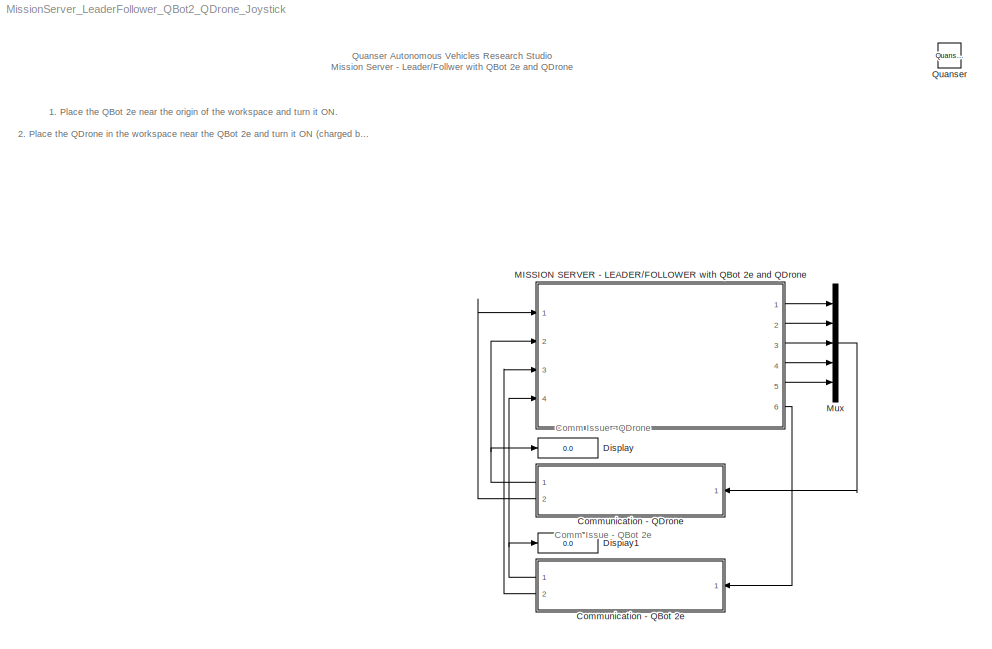
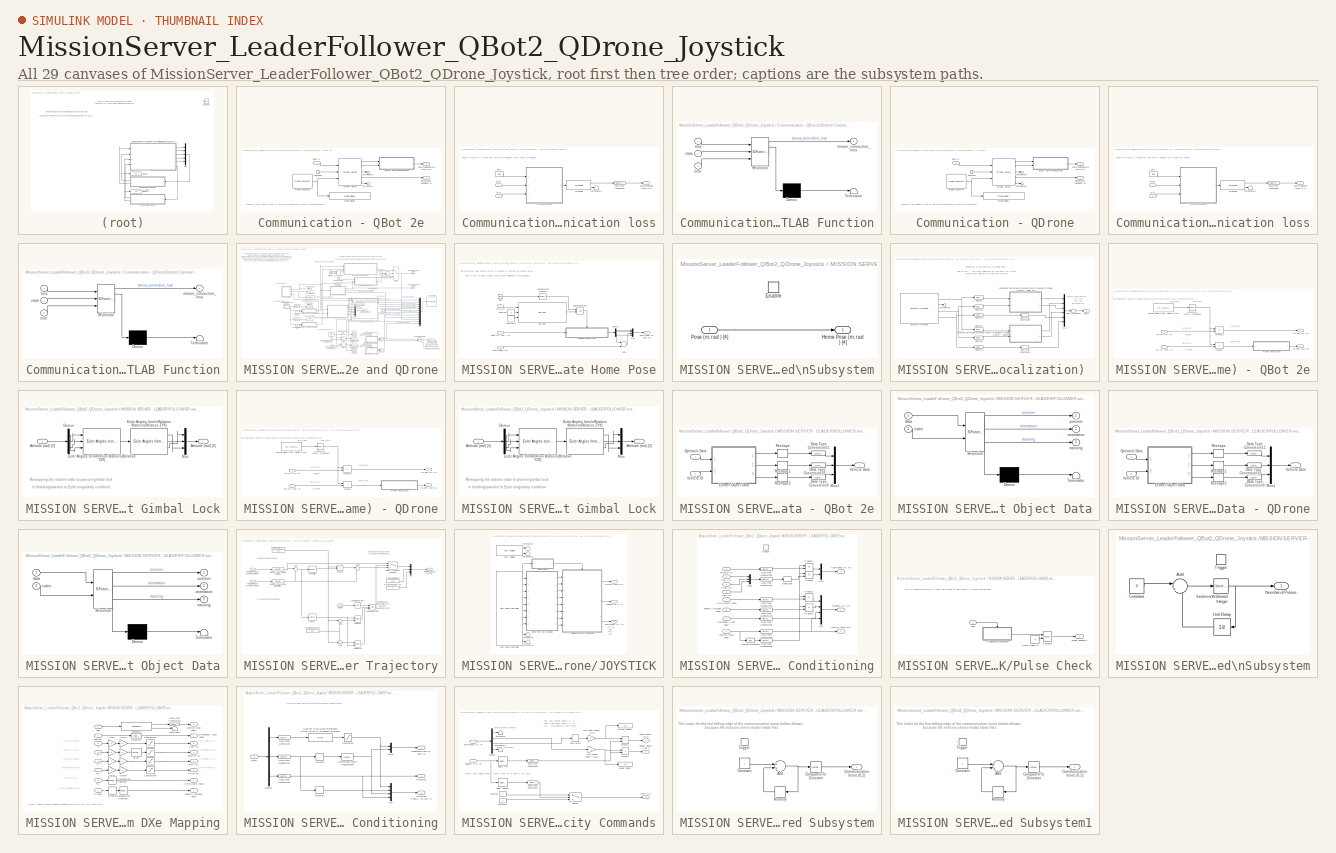
[diagram: thumbnail index - all 29 canvases of the model, root first then tree order]
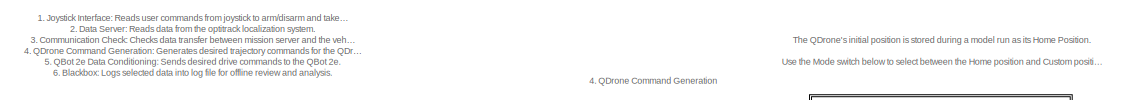
[diagram: MISSION SERVER - LEADER/FOLLOWER with QBot 2e and QDrone - part 1/2, top center region]
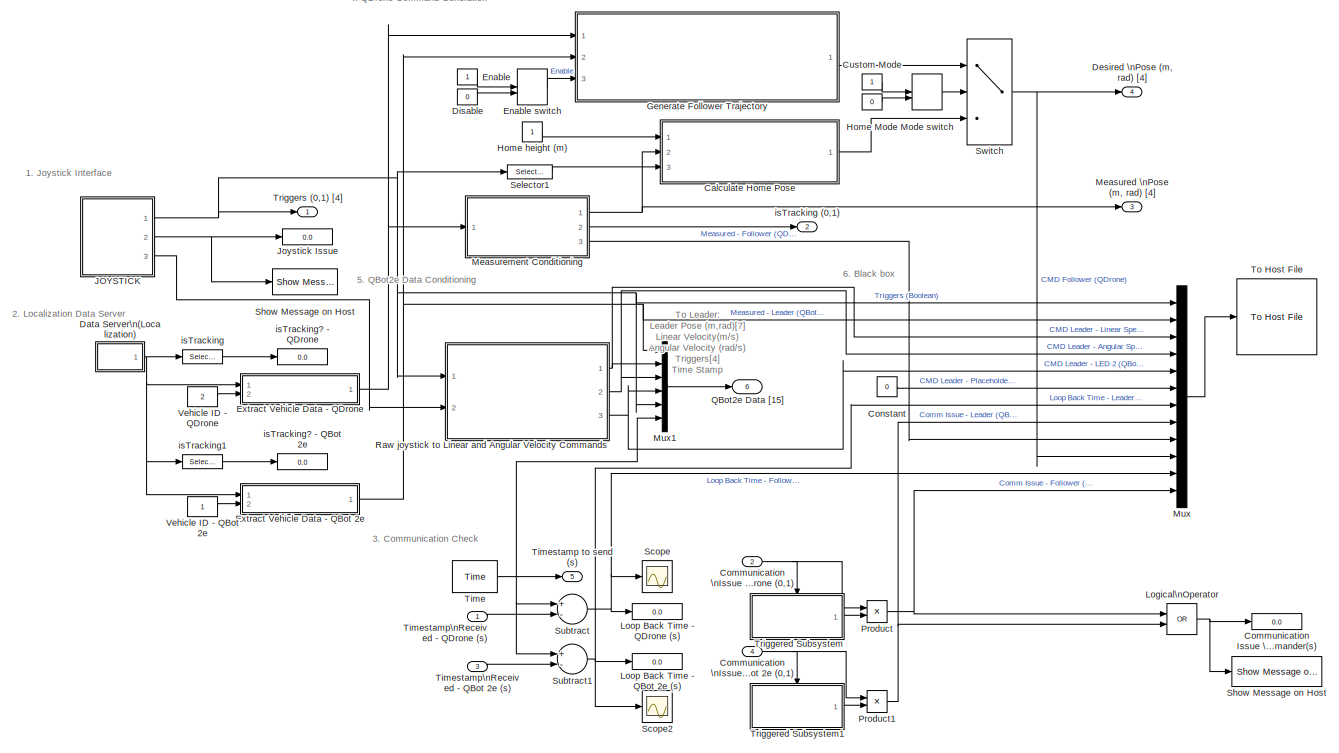
[diagram: MISSION SERVER - LEADER/FOLLOWER with QBot 2e and QDrone - part 2/2, most of the canvas]
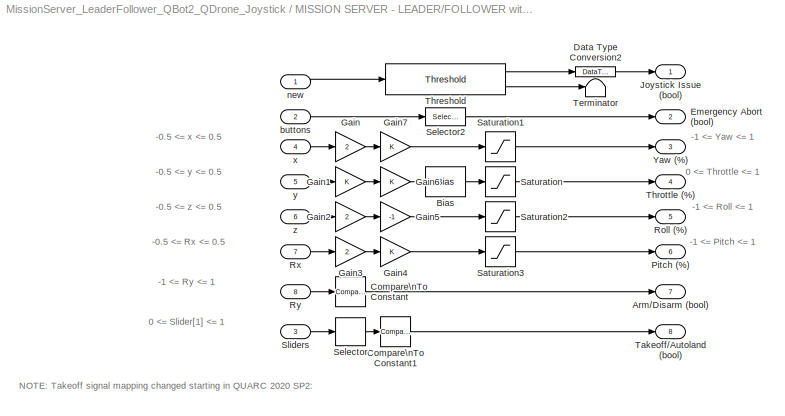
MODEL MissionServer_LeaderFollower_QBot2_QDrone_Joystick
KIND model
BLOCK [SubSystem] Communication - QBot 2e
  Ports = [1, 2]
  RequestExecContextInheritance = off
  SID = 4762
BLOCK [Outport] Communication - QBot 2e/Communication\nIssue (0,1)
  IconDisplay = Port number
  SID = 4780
BLOCK [Constant] Communication - QBot 2e/Constant
  SID = 4764
BLOCK [Inport] Communication - QBot 2e/Data In
  IconDisplay = Port number
  SID = 4763
BLOCK [SubSystem] Communication - QBot 2e/Detect Communication loss
  Ports = [2, 1]
  RequestExecContextInheritance = off
  SID = 4765
BLOCK [Outport] Communication - QBot 2e/Detect Communication loss/Communication Issue (0,1)
  IconDisplay = Port number
  SID = 4773
BLOCK [DataTypeConversion] Communication - QBot 2e/Detect Communication loss/Data Type Conversion
  RndMeth = Floor
  SID = 4768
  SaturateOnIntegerOverflow = off
BLOCK [Inport] Communication - QBot 2e/Detect Communication loss/Error
  IconDisplay = Port number
  Port = 2
  SID = 4767
BLOCK [SubSystem] Communication - QBot 2e/Detect Communication loss/MATLAB Function
  ErrorFcn = Stateflow.Translate.translate
  PermitHierarchicalResolution = ExplicitOnly
  Ports = [3, 1]
  RequestExecContextInheritance = off
  SFBlockType = MATLAB Function
  SID = 4769
  TreatAsAtomicUnit = on
BLOCK [Demux] Communication - QBot 2e/Detect Communication loss/MATLAB Function/ Demux 
  DisplayOption = bar
  Outputs = 1
  Ports = [1, 1]
  SID = 4769::98
BLOCK [S-Function] Communication - QBot 2e/Detect Communication loss/MATLAB Function/ SFunction 
  EnableBusSupport = off
  FunctionName = sf_sfun
  PortCounts = [3 2]
  Ports = [3, 2]
  SFcnIsStateOwnerBlock = off
  SFunctionDeploymentMode = off
  SID = 4769::97
  Tag = Stateflow S-Function MissionServer_LeaderFollower_QBot2_QDrone_Joystick 4
BLOCK [Terminator] Communication - QBot 2e/Detect Communication loss/MATLAB Function/ Terminator 
  SID = 4769::99
BLOCK [Inport] Communication - QBot 2e/Detect Communication loss/MATLAB Function/error
  IconDisplay = Port number
  Port = 3
  SID = 4769::23
BLOCK [Inport] Communication - QBot 2e/Detect Communication loss/MATLAB Function/state
  IconDisplay = Port number
  Port = 2
  SID = 4769::22
BLOCK [Outport] Communication - QBot 2e/Detect Communication loss/MATLAB Function/stream_connection_loss
  IconDisplay = Port number
  SID = 4769::5
BLOCK [Inport] Communication - QBot 2e/Detect Communication loss/MATLAB Function/time
  IconDisplay = Port number
  SID = 4769::1
BLOCK [Inport] Communication - QBot 2e/Detect Communication loss/State
  IconDisplay = Port number
  SID = 4766
BLOCK [Terminator] Communication - QBot 2e/Detect Communication loss/Terminator2
  SID = 4770
BLOCK [Reference] Communication - QBot 2e/Detect Communication loss/Threshold  REF=quarc_library/Discontinuities/Threshold
  Ports = [1, 2]
  SID = 4771
  SourceBlock = quarc_library/Discontinuities/Threshold
  SourceProductName = QUARC Targets
  SourceType = Threshold
  duration = 0.1
  operator = >=
  param_src = Specify via dialog
  threshold = 0.5
BLOCK [Reference] Communication - QBot 2e/Detect Communication loss/Time  REF=quarc_library/Sources/Time/Time
  MultiThreadCoSim = auto
  Ports = [0, 1]
  SID = 4772
  SourceBlock = quarc_library/Sources/Time/Time
  SourceProductName = QUARC Targets
  SourceType = Time
  sample_time = qc_get_step_size
  time_source = Wall clock
BLOCK [Reference] Communication - QBot 2e/Model Argument  REF=quarc_library/Sources/Signals/Model Argument
  AttributesFormatString = (-%<argument_name>)
  MultiThreadCoSim = auto
  Ports = [0, 1]
  SID = 4775
  SourceBlock = quarc_library/Sources/Signals/Model Argument
  SourceProductName = QUARC Targets
  SourceType = Model Argument
  argument_name = URI_Leader
  data_type = char
  data_type_mode = Specify via dialog
  default_value = 0
  has_value = on
  max_length = 80
  variable_size = off
BLOCK [Reference] Communication - QBot 2e/Stream Server  REF=quarc_library/Communications/Basic/Stream Server
  MultiThreadCoSim = auto
  Ports = [3, 5]
  SID = 4776
  SourceBlock = quarc_library/Communications/Basic/Stream Server
  SourceProductName = QUARC Targets
  SourceType = Stream Server
  active = off
  apply_uri_to_all_configs = off
  byte_order = little endian (Intel - LSB first)
  data_type = Inherited via back propagation
  default_value = [0]
  implementation = Use blocking I/O in a separate thread
  max_dimensions = -1
  optimization = Minimum latency
  receive_buffer_size = 1460
  receive_dimensions = off
  receive_fifo_size = 1000
  receive_options = Receive most recent data
  receive_priority = 0
  sample_time = qc_get_step_size
  send_buffer_size = 1460
  send_dimensions = off
  send_fifo_size = 1000
  send_options = Send most recent data
  send_priority = 0
  type_expr = BusObject
  uri = tcpip://localhost:18877
  uri_source = External input port
BLOCK [Reference] Communication - QBot 2e/String Display   REF=quarc_library/Strings/String Display
  MultiThreadCoSim = auto
  Ports = [1]
  SID = 4777
  SourceBlock = quarc_library/Strings/String Display
  SourceProductName = QUARC Targets
  SourceType = String Display
  alignment = center
  display_mode = Single line
  sample_time = -1
  use_new = off
BLOCK [Terminator] Communication - QBot 2e/Terminator1
  SID = 4778
BLOCK [Terminator] Communication - QBot 2e/Terminator2
  SID = 4779
BLOCK [Outport] Communication - QBot 2e/Timestamp Received (s)
  IconDisplay = Port number
  Port = 2
  SID = 4781
BLOCK [SubSystem] Communication - QDrone
  Ports = [1, 2]
  RequestExecContextInheritance = off
  SID = 3974
BLOCK [Outport] Communication - QDrone/Communication\nIssue (0,1)
  IconDisplay = Port number
  SID = 4276
BLOCK [Constant] Communication - QDrone/Constant
  SID = 3844
BLOCK [Inport] Communication - QDrone/Data In
  IconDisplay = Port number
  SID = 3975
BLOCK [SubSystem] Communication - QDrone/Detect Communication loss
  Ports = [2, 1]
  RequestExecContextInheritance = off
  SID = 3979
BLOCK [Outport] Communication - QDrone/Detect Communication loss/Communication Issue (0,1)
  IconDisplay = Port number
  SID = 3987
BLOCK [DataTypeConversion] Communication - QDrone/Detect Communication loss/Data Type Conversion
  RndMeth = Floor
  SID = 3982
  SaturateOnIntegerOverflow = off
BLOCK [Inport] Communication - QDrone/Detect Communication loss/Error
  IconDisplay = Port number
  Port = 2
  SID = 3981
BLOCK [SubSystem] Communication - QDrone/Detect Communication loss/MATLAB Function
  ErrorFcn = Stateflow.Translate.translate
  PermitHierarchicalResolution = ExplicitOnly
  Ports = [3, 1]
  RequestExecContextInheritance = off
  SFBlockType = MATLAB Function
  SID = 3983
  TreatAsAtomicUnit = on
BLOCK [Demux] Communication - QDrone/Detect Communication loss/MATLAB Function/ Demux 
  DisplayOption = bar
  Outputs = 1
  Ports = [1, 1]
  SID = 3983::98
BLOCK [S-Function] Communication - QDrone/Detect Communication loss/MATLAB Function/ SFunction 
  EnableBusSupport = off
  FunctionName = sf_sfun
  PortCounts = [3 2]
  Ports = [3, 2]
  SFcnIsStateOwnerBlock = off
  SFunctionDeploymentMode = off
  SID = 3983::97
  Tag = Stateflow S-Function MissionServer_LeaderFollower_QBot2_QDrone_Joystick 3
BLOCK [Terminator] Communication - QDrone/Detect Communication loss/MATLAB Function/ Terminator 
  SID = 3983::99
BLOCK [Inport] Communication - QDrone/Detect Communication loss/MATLAB Function/error
  IconDisplay = Port number
  Port = 3
  SID = 3983::23
BLOCK [Inport] Communication - QDrone/Detect Communication loss/MATLAB Function/state
  IconDisplay = Port number
  Port = 2
  SID = 3983::22
BLOCK [Outport] Communication - QDrone/Detect Communication loss/MATLAB Function/stream_connection_loss
  IconDisplay = Port number
  SID = 3983::5
BLOCK [Inport] Communication - QDrone/Detect Communication loss/MATLAB Function/time
  IconDisplay = Port number
  SID = 3983::1
BLOCK [Inport] Communication - QDrone/Detect Communication loss/State
  IconDisplay = Port number
  SID = 3980
BLOCK [Terminator] Communication - QDrone/Detect Communication loss/Terminator2
  SID = 3984
BLOCK [Reference] Communication - QDrone/Detect Communication loss/Threshold  REF=quarc_library/Discontinuities/Threshold
  Ports = [1, 2]
  SID = 3985
  SourceBlock = quarc_library/Discontinuities/Threshold
  SourceProductName = QUARC Targets
  SourceType = Threshold
  duration = 0.1
  operator = >=
  param_src = Specify via dialog
  threshold = 0.5
BLOCK [Reference] Communication - QDrone/Detect Communication loss/Time  REF=quarc_library/Sources/Time/Time
  MultiThreadCoSim = auto
  Ports = [0, 1]
  SID = 3986
  SourceBlock = quarc_library/Sources/Time/Time
  SourceProductName = QUARC Targets
  SourceType = Time
  sample_time = qc_get_step_size
  time_source = Wall clock
BLOCK [Reference] Communication - QDrone/Model Argument  REF=quarc_library/Sources/Signals/Model Argument
  AttributesFormatString = (-%<argument_name>)
  MultiThreadCoSim = auto
  Ports = [0, 1]
  SID = 3845
  SourceBlock = quarc_library/Sources/Signals/Model Argument
  SourceProductName = QUARC Targets
  SourceType = Model Argument
  argument_name = URI_Follower
  data_type = char
  data_type_mode = Specify via dialog
  default_value = 0
  has_value = on
  max_length = 80
  variable_size = off
BLOCK [Reference] Communication - QDrone/Stream Server  REF=quarc_library/Communications/Basic/Stream Server
  MultiThreadCoSim = auto
  Ports = [3, 5]
  SID = 3861
  SourceBlock = quarc_library/Communications/Basic/Stream Server
  SourceProductName = QUARC Targets
  SourceType = Stream Server
  active = off
  apply_uri_to_all_configs = off
  byte_order = little endian (Intel - LSB first)
  data_type = Inherited via back propagation
  default_value = zeros(1,1)
  implementation = Use blocking I/O in a separate thread
  max_dimensions = -1
  optimization = Minimum latency
  receive_buffer_size = 1460
  receive_dimensions = off
  receive_fifo_size = 1000
  receive_options = Receive most recent data
  receive_priority = 0
  sample_time = qc_get_step_size
  send_buffer_size = 1460
  send_dimensions = off
  send_fifo_size = 1000
  send_options = Send most recent data
  send_priority = 0
  type_expr = BusObject
  uri = tcpip://localhost:18877
  uri_source = External input port
BLOCK [Reference] Communication - QDrone/String Display   REF=quarc_library/Strings/String Display
  MultiThreadCoSim = auto
  Ports = [1]
  SID = 3862
  SourceBlock = quarc_library/Strings/String Display
  SourceProductName = QUARC Targets
  SourceType = String Display
  alignment = center
  display_mode = Single line
  sample_time = -1
  use_new = off
BLOCK [Terminator] Communication - QDrone/Terminator1
  SID = 3863
BLOCK [Terminator] Communication - QDrone/Terminator2
  SID = 3864
BLOCK [Outport] Communication - QDrone/Timestamp Received (s)
  IconDisplay = Port number
  Port = 2
  SID = 3978
BLOCK [Display] Display
  Decimation = 1
  Ports = [1]
  SID = 4490
BLOCK [Display] Display1
  Decimation = 1
  Ports = [1]
  SID = 4815
BLOCK [SubSystem] MISSION SERVER - LEADER//FOLLOWER with QBot 2e and QDrone
  Ports = [4, 6]
  RequestExecContextInheritance = off
  SID = 4279
BLOCK [SubSystem] MISSION SERVER - LEADER//FOLLOWER with QBot 2e and QDrone/Calculate Home Pose
  Ports = [3, 1]
  RequestExecContextInheritance = off
  SID = 5245
BLOCK [Inport] MISSION SERVER - LEADER//FOLLOWER with QBot 2e and QDrone/Calculate Home Pose/Arm(0,1)
  IconDisplay = Port number
  Port = 3
  SID = 5248
BLOCK [Clock] MISSION SERVER - LEADER//FOLLOWER with QBot 2e and QDrone/Calculate Home Pose/Clock
  SID = 5249
BLOCK [Reference] MISSION SERVER - LEADER//FOLLOWER with QBot 2e and QDrone/Calculate Home Pose/Compare\nTo Constant  REF=simulink/Logic and Bit\nOperations/Compare\nTo Constant
  OutDataTypeStr = boolean
  Ports = [1, 1]
  SID = 5250
  SourceBlock = simulink/Logic and Bit\nOperations/Compare\nTo Constant
  SourceProductBaseCode = SL
  SourceType = Compare To Constant
  ZeroCross = on
  const = 5
  relop = >
BLOCK [Constant] MISSION SERVER - LEADER//FOLLOWER with QBot 2e and QDrone/Calculate Home Pose/Constant
  SID = 5251
  Value = 0
BLOCK [Constant] MISSION SERVER - LEADER//FOLLOWER with QBot 2e and QDrone/Calculate Home Pose/Constant1
  SID = 5252
BLOCK [Demux] MISSION SERVER - LEADER//FOLLOWER with QBot 2e and QDrone/Calculate Home Pose/Demux
  DisplayOption = bar
  Ports = [1, 4]
  SID = 5253
BLOCK [SubSystem] MISSION SERVER - LEADER//FOLLOWER with QBot 2e and QDrone/Calculate Home Pose/Enabled\nSubsystem
  Ports = [1, 1, 1]
  RequestExecContextInheritance = off
  SID = 5254
  TreatAsAtomicUnit = on
BLOCK [EnablePort] MISSION SERVER - LEADER//FOLLOWER with QBot 2e and QDrone/Calculate Home Pose/Enabled\nSubsystem/Enable
  Ports = []
  SID = 5256
BLOCK [Outport] MISSION SERVER - LEADER//FOLLOWER with QBot 2e and QDrone/Calculate Home Pose/Enabled\nSubsystem/Home Pose (m, rad ) [4]
  IconDisplay = Port number
  SID = 5257
BLOCK [Inport] MISSION SERVER - LEADER//FOLLOWER with QBot 2e and QDrone/Calculate Home Pose/Enabled\nSubsystem/Pose (m, rad ) [4] 
  IconDisplay = Port number
  SID = 5255
BLOCK [Outport] MISSION SERVER - LEADER//FOLLOWER with QBot 2e and QDrone/Calculate Home Pose/Home Pose (m, rad) [4]
  IconDisplay = Port number
  SID = 5262
BLOCK [Inport] MISSION SERVER - LEADER//FOLLOWER with QBot 2e and QDrone/Calculate Home Pose/Home height (m)
  IconDisplay = Port number
  SID = 5246
BLOCK [Logic] MISSION SERVER - LEADER//FOLLOWER with QBot 2e and QDrone/Calculate Home Pose/Logical\nOperator
  AllPortsSameDT = off
  OutDataTypeStr = boolean
  Ports = [2, 1]
  SID = 5258
BLOCK [Mux] MISSION SERVER - LEADER//FOLLOWER with QBot 2e and QDrone/Calculate Home Pose/Mux
  DisplayOption = bar
  Ports = [4, 1]
  SID = 5259
BLOCK [Reference] MISSION SERVER - LEADER//FOLLOWER with QBot 2e and QDrone/Calculate Home Pose/One Shot  REF=quarc_library/Discontinuities/One Shot
  Ports = [3, 1]
  SID = 5260
  SourceBlock = quarc_library/Discontinuities/One Shot
  SourceProductName = QUARC Targets
  SourceType = One Shot
  pulse_width = 1/qc_get_step_size
  redun_pulse = Ignore extraneous pulse
  trigger_type = Rising edge
  width_source = Specify via dialog
BLOCK [Inport] MISSION SERVER - LEADER//FOLLOWER with QBot 2e and QDrone/Calculate Home Pose/Pose (m, rad ) [4]
  IconDisplay = Port number
  Port = 2
  SID = 5247
BLOCK [Sum] MISSION SERVER - LEADER//FOLLOWER with QBot 2e and QDrone/Calculate Home Pose/Sum
  InputSameDT = off
  OutDataTypeStr = Inherit: Inherit via internal rule
  Ports = [2, 1]
  SID = 5261
  SaturateOnIntegerOverflow = off
BLOCK [Display] MISSION SERVER - LEADER//FOLLOWER with QBot 2e and QDrone/Communication Issue \nwith Vehicle Commander(s)
  Decimation = 1
  Ports = [1]
  SID = 4298
BLOCK [Inport] MISSION SERVER - LEADER//FOLLOWER with QBot 2e and QDrone/Communication \nIssue - QBot 2e (0,1)
  IconDisplay = Port number
  Port = 4
  SID = 4830
BLOCK [Inport] MISSION SERVER - LEADER//FOLLOWER with QBot 2e and QDrone/Communication \nIssue - QDrone (0,1)
  IconDisplay = Port number
  Port = 2
  SID = 4281
BLOCK [Constant] MISSION SERVER - LEADER//FOLLOWER with QBot 2e and QDrone/Constant
  SID = 5299
  Value = 0
BLOCK [Constant] MISSION SERVER - LEADER//FOLLOWER with QBot 2e and QDrone/Custom Mode
  SID = 4496
BLOCK [SubSystem] MISSION SERVER - LEADER//FOLLOWER with QBot 2e and QDrone/Data Server\n(Localization) 
  Ports = [0, 1]
  RequestExecContextInheritance = off
  SID = 4299
BLOCK [SubSystem] MISSION SERVER - LEADER//FOLLOWER with QBot 2e and QDrone/Data Server\n(Localization) /Convention Correction\n(Motive Frame to Research Studio Frame) - QBot 2e
  Ports = [2, 2]
  RequestExecContextInheritance = off
  SID = 4853
BLOCK [Math] MISSION SERVER - LEADER//FOLLOWER with QBot 2e and QDrone/Data Server\n(Localization) /Convention Correction\n(Motive Frame to Research Studio Frame) - QBot 2e/Inverse of \nOrthonormal \nMatrix\nis its \nTranspose
  Operator = transpose
  Ports = [1, 1]
  SID = 4856
BLOCK [SubSystem] MISSION SERVER - LEADER//FOLLOWER with QBot 2e and QDrone/Data Server\n(Localization) /Convention Correction\n(Motive Frame to Research Studio Frame) - QBot 2e/Prevent Gimbal Lock
  Ports = [1, 1]
  RequestExecContextInheritance = off
  SID = 4857
BLOCK [Inport] MISSION SERVER - LEADER//FOLLOWER with QBot 2e and QDrone/Data Server\n(Localization) /Convention Correction\n(Motive Frame to Research Studio Frame) - QBot 2e/Prevent Gimbal Lock/Attitude (rad) [3]
  IconDisplay = Port number
  SID = 4858
BLOCK [Outport] MISSION SERVER - LEADER//FOLLOWER with QBot 2e and QDrone/Data Server\n(Localization) /Convention Correction\n(Motive Frame to Research Studio Frame) - QBot 2e/Prevent Gimbal Lock/Attitude (rad) [3] 
  IconDisplay = Port number
  SID = 4863
BLOCK [Demux] MISSION SERVER - LEADER//FOLLOWER with QBot 2e and QDrone/Data Server\n(Localization) /Convention Correction\n(Motive Frame to Research Studio Frame) - QBot 2e/Prevent Gimbal Lock/Demux
  DisplayOption = bar
  Outputs = 3
  Ports = [1, 3]
  SID = 4859
BLOCK [Reference] MISSION SERVER - LEADER//FOLLOWER with QBot 2e and QDrone/Data Server\n(Localization) /Convention Correction\n(Motive Frame to Research Studio Frame) - QBot 2e/Prevent Gimbal Lock/Euler Angles from\nRotation Matrix\n(Relative ZYX)  REF=quarc_library/Math Operations/Matrices/Euler Angles from\nRotation Matrix
  MultiThreadCoSim = auto
  Ports = [1, 3]
  SID = 4860
  SourceBlock = quarc_library/Math Operations/Matrices/Euler Angles from\nRotation Matrix
  SourceProductName = QUARC Targets
  SourceType = Euler Angles from Rotation Matrix
  menu_order = Relative Z-Y-X
BLOCK [Reference] MISSION SERVER - LEADER//FOLLOWER with QBot 2e and QDrone/Data Server\n(Localization) /Convention Correction\n(Motive Frame to Research Studio Frame) - QBot 2e/Prevent Gimbal Lock/Euler Angles to\nRotation Matrix\n(Relative YZX)  REF=quarc_library/Math Operations/Matrices/Euler Angles to\nRotation Matrix
  MultiThreadCoSim = auto
  Ports = [3, 1]
  SID = 4861
  SourceBlock = quarc_library/Math Operations/Matrices/Euler Angles to\nRotation Matrix
  SourceProductName = QUARC Targets
  SourceType = Euler Angles to Rotation Matrix
  menu_order = Relative Y-Z-X
BLOCK [Mux] MISSION SERVER - LEADER//FOLLOWER with QBot 2e and QDrone/Data Server\n(Localization) /Convention Correction\n(Motive Frame to Research Studio Frame) - QBot 2e/Prevent Gimbal Lock/Mux
  DisplayOption = bar
  Inputs = 3
  Ports = [3, 1]
  SID = 4862
BLOCK [Product] MISSION SERVER - LEADER//FOLLOWER with QBot 2e and QDrone/Data Server\n(Localization) /Convention Correction\n(Motive Frame to Research Studio Frame) - QBot 2e/Product
  InputSameDT = off
  Multiplication = Matrix(*)
  OutDataTypeStr = Inherit: Inherit via internal rule
  Ports = [2, 1]
  RndMeth = Floor
  SID = 4865
  SaturateOnIntegerOverflow = off
BLOCK [Product] MISSION SERVER - LEADER//FOLLOWER with QBot 2e and QDrone/Data Server\n(Localization) /Convention Correction\n(Motive Frame to Research Studio Frame) - QBot 2e/Product1
  InputSameDT = off
  Multiplication = Matrix(*)
  OutDataTypeStr = Inherit: Inherit via internal rule
  Ports = [2, 1]
  RndMeth = Floor
  SID = 4866
  SaturateOnIntegerOverflow = off
BLOCK [Constant] MISSION SERVER - LEADER//FOLLOWER with QBot 2e and QDrone/Data Server\n(Localization) /Convention Correction\n(Motive Frame to Research Studio Frame) - QBot 2e/Rotate Basis from \nRSF to MF
  SID = 4867
  Value = [0 -1 0;0 0 1;-1 0 0]
BLOCK [Inport] MISSION SERVER - LEADER//FOLLOWER with QBot 2e and QDrone/Data Server\n(Localization) /Convention Correction\n(Motive Frame to Research Studio Frame) - QBot 2e/rot_MF (rad) [3]
  IconDisplay = Port number
  Port = 2
  SID = 4855
BLOCK [Outport] MISSION SERVER - LEADER//FOLLOWER with QBot 2e and QDrone/Data Server\n(Localization) /Convention Correction\n(Motive Frame to Research Studio Frame) - QBot 2e/rot_RSF (rad) [3]
  IconDisplay = Port number
  Port = 2
  SID = 4869
BLOCK [Inport] MISSION SERVER - LEADER//FOLLOWER with QBot 2e and QDrone/Data Server\n(Localization) /Convention Correction\n(Motive Frame to Research Studio Frame) - QBot 2e/xyz_MF (m) [3]
  IconDisplay = Port number
  SID = 4854
BLOCK [Outport] MISSION SERVER - LEADER//FOLLOWER with QBot 2e and QDrone/Data Server\n(Localization) /Convention Correction\n(Motive Frame to Research Studio Frame) - QBot 2e/xyz_RSF (m) [3]
  IconDisplay = Port number
  SID = 4868
BLOCK [SubSystem] MISSION SERVER - LEADER//FOLLOWER with QBot 2e and QDrone/Data Server\n(Localization) /Convention Correction\n(Motive Frame to Research Studio Frame) - QDrone
  Ports = [2, 2]
  RequestExecContextInheritance = off
  SID = 4884
BLOCK [Math] MISSION SERVER - LEADER//FOLLOWER with QBot 2e and QDrone/Data Server\n(Localization) /Convention Correction\n(Motive Frame to Research Studio Frame) - QDrone/Inverse of \nOrthonormal \nMatrix\nis its \nTranspose
  Operator = transpose
  Ports = [1, 1]
  SID = 4887
BLOCK [SubSystem] MISSION SERVER - LEADER//FOLLOWER with QBot 2e and QDrone/Data Server\n(Localization) /Convention Correction\n(Motive Frame to Research Studio Frame) - QDrone/Prevent Gimbal Lock
  Ports = [1, 1]
  RequestExecContextInheritance = off
  SID = 4888
BLOCK [Inport] MISSION SERVER - LEADER//FOLLOWER with QBot 2e and QDrone/Data Server\n(Localization) /Convention Correction\n(Motive Frame to Research Studio Frame) - QDrone/Prevent Gimbal Lock/Attitude (rad) [3]
  IconDisplay = Port number
  SID = 4889
BLOCK [Outport] MISSION SERVER - LEADER//FOLLOWER with QBot 2e and QDrone/Data Server\n(Localization) /Convention Correction\n(Motive Frame to Research Studio Frame) - QDrone/Prevent Gimbal Lock/Attitude (rad) [3] 
  IconDisplay = Port number
  SID = 4894
BLOCK [Demux] MISSION SERVER - LEADER//FOLLOWER with QBot 2e and QDrone/Data Server\n(Localization) /Convention Correction\n(Motive Frame to Research Studio Frame) - QDrone/Prevent Gimbal Lock/Demux
  DisplayOption = bar
  Outputs = 3
  Ports = [1, 3]
  SID = 4890
BLOCK [Reference] MISSION SERVER - LEADER//FOLLOWER with QBot 2e and QDrone/Data Server\n(Localization) /Convention Correction\n(Motive Frame to Research Studio Frame) - QDrone/Prevent Gimbal Lock/Euler Angles from\nRotation Matrix\n(Relative ZYX)  REF=quarc_library/Math Operations/Matrices/Euler Angles from\nRotation Matrix
  MultiThreadCoSim = auto
  Ports = [1, 3]
  SID = 4891
  SourceBlock = quarc_library/Math Operations/Matrices/Euler Angles from\nRotation Matrix
  SourceProductName = QUARC Targets
  SourceType = Euler Angles from Rotation Matrix
  menu_order = Relative Z-Y-X
BLOCK [Reference] MISSION SERVER - LEADER//FOLLOWER with QBot 2e and QDrone/Data Server\n(Localization) /Convention Correction\n(Motive Frame to Research Studio Frame) - QDrone/Prevent Gimbal Lock/Euler Angles to\nRotation Matrix\n(Relative YZX)  REF=quarc_library/Math Operations/Matrices/Euler Angles to\nRotation Matrix
  MultiThreadCoSim = auto
  Ports = [3, 1]
  SID = 4892
  SourceBlock = quarc_library/Math Operations/Matrices/Euler Angles to\nRotation Matrix
  SourceProductName = QUARC Targets
  SourceType = Euler Angles to Rotation Matrix
  menu_order = Relative Y-Z-X
BLOCK [Mux] MISSION SERVER - LEADER//FOLLOWER with QBot 2e and QDrone/Data Server\n(Localization) /Convention Correction\n(Motive Frame to Research Studio Frame) - QDrone/Prevent Gimbal Lock/Mux
  DisplayOption = bar
  Inputs = 3
  Ports = [3, 1]
  SID = 4893
BLOCK [Product] MISSION SERVER - LEADER//FOLLOWER with QBot 2e and QDrone/Data Server\n(Localization) /Convention Correction\n(Motive Frame to Research Studio Frame) - QDrone/Product
  InputSameDT = off
  Multiplication = Matrix(*)
  OutDataTypeStr = Inherit: Inherit via internal rule
  Ports = [2, 1]
  RndMeth = Floor
  SID = 4896
  SaturateOnIntegerOverflow = off
BLOCK [Product] MISSION SERVER - LEADER//FOLLOWER with QBot 2e and QDrone/Data Server\n(Localization) /Convention Correction\n(Motive Frame to Research Studio Frame) - QDrone/Product1
  InputSameDT = off
  Multiplication = Matrix(*)
  OutDataTypeStr = Inherit: Inherit via internal rule
  Ports = [2, 1]
  RndMeth = Floor
  SID = 4897
  SaturateOnIntegerOverflow = off
BLOCK [Constant] MISSION SERVER - LEADER//FOLLOWER with QBot 2e and QDrone/Data Server\n(Localization) /Convention Correction\n(Motive Frame to Research Studio Frame) - QDrone/Rotate Basis from \nRSF to MF
  SID = 4898
  Value = [0 -1 0;0 0 1;-1 0 0]
BLOCK [Inport] MISSION SERVER - LEADER//FOLLOWER with QBot 2e and QDrone/Data Server\n(Localization) /Convention Correction\n(Motive Frame to Research Studio Frame) - QDrone/rot_MF (rad) [3]
  IconDisplay = Port number
  Port = 2
  SID = 4886
BLOCK [Outport] MISSION SERVER - LEADER//FOLLOWER with QBot 2e and QDrone/Data Server\n(Localization) /Convention Correction\n(Motive Frame to Research Studio Frame) - QDrone/rot_RSF (rad) [3]
  IconDisplay = Port number
  Port = 2
  SID = 4900
BLOCK [Inport] MISSION SERVER - LEADER//FOLLOWER with QBot 2e and QDrone/Data Server\n(Localization) /Convention Correction\n(Motive Frame to Research Studio Frame) - QDrone/xyz_MF (m) [3]
  IconDisplay = Port number
  SID = 4885
BLOCK [Outport] MISSION SERVER - LEADER//FOLLOWER with QBot 2e and QDrone/Data Server\n(Localization) /Convention Correction\n(Motive Frame to Research Studio Frame) - QDrone/xyz_RSF (m) [3]
  IconDisplay = Port number
  SID = 4899
BLOCK [Outport] MISSION SERVER - LEADER//FOLLOWER with QBot 2e and QDrone/Data Server\n(Localization) /Data
  IconDisplay = Port number
  SID = 4330
BLOCK [DataTypeConversion] MISSION SERVER - LEADER//FOLLOWER with QBot 2e and QDrone/Data Server\n(Localization) /Data Type Conversion2
  RndMeth = Floor
  SID = 4879
  SaturateOnIntegerOverflow = off
BLOCK [DataTypeConversion] MISSION SERVER - LEADER//FOLLOWER with QBot 2e and QDrone/Data Server\n(Localization) /Data Type Conversion3
  RndMeth = Floor
  SID = 4910
  SaturateOnIntegerOverflow = off
BLOCK [Mux] MISSION SERVER - LEADER//FOLLOWER with QBot 2e and QDrone/Data Server\n(Localization) /Mux
  DisplayOption = bar
  Inputs = 6
  Ports = [6, 1]
  SID = 5108
BLOCK [Reference] MISSION SERVER - LEADER//FOLLOWER with QBot 2e and QDrone/Data Server\n(Localization) /OptiTrack Trackables  REF=quarc_library/Devices/Third-Party/NaturalPoint/OptiTrack/OptiTrack Trackables
  MultiThreadCoSim = auto
  Ports = [0, 4]
  SID = 4852
  SourceBlock = quarc_library/Devices/Third-Party/NaturalPoint/OptiTrack/OptiTrack Trackables
  SourceProductName = QUARC Targets
  SourceType = OptiTrack Rigid Body Position
  active = off
  calibration_file = <userpath><path>
  rigid_body_file = <userpath><path>
  rigid_body_ids = [1,2]
  sample_time = qc_get_step_size*10
BLOCK [RateTransition] MISSION SERVER - LEADER//FOLLOWER with QBot 2e and QDrone/Data Server\n(Localization) /Rate Transition3
  SID = 4912
BLOCK [Selector] MISSION SERVER - LEADER//FOLLOWER with QBot 2e and QDrone/Data Server\n(Localization) /Selector
  IndexOptions = Index vector (dialog)
  Indices = [1:3]
  InputPortWidth = 6
  OutputSizes = 1
  Ports = [1, 1]
  SID = 4883
BLOCK [Selector] MISSION SERVER - LEADER//FOLLOWER with QBot 2e and QDrone/Data Server\n(Localization) /Selector1
  IndexOptions = Index vector (dialog)
  Indices = [1:3]
  InputPortWidth = 6
  OutputSizes = 1
  Ports = [1, 1]
  SID = 4913
BLOCK [Selector] MISSION SERVER - LEADER//FOLLOWER with QBot 2e and QDrone/Data Server\n(Localization) /Selector2
  IndexOptions = Index vector (dialog)
  Indices = [1]
  InputPortWidth = 2
  OutputSizes = 1
  Ports = [1, 1]
  SID = 4914
BLOCK [Selector] MISSION SERVER - LEADER//FOLLOWER with QBot 2e and QDrone/Data Server\n(Localization) /Selector3
  IndexOptions = Index vector (dialog)
  Indices = [2]
  InputPortWidth = 2
  OutputSizes = 1
  Ports = [1, 1]
  SID = 4915
BLOCK [Selector] MISSION SERVER - LEADER//FOLLOWER with QBot 2e and QDrone/Data Server\n(Localization) /Selector4
  IndexOptions = Index vector (dialog)
  Indices = [4:6]
  InputPortWidth = 6
  OutputSizes = 1
  Ports = [1, 1]
  SID = 4916
BLOCK [Selector] MISSION SERVER - LEADER//FOLLOWER with QBot 2e and QDrone/Data Server\n(Localization) /Selector5
  IndexOptions = Index vector (dialog)
  Indices = [4:6]
  InputPortWidth = 6
  OutputSizes = 1
  Ports = [1, 1]
  SID = 4917
BLOCK [Terminator] MISSION SERVER - LEADER//FOLLOWER with QBot 2e and QDrone/Data Server\n(Localization) /Terminator2
  SID = 4882
BLOCK [Outport] MISSION SERVER - LEADER//FOLLOWER with QBot 2e and QDrone/Desired \nPose (m, rad) [4]
  IconDisplay = Port number
  Port = 4
  SID = 4480
BLOCK [Constant] MISSION SERVER - LEADER//FOLLOWER with QBot 2e and QDrone/Disable
  SID = 4675
  Value = 0
BLOCK [Constant] MISSION SERVER - LEADER//FOLLOWER with QBot 2e and QDrone/Enable
  SID = 4676
BLOCK [ManualSwitch] MISSION SERVER - LEADER//FOLLOWER with QBot 2e and QDrone/Enable switch
  CurrentSetting = 0
  SID = 4677
BLOCK [SubSystem] MISSION SERVER - LEADER//FOLLOWER with QBot 2e and QDrone/Extract Vehicle Data - QBot 2e
  Ports = [2, 1]
  RequestExecContextInheritance = off
  SID = 4744
BLOCK [DataTypeConversion] MISSION SERVER - LEADER//FOLLOWER with QBot 2e and QDrone/Extract Vehicle Data - QBot 2e/Data Type Conversion10
  RndMeth = Floor
  SID = 4747
  SaturateOnIntegerOverflow = off
BLOCK [DataTypeConversion] MISSION SERVER - LEADER//FOLLOWER with QBot 2e and QDrone/Extract Vehicle Data - QBot 2e/Data Type Conversion11
  RndMeth = Floor
  SID = 4748
  SaturateOnIntegerOverflow = off
BLOCK [DataTypeConversion] MISSION SERVER - LEADER//FOLLOWER with QBot 2e and QDrone/Extract Vehicle Data - QBot 2e/Data Type Conversion9
  RndMeth = Floor
  SID = 4749
  SaturateOnIntegerOverflow = off
BLOCK [SubSystem] MISSION SERVER - LEADER//FOLLOWER with QBot 2e and QDrone/Extract Vehicle Data - QBot 2e/Extract Object Data
  ErrorFcn = Stateflow.Translate.translate
  PermitHierarchicalResolution = ExplicitOnly
  Ports = [2, 3]
  RequestExecContextInheritance = off
  SFBlockType = MATLAB Function
  SID = 4750
  TreatAsAtomicUnit = on
BLOCK [Demux] MISSION SERVER - LEADER//FOLLOWER with QBot 2e and QDrone/Extract Vehicle Data - QBot 2e/Extract Object Data/ Demux 
  DisplayOption = bar
  Outputs = 1
  Ports = [1, 1]
  SID = 4750::95
BLOCK [S-Function] MISSION SERVER - LEADER//FOLLOWER with QBot 2e and QDrone/Extract Vehicle Data - QBot 2e/Extract Object Data/ SFunction 
  EnableBusSupport = off
  FunctionName = sf_sfun
  PortCounts = [2 4]
  Ports = [2, 4]
  SFcnIsStateOwnerBlock = off
  SFunctionDeploymentMode = off
  SID = 4750::94
  Tag = Stateflow S-Function MissionServer_LeaderFollower_QBot2_QDrone_Joystick 1
BLOCK [Terminator] MISSION SERVER - LEADER//FOLLOWER with QBot 2e and QDrone/Extract Vehicle Data - QBot 2e/Extract Object Data/ Terminator 
  SID = 4750::96
BLOCK [Inport] MISSION SERVER - LEADER//FOLLOWER with QBot 2e and QDrone/Extract Vehicle Data - QBot 2e/Extract Object Data/data
  IconDisplay = Port number
  SID = 4750::1
BLOCK [Inport] MISSION SERVER - LEADER//FOLLOWER with QBot 2e and QDrone/Extract Vehicle Data - QBot 2e/Extract Object Data/index
  IconDisplay = Port number
  Port = 2
  SID = 4750::19
BLOCK [Outport] MISSION SERVER - LEADER//FOLLOWER with QBot 2e and QDrone/Extract Vehicle Data - QBot 2e/Extract Object Data/orientation
  IconDisplay = Port number
  Port = 2
  SID = 4750::21
BLOCK [Outport] MISSION SERVER - LEADER//FOLLOWER with QBot 2e and QDrone/Extract Vehicle Data - QBot 2e/Extract Object Data/position
  IconDisplay = Port number
  SID = 4750::5
BLOCK [Outport] MISSION SERVER - LEADER//FOLLOWER with QBot 2e and QDrone/Extract Vehicle Data - QBot 2e/Extract Object Data/tracking
  IconDisplay = Port number
  Port = 3
  SID = 4750::20
BLOCK [Mux] MISSION SERVER - LEADER//FOLLOWER with QBot 2e and QDrone/Extract Vehicle Data - QBot 2e/Mux1
  DisplayOption = bar
  Inputs = 3
  Ports = [3, 1]
  SID = 4751
BLOCK [Inport] MISSION SERVER - LEADER//FOLLOWER with QBot 2e and QDrone/Extract Vehicle Data - QBot 2e/Optitrack Data
  IconDisplay = Port number
  SID = 4745
BLOCK [Reshape] MISSION SERVER - LEADER//FOLLOWER with QBot 2e and QDrone/Extract Vehicle Data - QBot 2e/Reshape
  Ports = [1, 1]
  SID = 4752
BLOCK [Reshape] MISSION SERVER - LEADER//FOLLOWER with QBot 2e and QDrone/Extract Vehicle Data - QBot 2e/Reshape1
  Ports = [1, 1]
  SID = 4753
BLOCK [Reshape] MISSION SERVER - LEADER//FOLLOWER with QBot 2e and QDrone/Extract Vehicle Data - QBot 2e/Reshape2
  Ports = [1, 1]
  SID = 4754
BLOCK [Outport] MISSION SERVER - LEADER//FOLLOWER with QBot 2e and QDrone/Extract Vehicle Data - QBot 2e/Vehicle Data
  IconDisplay = Port number
  SID = 4755
BLOCK [Inport] MISSION SERVER - LEADER//FOLLOWER with QBot 2e and QDrone/Extract Vehicle Data - QBot 2e/Vehicle ID
  IconDisplay = Port number
  Port = 2
  SID = 4746
BLOCK [SubSystem] MISSION SERVER - LEADER//FOLLOWER with QBot 2e and QDrone/Extract Vehicle Data - QDrone
  Ports = [2, 1]
  RequestExecContextInheritance = off
  SID = 5176
BLOCK [DataTypeConversion] MISSION SERVER - LEADER//FOLLOWER with QBot 2e and QDrone/Extract Vehicle Data - QDrone/Data Type Conversion10
  RndMeth = Floor
  SID = 5179
  SaturateOnIntegerOverflow = off
BLOCK [DataTypeConversion] MISSION SERVER - LEADER//FOLLOWER with QBot 2e and QDrone/Extract Vehicle Data - QDrone/Data Type Conversion11
  RndMeth = Floor
  SID = 5180
  SaturateOnIntegerOverflow = off
BLOCK [DataTypeConversion] MISSION SERVER - LEADER//FOLLOWER with QBot 2e and QDrone/Extract Vehicle Data - QDrone/Data Type Conversion9
  RndMeth = Floor
  SID = 5181
  SaturateOnIntegerOverflow = off
BLOCK [SubSystem] MISSION SERVER - LEADER//FOLLOWER with QBot 2e and QDrone/Extract Vehicle Data - QDrone/Extract Object Data
  ErrorFcn = Stateflow.Translate.translate
  PermitHierarchicalResolution = ExplicitOnly
  Ports = [2, 3]
  RequestExecContextInheritance = off
  SFBlockType = MATLAB Function
  SID = 5182
  TreatAsAtomicUnit = on
BLOCK [Demux] MISSION SERVER - LEADER//FOLLOWER with QBot 2e and QDrone/Extract Vehicle Data - QDrone/Extract Object Data/ Demux 
  DisplayOption = bar
  Outputs = 1
  Ports = [1, 1]
  SID = 5182::95
BLOCK [S-Function] MISSION SERVER - LEADER//FOLLOWER with QBot 2e and QDrone/Extract Vehicle Data - QDrone/Extract Object Data/ SFunction 
  EnableBusSupport = off
  FunctionName = sf_sfun
  PortCounts = [2 4]
  Ports = [2, 4]
  SFcnIsStateOwnerBlock = off
  SFunctionDeploymentMode = off
  SID = 5182::94
  Tag = Stateflow S-Function MissionServer_LeaderFollower_QBot2_QDrone_Joystick 2
BLOCK [Terminator] MISSION SERVER - LEADER//FOLLOWER with QBot 2e and QDrone/Extract Vehicle Data - QDrone/Extract Object Data/ Terminator 
  SID = 5182::96
BLOCK [Inport] MISSION SERVER - LEADER//FOLLOWER with QBot 2e and QDrone/Extract Vehicle Data - QDrone/Extract Object Data/data
  IconDisplay = Port number
  SID = 5182::1
BLOCK [Inport] MISSION SERVER - LEADER//FOLLOWER with QBot 2e and QDrone/Extract Vehicle Data - QDrone/Extract Object Data/index
  IconDisplay = Port number
  Port = 2
  SID = 5182::19
BLOCK [Outport] MISSION SERVER - LEADER//FOLLOWER with QBot 2e and QDrone/Extract Vehicle Data - QDrone/Extract Object Data/orientation
  IconDisplay = Port number
  Port = 2
  SID = 5182::21
BLOCK [Outport] MISSION SERVER - LEADER//FOLLOWER with QBot 2e and QDrone/Extract Vehicle Data - QDrone/Extract Object Data/position
  IconDisplay = Port number
  SID = 5182::5
BLOCK [Outport] MISSION SERVER - LEADER//FOLLOWER with QBot 2e and QDrone/Extract Vehicle Data - QDrone/Extract Object Data/tracking
  IconDisplay = Port number
  Port = 3
  SID = 5182::20
BLOCK [Mux] MISSION SERVER - LEADER//FOLLOWER with QBot 2e and QDrone/Extract Vehicle Data - QDrone/Mux1
  DisplayOption = bar
  Inputs = 3
  Ports = [3, 1]
  SID = 5183
BLOCK [Inport] MISSION SERVER - LEADER//FOLLOWER with QBot 2e and QDrone/Extract Vehicle Data - QDrone/Optitrack Data
  IconDisplay = Port number
  SID = 5177
BLOCK [Reshape] MISSION SERVER - LEADER//FOLLOWER with QBot 2e and QDrone/Extract Vehicle Data - QDrone/Reshape
  Ports = [1, 1]
  SID = 5184
BLOCK [Reshape] MISSION SERVER - LEADER//FOLLOWER with QBot 2e and QDrone/Extract Vehicle Data - QDrone/Reshape1
  Ports = [1, 1]
  SID = 5185
BLOCK [Reshape] MISSION SERVER - LEADER//FOLLOWER with QBot 2e and QDrone/Extract Vehicle Data - QDrone/Reshape2
  Ports = [1, 1]
  SID = 5186
BLOCK [Outport] MISSION SERVER - LEADER//FOLLOWER with QBot 2e and QDrone/Extract Vehicle Data - QDrone/Vehicle Data
  IconDisplay = Port number
  SID = 5187
BLOCK [Inport] MISSION SERVER - LEADER//FOLLOWER with QBot 2e and QDrone/Extract Vehicle Data - QDrone/Vehicle ID
  IconDisplay = Port number
  Port = 2
  SID = 5178
BLOCK [SubSystem] MISSION SERVER - LEADER//FOLLOWER with QBot 2e and QDrone/Generate Follower Trajectory
  Ports = [3, 1]
  RequestExecContextInheritance = off
  SID = 4785
BLOCK [Reference] MISSION SERVER - LEADER//FOLLOWER with QBot 2e and QDrone/Generate Follower Trajectory/Compare  REF=quarc_library/Logic Operations/Compare
  MultiThreadCoSim = auto
  Ports = [2, 1]
  SID = 4804
  SourceBlock = quarc_library/Logic Operations/Compare
  SourceProductName = QUARC Targets
  SourceType = Compare
  operator = <=
  output_data_type = boolean
BLOCK [Reference] MISSION SERVER - LEADER//FOLLOWER with QBot 2e and QDrone/Generate Follower Trajectory/Compare1  REF=quarc_library/Logic Operations/Compare
  MultiThreadCoSim = auto
  Ports = [2, 1]
  SID = 4805
  SourceBlock = quarc_library/Logic Operations/Compare
  SourceProductName = QUARC Targets
  SourceType = Compare
  operator = >=
  output_data_type = boolean
BLOCK [Inport] MISSION SERVER - LEADER//FOLLOWER with QBot 2e and QDrone/Generate Follower Trajectory/Enable
  IconDisplay = Port number
  Port = 3
  SID = 4797
BLOCK [Outport] MISSION SERVER - LEADER//FOLLOWER with QBot 2e and QDrone/Generate Follower Trajectory/Follower CMD (m, rad) [4]
  IconDisplay = Port number
  SID = 4787
BLOCK [Constant] MISSION SERVER - LEADER//FOLLOWER with QBot 2e and QDrone/Generate Follower Trajectory/Following Distance (m)
  SID = 4796
  Value = 0.15
BLOCK [Logic] MISSION SERVER - LEADER//FOLLOWER with QBot 2e and QDrone/Generate Follower Trajectory/Logical\nOperator
  AllPortsSameDT = off
  Inputs = 3
  OutDataTypeStr = boolean
  Ports = [3, 1]
  SID = 4809
BLOCK [Logic] MISSION SERVER - LEADER//FOLLOWER with QBot 2e and QDrone/Generate Follower Trajectory/Logical\nOperator1
  AllPortsSameDT = off
  Inputs = 1
  Operator = NOT
  OutDataTypeStr = boolean
  Ports = [1, 1]
  SID = 4810
BLOCK [Mux] MISSION SERVER - LEADER//FOLLOWER with QBot 2e and QDrone/Generate Follower Trajectory/Mux
  DisplayOption = bar
  Inputs = 3
  Ports = [3, 1]
  SID = 4800
BLOCK [Reference] MISSION SERVER - LEADER//FOLLOWER with QBot 2e and QDrone/Generate Follower Trajectory/Norm  REF=quarc_library/Math Operations/Vectors/Norm
  Ports = [1, 1]
  SID = 4803
  SourceBlock = quarc_library/Math Operations/Vectors/Norm
  SourceProductName = QUARC Targets
  SourceType = Norm
BLOCK [Reference] MISSION SERVER - LEADER//FOLLOWER with QBot 2e and QDrone/Generate Follower Trajectory/Normalize  REF=quarc_library/Math Operations/Vectors/Normalize
  Ports = [1, 1]
  SID = 4789
  SourceBlock = quarc_library/Math Operations/Vectors/Normalize
  SourceProductName = QUARC Targets
  SourceType = Normalize
BLOCK [Inport] MISSION SERVER - LEADER//FOLLOWER with QBot 2e and QDrone/Generate Follower Trajectory/POSE QBot 2 (m, rad) [7]\n(Leader)
  IconDisplay = Port number
  Port = 2
  SID = 4788
BLOCK [Inport] MISSION SERVER - LEADER//FOLLOWER with QBot 2e and QDrone/Generate Follower Trajectory/POSE QDrone (m, rad) [7]\n(Follower)
  IconDisplay = Port number
  SID = 4786
BLOCK [Product] MISSION SERVER - LEADER//FOLLOWER with QBot 2e and QDrone/Generate Follower Trajectory/Product
  InputSameDT = off
  OutDataTypeStr = Inherit: Inherit via internal rule
  Ports = [2, 1]
  RndMeth = Floor
  SID = 4794
  SaturateOnIntegerOverflow = off
BLOCK [Selector] MISSION SERVER - LEADER//FOLLOWER with QBot 2e and QDrone/Generate Follower Trajectory/Selector - xy\n(Follower Position)
  IndexOptions = Index vector (dialog)
  Indices = [1 2]
  InputPortWidth = 7
  OutputSizes = 1
  Ports = [1, 1]
  SID = 4791
BLOCK [Selector] MISSION SERVER - LEADER//FOLLOWER with QBot 2e and QDrone/Generate Follower Trajectory/Selector - xy\n(Leader Ref Position)
  IndexOptions = Index vector (dialog)
  Indices = [1 2]
  InputPortWidth = 7
  OutputSizes = 1
  Ports = [1, 1]
  SID = 4792
BLOCK [Sum] MISSION SERVER - LEADER//FOLLOWER with QBot 2e and QDrone/Generate Follower Trajectory/Sum
  IconShape = round
  InputSameDT = off
  Inputs = |+-
  OutDataTypeStr = Inherit: Inherit via internal rule
  Ports = [2, 1]
  SID = 4790
  SaturateOnIntegerOverflow = off
BLOCK [Sum] MISSION SERVER - LEADER//FOLLOWER with QBot 2e and QDrone/Generate Follower Trajectory/Sum1
  IconShape = round
  InputSameDT = off
  Inputs = |++
  OutDataTypeStr = Inherit: Inherit via internal rule
  Ports = [2, 1]
  SID = 4799
  SaturateOnIntegerOverflow = off
BLOCK [Sum] MISSION SERVER - LEADER//FOLLOWER with QBot 2e and QDrone/Generate Follower Trajectory/Sum2
  IconShape = round
  InputSameDT = off
  Inputs = |++
  OutDataTypeStr = Inherit: Inherit via internal rule
  Ports = [2, 1]
  SID = 4806
  SaturateOnIntegerOverflow = off
BLOCK [Sum] MISSION SERVER - LEADER//FOLLOWER with QBot 2e and QDrone/Generate Follower Trajectory/Sum3
  IconShape = round
  InputSameDT = off
  Inputs = -+|
  OutDataTypeStr = Inherit: Inherit via internal rule
  Ports = [2, 1]
  SID = 4807
  SaturateOnIntegerOverflow = off
BLOCK [Switch] MISSION SERVER - LEADER//FOLLOWER with QBot 2e and QDrone/Generate Follower Trajectory/Switch - Arrived\n(or disabled)
  Criteria = u2 > Threshold
  InputSameDT = off
  SID = 4802
  SaturateOnIntegerOverflow = off
  Threshold = 0.5
BLOCK [Constant] MISSION SERVER - LEADER//FOLLOWER with QBot 2e and QDrone/Generate Follower Trajectory/Target Tolerance (m)
  SID = 4808
  Value = 0.15
BLOCK [Constant] MISSION SERVER - LEADER//FOLLOWER with QBot 2e and QDrone/Generate Follower Trajectory/Tracking Heading (rad)
  SID = 4801
  Value = 0
BLOCK [Constant] MISSION SERVER - LEADER//FOLLOWER with QBot 2e and QDrone/Generate Follower Trajectory/Tracking Height (m)
  SID = 4798
  Value = 1.25
BLOCK [Constant] MISSION SERVER - LEADER//FOLLOWER with QBot 2e and QDrone/Home Mode
  SID = 4345
  Value = 0
BLOCK [Constant] MISSION SERVER - LEADER//FOLLOWER with QBot 2e and QDrone/Home height (m)
  SID = 4346
BLOCK [SubSystem] MISSION SERVER - LEADER//FOLLOWER with QBot 2e and QDrone/JOYSTICK
  Ports = [0, 3]
  RequestExecContextInheritance = off
  SID = 4347
BLOCK [Outport] MISSION SERVER - LEADER//FOLLOWER with QBot 2e and QDrone/JOYSTICK/Commands (%) [4]
  IconDisplay = Port number
  Port = 3
  SID = 4434
BLOCK [Reference] MISSION SERVER - LEADER//FOLLOWER with QBot 2e and QDrone/JOYSTICK/Host Game Controller  REF=quarc_library/Devices/Peripherals/Host/Host Game Controller
  MultiThreadCoSim = auto
  Ports = [0, 10]
  SID = 4350
  SourceBlock = quarc_library/Devices/Peripherals/Host/Host Game Controller
  SourceProductName = QUARC Targets
  SourceType = Host Game Controller
  auto_center = off
  buffer_size = 20
  controller = 1
  deadzone = []
  debug_mode = off
  enabled = on
  object_name = Host-1
  sample_time = qc_get_step_size
  saturation = []
BLOCK [Reference] MISSION SERVER - LEADER//FOLLOWER with QBot 2e and QDrone/JOYSTICK/Host Initialize  REF=quarc_library/Devices/Peripherals/Host/Host Initialize
  MultiThreadCoSim = auto
  Ports = [0, 2]
  SID = 4351
  SourceBlock = quarc_library/Devices/Peripherals/Host/Host Initialize
  SourceProductName = QUARC Targets
  SourceType = Host Initialize
  active = on
  apply_uri_to_all_configs = on
  object_name = Host-1
  receive_buffer_size = 1000
  run_client = on
  sample_time = qc_get_step_size
  send_buffer_size = 1000
  thread_priority = 0
  uri = tcpip://localhost:18001
  uri_source = Use external mode communications
  use_window = off
  window_position = []
BLOCK [SubSystem] MISSION SERVER - LEADER//FOLLOWER with QBot 2e and QDrone/JOYSTICK/Initialization\nand Conditioning
  Ports = [8, 3, 1]
  RequestExecContextInheritance = off
  SID = 4352
  TreatAsAtomicUnit = on
BLOCK [Inport] MISSION SERVER - LEADER//FOLLOWER with QBot 2e and QDrone/JOYSTICK/Initialization\nand Conditioning/Arm//Disarm (bool)
  IconDisplay = Port number
  Port = 7
  SID = 4359
BLOCK [Outport] MISSION SERVER - LEADER//FOLLOWER with QBot 2e and QDrone/JOYSTICK/Initialization\nand Conditioning/Commands (%) [4]
  IconDisplay = Port number
  InitialOutput = 0
  Port = 3
  SID = 4380
BLOCK [DataTypeConversion] MISSION SERVER - LEADER//FOLLOWER with QBot 2e and QDrone/JOYSTICK/Initialization\nand Conditioning/Data Type Conversion1
  RndMeth = Floor
  SID = 4362
  SaturateOnIntegerOverflow = off
BLOCK [DataTypeConversion] MISSION SERVER - LEADER//FOLLOWER with QBot 2e and QDrone/JOYSTICK/Initialization\nand Conditioning/Data Type Conversion2
  RndMeth = Floor
  SID = 4363
  SaturateOnIntegerOverflow = off
BLOCK [DataTypeConversion] MISSION SERVER - LEADER//FOLLOWER with QBot 2e and QDrone/JOYSTICK/Initialization\nand Conditioning/Data Type Conversion3
  RndMeth = Floor
  SID = 4364
  SaturateOnIntegerOverflow = off
BLOCK [DataTypeConversion] MISSION SERVER - LEADER//FOLLOWER with QBot 2e and QDrone/JOYSTICK/Initialization\nand Conditioning/Data Type Conversion4
  RndMeth = Floor
  SID = 4365
  SaturateOnIntegerOverflow = off
BLOCK [DataTypeConversion] MISSION SERVER - LEADER//FOLLOWER with QBot 2e and QDrone/JOYSTICK/Initialization\nand Conditioning/Data Type Conversion5
  RndMeth = Floor
  SID = 4366
  SaturateOnIntegerOverflow = off
BLOCK [DataTypeConversion] MISSION SERVER - LEADER//FOLLOWER with QBot 2e and QDrone/JOYSTICK/Initialization\nand Conditioning/Data Type Conversion6
  RndMeth = Floor
  SID = 4367
  SaturateOnIntegerOverflow = off
BLOCK [DataTypeConversion] MISSION SERVER - LEADER//FOLLOWER with QBot 2e and QDrone/JOYSTICK/Initialization\nand Conditioning/Data Type Conversion7
  RndMeth = Floor
  SID = 4368
  SaturateOnIntegerOverflow = off
BLOCK [DeadZone] MISSION SERVER - LEADER//FOLLOWER with QBot 2e and QDrone/JOYSTICK/Initialization\nand Conditioning/Dead Zone
  LowerValue = -0.01
  SID = 4369
  UpperValue = 0.01
BLOCK [Inport] MISSION SERVER - LEADER//FOLLOWER with QBot 2e and QDrone/JOYSTICK/Initialization\nand Conditioning/Emergency Abort (bool)
  IconDisplay = Port number
  Port = 2
  SID = 4354
BLOCK [EnablePort] MISSION SERVER - LEADER//FOLLOWER with QBot 2e and QDrone/JOYSTICK/Initialization\nand Conditioning/Enable
  Ports = []
  SID = 4361
  StatesWhenEnabling = reset
BLOCK [Outport] MISSION SERVER - LEADER//FOLLOWER with QBot 2e and QDrone/JOYSTICK/Initialization\nand Conditioning/Joystick Issue (0,1)
  IconDisplay = Port number
  InitialOutput = 0
  SID = 4378
BLOCK [Inport] MISSION SERVER - LEADER//FOLLOWER with QBot 2e and QDrone/JOYSTICK/Initialization\nand Conditioning/Joystick Issue (bool)
  IconDisplay = Port number
  SID = 4353
BLOCK [Logic] MISSION SERVER - LEADER//FOLLOWER with QBot 2e and QDrone/JOYSTICK/Initialization\nand Conditioning/Logical\nOperator
  AllPortsSameDT = off
  Operator = NOT
  OutDataTypeStr = boolean
  Ports = [1, 1]
  SID = 4370
BLOCK [Mux] MISSION SERVER - LEADER//FOLLOWER with QBot 2e and QDrone/JOYSTICK/Initialization\nand Conditioning/Mux
  DisplayOption = bar
  Ports = [4, 1]
  SID = 4371
BLOCK [Mux] MISSION SERVER - LEADER//FOLLOWER with QBot 2e and QDrone/JOYSTICK/Initialization\nand Conditioning/Mux1
  DisplayOption = bar
  Inputs = 3
  Ports = [3, 1]
  SID = 4372
BLOCK [Mux] MISSION SERVER - LEADER//FOLLOWER with QBot 2e and QDrone/JOYSTICK/Initialization\nand Conditioning/Mux2
  DisplayOption = bar
  Inputs = 2
  Ports = [2, 1]
  SID = 4373
BLOCK [Inport] MISSION SERVER - LEADER//FOLLOWER with QBot 2e and QDrone/JOYSTICK/Initialization\nand Conditioning/Pitch (%)
  IconDisplay = Port number
  Port = 6
  SID = 4358
BLOCK [Product] MISSION SERVER - LEADER//FOLLOWER with QBot 2e and QDrone/JOYSTICK/Initialization\nand Conditioning/Product
  InputSameDT = off
  OutDataTypeStr = Inherit: Inherit via internal rule
  Ports = [2, 1]
  RndMeth = Floor
  SID = 4374
  SaturateOnIntegerOverflow = off
BLOCK [Product] MISSION SERVER - LEADER//FOLLOWER with QBot 2e and QDrone/JOYSTICK/Initialization\nand Conditioning/Product1
  InputSameDT = off
  OutDataTypeStr = Inherit: Inherit via internal rule
  Ports = [2, 1]
  RndMeth = Floor
  SID = 4375
  SaturateOnIntegerOverflow = off
BLOCK [Product] MISSION SERVER - LEADER//FOLLOWER with QBot 2e and QDrone/JOYSTICK/Initialization\nand Conditioning/Product2
  InputSameDT = off
  OutDataTypeStr = Inherit: Inherit via internal rule
  Ports = [2, 1]
  RndMeth = Floor
  SID = 4376
  SaturateOnIntegerOverflow = off
BLOCK [Product] MISSION SERVER - LEADER//FOLLOWER with QBot 2e and QDrone/JOYSTICK/Initialization\nand Conditioning/Product3
  InputSameDT = off
  OutDataTypeStr = Inherit: Inherit via internal rule
  Ports = [2, 1]
  RndMeth = Floor
  SID = 4377
  SaturateOnIntegerOverflow = off
BLOCK [Inport] MISSION SERVER - LEADER//FOLLOWER with QBot 2e and QDrone/JOYSTICK/Initialization\nand Conditioning/Roll (%)
  IconDisplay = Port number
  Port = 5
  SID = 4357
BLOCK [Inport] MISSION SERVER - LEADER//FOLLOWER with QBot 2e and QDrone/JOYSTICK/Initialization\nand Conditioning/Takeoff//AutoLand (bool)
  IconDisplay = Port number
  Port = 8
  SID = 4360
BLOCK [Inport] MISSION SERVER - LEADER//FOLLOWER with QBot 2e and QDrone/JOYSTICK/Initialization\nand Conditioning/Throttle (%)
  IconDisplay = Port number
  Port = 4
  SID = 4356
BLOCK [Outport] MISSION SERVER - LEADER//FOLLOWER with QBot 2e and QDrone/JOYSTICK/Initialization\nand Conditioning/Triggers (0,1) [4]
  IconDisplay = Port number
  InitialOutput = 0
  Port = 2
  SID = 4379
BLOCK [Inport] MISSION SERVER - LEADER//FOLLOWER with QBot 2e and QDrone/JOYSTICK/Initialization\nand Conditioning/Yaw (%)
  IconDisplay = Port number
  Port = 3
  SID = 4355
BLOCK [Outport] MISSION SERVER - LEADER//FOLLOWER with QBot 2e and QDrone/JOYSTICK/Joystick Issue (0,1)
  IconDisplay = Port number
  Port = 2
  SID = 4433
BLOCK [SubSystem] MISSION SERVER - LEADER//FOLLOWER with QBot 2e and QDrone/JOYSTICK/Pulse Check
  Ports = [1, 1]
  RequestExecContextInheritance = off
  SID = 5232
BLOCK [Reference] MISSION SERVER - LEADER//FOLLOWER with QBot 2e and QDrone/JOYSTICK/Pulse Check/Compare  REF=quarc_library/Logic Operations/Compare
  MultiThreadCoSim = auto
  Ports = [2, 1]
  SID = 5234
  SourceBlock = quarc_library/Logic Operations/Compare
  SourceProductName = QUARC Targets
  SourceType = Compare
  operator = >
  output_data_type = boolean
BLOCK [Constant] MISSION SERVER - LEADER//FOLLOWER with QBot 2e and QDrone/JOYSTICK/Pulse Check/Pulse Check \n
  SID = 5235
  Value = 2
BLOCK [SubSystem] MISSION SERVER - LEADER//FOLLOWER with QBot 2e and QDrone/JOYSTICK/Pulse Check/Triggered\nSubsystem
  Ports = [0, 1, 0, 1]
  RequestExecContextInheritance = off
  SID = 5236
  TreatAsAtomicUnit = on
BLOCK [Sum] MISSION SERVER - LEADER//FOLLOWER with QBot 2e and QDrone/JOYSTICK/Pulse Check/Triggered\nSubsystem/Add
  IconShape = round
  InputSameDT = off
  Inputs = |++
  OutDataTypeStr = Inherit: Inherit via internal rule
  Ports = [2, 1]
  SID = 5238
  SaturateOnIntegerOverflow = off
BLOCK [Constant] MISSION SERVER - LEADER//FOLLOWER with QBot 2e and QDrone/JOYSTICK/Pulse Check/Triggered\nSubsystem/Constant
  SID = 5239
  Value = 0
BLOCK [Reference] MISSION SERVER - LEADER//FOLLOWER with QBot 2e and QDrone/JOYSTICK/Pulse Check/Triggered\nSubsystem/Increment\nStored Integer  REF=simulink/Additional Math\n& Discrete/Additional Math:\nIncrement - Decrement/Increment\nStored Integer
  Ports = [1, 1]
  SID = 5240
  SourceBlock = simulink/Additional Math\n& Discrete/Additional Math:\nIncrement - Decrement/Increment\nStored Integer
  SourceProductBaseCode = SL
  SourceType = Stored Integer Value Increment
BLOCK [Outport] MISSION SERVER - LEADER//FOLLOWER with QBot 2e and QDrone/JOYSTICK/Pulse Check/Triggered\nSubsystem/Number of Pulses
  IconDisplay = Port number
  SID = 5242
BLOCK [TriggerPort] MISSION SERVER - LEADER//FOLLOWER with QBot 2e and QDrone/JOYSTICK/Pulse Check/Triggered\nSubsystem/Trigger
  Ports = []
  SID = 5237
  StatesWhenEnabling = held
  VariantControl = Variant
BLOCK [UnitDelay] MISSION SERVER - LEADER//FOLLOWER with QBot 2e and QDrone/JOYSTICK/Pulse Check/Triggered\nSubsystem/Unit Delay
  InputProcessing = Elements as channels (sample based)
  SID = 5241
  SampleTime = -1
BLOCK [Inport] MISSION SERVER - LEADER//FOLLOWER with QBot 2e and QDrone/JOYSTICK/Pulse Check/new
  IconDisplay = Port number
  SID = 5233
BLOCK [Outport] MISSION SERVER - LEADER//FOLLOWER with QBot 2e and QDrone/JOYSTICK/Pulse Check/signal enable\n
  IconDisplay = Port number
  SID = 5243
BLOCK [SubSystem] MISSION SERVER - LEADER//FOLLOWER with QBot 2e and QDrone/JOYSTICK/Spectrum DXe Mapping
  Ports = [8, 8]
  RequestExecContextInheritance = off
  SID = 4381
BLOCK [Outport] MISSION SERVER - LEADER//FOLLOWER with QBot 2e and QDrone/JOYSTICK/Spectrum DXe Mapping/Arm//Disarm (bool) 
  IconDisplay = Port number
  Port = 7
  SID = 4416
BLOCK [Bias] MISSION SERVER - LEADER//FOLLOWER with QBot 2e and QDrone/JOYSTICK/Spectrum DXe Mapping/Bias
  Bias = 0.5
  SID = 4390
  SaturateOnIntegerOverflow = off
BLOCK [Reference] MISSION SERVER - LEADER//FOLLOWER with QBot 2e and QDrone/JOYSTICK/Spectrum DXe Mapping/Compare\nTo Constant  REF=simulink/Logic and Bit\nOperations/Compare\nTo Constant
  OutDataTypeStr = boolean
  Ports = [1, 1]
  SID = 4391
  SourceBlock = simulink/Logic and Bit\nOperations/Compare\nTo Constant
  SourceProductBaseCode = SL
  SourceType = Compare To Constant
  ZeroCross = on
  const = 0
  relop = <=
BLOCK [Reference] MISSION SERVER - LEADER//FOLLOWER with QBot 2e and QDrone/JOYSTICK/Spectrum DXe Mapping/Compare\nTo Constant1  REF=simulink/Logic and Bit\nOperations/Compare\nTo Constant
  OutDataTypeStr = boolean
  Ports = [1, 1]
  SID = 4392
  SourceBlock = simulink/Logic and Bit\nOperations/Compare\nTo Constant
  SourceProductBaseCode = SL
  SourceType = Compare To Constant
  ZeroCross = on
  const = 0.5
  relop = <=
BLOCK [DataTypeConversion] MISSION SERVER - LEADER//FOLLOWER with QBot 2e and QDrone/JOYSTICK/Spectrum DXe Mapping/Data Type Conversion2
  RndMeth = Floor
  SID = 4393
  SaturateOnIntegerOverflow = off
BLOCK [Outport] MISSION SERVER - LEADER//FOLLOWER with QBot 2e and QDrone/JOYSTICK/Spectrum DXe Mapping/Emergency Abort (bool)
  IconDisplay = Port number
  Port = 2
  SID = 4411
BLOCK [Gain] MISSION SERVER - LEADER//FOLLOWER with QBot 2e and QDrone/JOYSTICK/Spectrum DXe Mapping/Gain
  Gain = 2
  OutDataTypeStr = Inherit: Inherit via internal rule
  ParamDataTypeStr = Inherit: Inherit via internal rule
  SID = 4394
  SaturateOnIntegerOverflow = off
BLOCK [Gain] MISSION SERVER - LEADER//FOLLOWER with QBot 2e and QDrone/JOYSTICK/Spectrum DXe Mapping/Gain1
  OutDataTypeStr = Inherit: Inherit via internal rule
  ParamDataTypeStr = Inherit: Inherit via internal rule
  SID = 4395
  SaturateOnIntegerOverflow = off
BLOCK [Gain] MISSION SERVER - LEADER//FOLLOWER with QBot 2e and QDrone/JOYSTICK/Spectrum DXe Mapping/Gain2
  Gain = 2
  OutDataTypeStr = Inherit: Inherit via internal rule
  ParamDataTypeStr = Inherit: Inherit via internal rule
  SID = 4396
  SaturateOnIntegerOverflow = off
BLOCK [Gain] MISSION SERVER - LEADER//FOLLOWER with QBot 2e and QDrone/JOYSTICK/Spectrum DXe Mapping/Gain3
  Gain = 2
  OutDataTypeStr = Inherit: Inherit via internal rule
  ParamDataTypeStr = Inherit: Inherit via internal rule
  SID = 4397
  SaturateOnIntegerOverflow = off
BLOCK [Gain] MISSION SERVER - LEADER//FOLLOWER with QBot 2e and QDrone/JOYSTICK/Spectrum DXe Mapping/Gain4
  OutDataTypeStr = Inherit: Inherit via internal rule
  ParamDataTypeStr = Inherit: Inherit via internal rule
  SID = 4398
  SaturateOnIntegerOverflow = off
BLOCK [Gain] MISSION SERVER - LEADER//FOLLOWER with QBot 2e and QDrone/JOYSTICK/Spectrum DXe Mapping/Gain5
  Gain = -1
  OutDataTypeStr = Inherit: Inherit via internal rule
  ParamDataTypeStr = Inherit: Inherit via internal rule
  SID = 4399
  SaturateOnIntegerOverflow = off
BLOCK [Gain] MISSION SERVER - LEADER//FOLLOWER with QBot 2e and QDrone/JOYSTICK/Spectrum DXe Mapping/Gain6
  OutDataTypeStr = Inherit: Inherit via internal rule
  ParamDataTypeStr = Inherit: Inherit via internal rule
  SID = 4400
  SaturateOnIntegerOverflow = off
BLOCK [Gain] MISSION SERVER - LEADER//FOLLOWER with QBot 2e and QDrone/JOYSTICK/Spectrum DXe Mapping/Gain7
  OutDataTypeStr = Inherit: Inherit via internal rule
  ParamDataTypeStr = Inherit: Inherit via internal rule
  SID = 4401
  SaturateOnIntegerOverflow = off
BLOCK [Outport] MISSION SERVER - LEADER//FOLLOWER with QBot 2e and QDrone/JOYSTICK/Spectrum DXe Mapping/Joystick Issue (bool)
  IconDisplay = Port number
  SID = 4410
BLOCK [Outport] MISSION SERVER - LEADER//FOLLOWER with QBot 2e and QDrone/JOYSTICK/Spectrum DXe Mapping/Pitch (%)
  IconDisplay = Port number
  Port = 6
  SID = 4415
BLOCK [Outport] MISSION SERVER - LEADER//FOLLOWER with QBot 2e and QDrone/JOYSTICK/Spectrum DXe Mapping/Roll (%)
  IconDisplay = Port number
  Port = 5
  SID = 4414
BLOCK [Inport] MISSION SERVER - LEADER//FOLLOWER with QBot 2e and QDrone/JOYSTICK/Spectrum DXe Mapping/Rx
  IconDisplay = Port number
  Port = 7
  SID = 4388
BLOCK [Inport] MISSION SERVER - LEADER//FOLLOWER with QBot 2e and QDrone/JOYSTICK/Spectrum DXe Mapping/Ry
  IconDisplay = Port number
  Port = 8
  SID = 4389
BLOCK [Saturate] MISSION SERVER - LEADER//FOLLOWER with QBot 2e and QDrone/JOYSTICK/Spectrum DXe Mapping/Saturation
  InputPortMap = u0
  LowerLimit = 0
  Ports = [1, 1]
  SID = 4402
  UpperLimit = 1
BLOCK [Saturate] MISSION SERVER - LEADER//FOLLOWER with QBot 2e and QDrone/JOYSTICK/Spectrum DXe Mapping/Saturation1
  InputPortMap = u0
  LowerLimit = -1
  Ports = [1, 1]
  SID = 4403
  UpperLimit = 1
BLOCK [Saturate] MISSION SERVER - LEADER//FOLLOWER with QBot 2e and QDrone/JOYSTICK/Spectrum DXe Mapping/Saturation2
  InputPortMap = u0
  LowerLimit = -1
  Ports = [1, 1]
  SID = 4404
  UpperLimit = 1
BLOCK [Saturate] MISSION SERVER - LEADER//FOLLOWER with QBot 2e and QDrone/JOYSTICK/Spectrum DXe Mapping/Saturation3
  InputPortMap = u0
  LowerLimit = -1
  Ports = [1, 1]
  SID = 4405
  UpperLimit = 1
BLOCK [Selector] MISSION SERVER - LEADER//FOLLOWER with QBot 2e and QDrone/JOYSTICK/Spectrum DXe Mapping/Selector
  IndexOptions = Index vector (dialog)
  Indices = [2]
  InputPortWidth = 2
  OutputSizes = 1
  Ports = [1, 1]
  SID = 4406
BLOCK [Selector] MISSION SERVER - LEADER//FOLLOWER with QBot 2e and QDrone/JOYSTICK/Spectrum DXe Mapping/Selector2
  IndexOptions = Index vector (dialog)
  Indices = [1]
  InputPortWidth = 32
  OutputSizes = 1
  Ports = [1, 1]
  SID = 4407
BLOCK [Inport] MISSION SERVER - LEADER//FOLLOWER with QBot 2e and QDrone/JOYSTICK/Spectrum DXe Mapping/Sliders
  IconDisplay = Port number
  Port = 3
  SID = 4384
BLOCK [Outport] MISSION SERVER - LEADER//FOLLOWER with QBot 2e and QDrone/JOYSTICK/Spectrum DXe Mapping/Takeoff//Autoland (bool)
  IconDisplay = Port number
  Port = 8
  SID = 4417
BLOCK [Terminator] MISSION SERVER - LEADER//FOLLOWER with QBot 2e and QDrone/JOYSTICK/Spectrum DXe Mapping/Terminator
  SID = 4408
BLOCK [Reference] MISSION SERVER - LEADER//FOLLOWER with QBot 2e and QDrone/JOYSTICK/Spectrum DXe Mapping/Threshold  REF=quarc_library/Discontinuities/Threshold
  Ports = [1, 2]
  SID = 4409
  SourceBlock = quarc_library/Discontinuities/Threshold
  SourceProductName = QUARC Targets
  SourceType = Threshold
  duration = 1
  operator = ==
  param_src = Specify via dialog
  threshold = 0
BLOCK [Outport] MISSION SERVER - LEADER//FOLLOWER with QBot 2e and QDrone/JOYSTICK/Spectrum DXe Mapping/Throttle (%)
  IconDisplay = Port number
  Port = 4
  SID = 4413
BLOCK [Outport] MISSION SERVER - LEADER//FOLLOWER with QBot 2e and QDrone/JOYSTICK/Spectrum DXe Mapping/Yaw (%)
  IconDisplay = Port number
  Port = 3
  SID = 4412
BLOCK [Inport] MISSION SERVER - LEADER//FOLLOWER with QBot 2e and QDrone/JOYSTICK/Spectrum DXe Mapping/buttons
  IconDisplay = Port number
  Port = 2
  SID = 4383
BLOCK [Inport] MISSION SERVER - LEADER//FOLLOWER with QBot 2e and QDrone/JOYSTICK/Spectrum DXe Mapping/new
  IconDisplay = Port number
  SID = 4382
BLOCK [Inport] MISSION SERVER - LEADER//FOLLOWER with QBot 2e and QDrone/JOYSTICK/Spectrum DXe Mapping/x
  IconDisplay = Port number
  Port = 4
  SID = 4385
BLOCK [Inport] MISSION SERVER - LEADER//FOLLOWER with QBot 2e and QDrone/JOYSTICK/Spectrum DXe Mapping/y
  IconDisplay = Port number
  Port = 5
  SID = 4386
BLOCK [Inport] MISSION SERVER - LEADER//FOLLOWER with QBot 2e and QDrone/JOYSTICK/Spectrum DXe Mapping/z
  IconDisplay = Port number
  Port = 6
  SID = 4387
BLOCK [Terminator] MISSION SERVER - LEADER//FOLLOWER with QBot 2e and QDrone/JOYSTICK/Terminator1
  SID = 4428
BLOCK [Terminator] MISSION SERVER - LEADER//FOLLOWER with QBot 2e and QDrone/JOYSTICK/Terminator2
  SID = 4429
BLOCK [Terminator] MISSION SERVER - LEADER//FOLLOWER with QBot 2e and QDrone/JOYSTICK/Terminator3
  SID = 4430
BLOCK [Terminator] MISSION SERVER - LEADER//FOLLOWER with QBot 2e and QDrone/JOYSTICK/Terminator4
  SID = 4431
BLOCK [Outport] MISSION SERVER - LEADER//FOLLOWER with QBot 2e and QDrone/JOYSTICK/Triggers (0,1) [4]
  IconDisplay = Port number
  SID = 4432
BLOCK [Display] MISSION SERVER - LEADER//FOLLOWER with QBot 2e and QDrone/Joystick Issue
  Decimation = 1
  Ports = [1]
  SID = 4437
BLOCK [Logic] MISSION SERVER - LEADER//FOLLOWER with QBot 2e and QDrone/Logical\nOperator
  AllPortsSameDT = off
  Operator = OR
  OutDataTypeStr = boolean
  Ports = [2, 1]
  SID = 4820
BLOCK [Display] MISSION SERVER - LEADER//FOLLOWER with QBot 2e and QDrone/Loop Back Time - QBot 2e (s)
  Decimation = 1
  Ports = [1]
  SID = 4819
BLOCK [Display] MISSION SERVER - LEADER//FOLLOWER with QBot 2e and QDrone/Loop Back Time - QDrone  (s)
  Decimation = 1
  Ports = [1]
  SID = 4438
BLOCK [Outport] MISSION SERVER - LEADER//FOLLOWER with QBot 2e and QDrone/Measured \nPose (m, rad) [4]
  IconDisplay = Port number
  Port = 3
  SID = 4477
BLOCK [SubSystem] MISSION SERVER - LEADER//FOLLOWER with QBot 2e and QDrone/Measurement Conditioning
  Ports = [1, 3]
  RequestExecContextInheritance = off
  SID = 5282
BLOCK [Outport] MISSION SERVER - LEADER//FOLLOWER with QBot 2e and QDrone/Measurement Conditioning/Corrected Pose\nData (m,rad) [7]
  IconDisplay = Port number
  Port = 3
  SID = 5297
BLOCK [Inport] MISSION SERVER - LEADER//FOLLOWER with QBot 2e and QDrone/Measurement Conditioning/Data
  IconDisplay = Port number
  SID = 5283
BLOCK [DataTypeConversion] MISSION SERVER - LEADER//FOLLOWER with QBot 2e and QDrone/Measurement Conditioning/Data Type Conversion
  RndMeth = Floor
  SID = 5284
  SaturateOnIntegerOverflow = off
BLOCK [DataTypeConversion] MISSION SERVER - LEADER//FOLLOWER with QBot 2e and QDrone/Measurement Conditioning/Data Type Conversion1
  RndMeth = Floor
  SID = 5285
  SaturateOnIntegerOverflow = off
BLOCK [DataTypeConversion] MISSION SERVER - LEADER//FOLLOWER with QBot 2e and QDrone/Measurement Conditioning/Data Type Conversion2
  RndMeth = Floor
  SID = 5286
  SaturateOnIntegerOverflow = off
BLOCK [Demux] MISSION SERVER - LEADER//FOLLOWER with QBot 2e and QDrone/Measurement Conditioning/Demux
  DisplayOption = bar
  Outputs = [3 3 1]
  Ports = [1, 3]
  SID = 5287
BLOCK [Outport] MISSION SERVER - LEADER//FOLLOWER with QBot 2e and QDrone/Measurement Conditioning/Measured Pose (m, rad) [4]
  IconDisplay = Port number
  SID = 5295
BLOCK [Mux] MISSION SERVER - LEADER//FOLLOWER with QBot 2e and QDrone/Measurement Conditioning/Mux
  DisplayOption = bar
  Ports = [4, 1]
  SID = 5288
BLOCK [Mux] MISSION SERVER - LEADER//FOLLOWER with QBot 2e and QDrone/Measurement Conditioning/Mux2
  DisplayOption = bar
  Inputs = [3 1]
  Ports = [2, 1]
  SID = 5289
BLOCK [Saturate] MISSION SERVER - LEADER//FOLLOWER with QBot 2e and QDrone/Measurement Conditioning/Saturation
  InputPortMap = u0
  LowerLimit = [-2 -2 0]
  Ports = [1, 1]
  SID = 5290
  UpperLimit = [2 2 5]
BLOCK [Selector] MISSION SERVER - LEADER//FOLLOWER with QBot 2e and QDrone/Measurement Conditioning/Selector
  IndexOptions = Index vector (dialog)
  Indices = [3]
  InputPortWidth = 3
  OutputSizes = 1
  Ports = [1, 1]
  SID = 5291
BLOCK [Selector] MISSION SERVER - LEADER//FOLLOWER with QBot 2e and QDrone/Measurement Conditioning/Selector1
  IndexOptions = Index vector (dialog)
  Indices = [1 2]
  InputPortWidth = 3
  OutputSizes = 1
  Ports = [1, 1]
  SID = 5292
BLOCK [Bias] MISSION SERVER - LEADER//FOLLOWER with QBot 2e and QDrone/Measurement Conditioning/Subtract Rigid Body\nReference Offset \n(Initial Height) \nto get height\nabove the ground
  Bias = [0 0 -0.07]
  SID = 5293
  SaturateOnIntegerOverflow = off
BLOCK [Reference] MISSION SERVER - LEADER//FOLLOWER with QBot 2e and QDrone/Measurement Conditioning/Unwrap optitrack\nmeasurement  REF=quarc_library/Discontinuities/Inverse\nModulus
  MultiThreadCoSim = auto
  Ports = [1, 1]
  SID = 5294
  SourceBlock = quarc_library/Discontinuities/Inverse\nModulus
  SourceProductName = QUARC Targets
  SourceType = Inverse Modulus
  max_x = Inf
  min_x = -Inf
  modulus = 2*pi
  output_derivative = off
  output_revolutions = off
BLOCK [Outport] MISSION SERVER - LEADER//FOLLOWER with QBot 2e and QDrone/Measurement Conditioning/isTracking
  IconDisplay = Port number
  Port = 2
  SID = 5296
BLOCK [ManualSwitch] MISSION SERVER - LEADER//FOLLOWER with QBot 2e and QDrone/Mode switch
  CurrentSetting = 0
  SID = 4497
BLOCK [Mux] MISSION SERVER - LEADER//FOLLOWER with QBot 2e and QDrone/Mux
  DisplayOption = bar
  Inputs = 12
  Ports = [12, 1]
  SID = 4456
BLOCK [Mux] MISSION SERVER - LEADER//FOLLOWER with QBot 2e and QDrone/Mux1
  DisplayOption = bar
  Inputs = 6
  Ports = [6, 1]
  SID = 5231
BLOCK [Product] MISSION SERVER - LEADER//FOLLOWER with QBot 2e and QDrone/Product
  InputSameDT = off
  OutDataTypeStr = Inherit: Inherit via internal rule
  Ports = [2, 1]
  RndMeth = Floor
  SID = 4457
  SaturateOnIntegerOverflow = off
BLOCK [Product] MISSION SERVER - LEADER//FOLLOWER with QBot 2e and QDrone/Product1
  InputSameDT = off
  OutDataTypeStr = Inherit: Inherit via internal rule
  Ports = [2, 1]
  RndMeth = Floor
  SID = 4821
  SaturateOnIntegerOverflow = off
BLOCK [Outport] MISSION SERVER - LEADER//FOLLOWER with QBot 2e and QDrone/QBot2e Data [15]
  IconDisplay = Port number
  Port = 6
  SID = 5159
BLOCK [SubSystem] MISSION SERVER - LEADER//FOLLOWER with QBot 2e and QDrone/Raw joystick to Linear and Angular Velocity Commands
  Ports = [2, 3]
  RequestExecContextInheritance = off
  SID = 5204
BLOCK [Display] MISSION SERVER - LEADER//FOLLOWER with QBot 2e and QDrone/Raw joystick to Linear and Angular Velocity Commands/Angular Velocity
  Decimation = 1
  Ports = [1]
  SID = 5207
BLOCK [Outport] MISSION SERVER - LEADER//FOLLOWER with QBot 2e and QDrone/Raw joystick to Linear and Angular Velocity Commands/Angular Velocity (rad//s)
  IconDisplay = Port number
  InitialOutput = 0
  Port = 2
  SID = 5225
BLOCK [Inport] MISSION SERVER - LEADER//FOLLOWER with QBot 2e and QDrone/Raw joystick to Linear and Angular Velocity Commands/Commands (%) [4]
  IconDisplay = Port number
  Port = 2
  SID = 5206
BLOCK [Constant] MISSION SERVER - LEADER//FOLLOWER with QBot 2e and QDrone/Raw joystick to Linear and Angular Velocity Commands/Constant
  SID = 5208
  Value = 0
BLOCK [Constant] MISSION SERVER - LEADER//FOLLOWER with QBot 2e and QDrone/Raw joystick to Linear and Angular Velocity Commands/Constant1
  SID = 5209
BLOCK [Display] MISSION SERVER - LEADER//FOLLOWER with QBot 2e and QDrone/Raw joystick to Linear and Angular Velocity Commands/Current Velocity
  Decimation = 1
  Ports = [1]
  SID = 5210
BLOCK [DataTypeConversion] MISSION SERVER - LEADER//FOLLOWER with QBot 2e and QDrone/Raw joystick to Linear and Angular Velocity Commands/Data Type Conversion5
  RndMeth = Floor
  SID = 5211
  SaturateOnIntegerOverflow = off
BLOCK [DataTypeConversion] MISSION SERVER - LEADER//FOLLOWER with QBot 2e and QDrone/Raw joystick to Linear and Angular Velocity Commands/Data Type Conversion7
  RndMeth = Floor
  SID = 5212
  SaturateOnIntegerOverflow = off
BLOCK [Demux] MISSION SERVER - LEADER//FOLLOWER with QBot 2e and QDrone/Raw joystick to Linear and Angular Velocity Commands/Demux
  DisplayOption = bar
  Ports = [1, 4]
  SID = 5213
BLOCK [Outport] MISSION SERVER - LEADER//FOLLOWER with QBot 2e and QDrone/Raw joystick to Linear and Angular Velocity Commands/LED 2 (0,1)
  IconDisplay = Port number
  InitialOutput = 0
  Port = 3
  SID = 5226
BLOCK [Outport] MISSION SERVER - LEADER//FOLLOWER with QBot 2e and QDrone/Raw joystick to Linear and Angular Velocity Commands/Linear Velocity (m//s)
  IconDisplay = Port number
  InitialOutput = 0
  SID = 5224
BLOCK [Gain] MISSION SERVER - LEADER//FOLLOWER with QBot 2e and QDrone/Raw joystick to Linear and Angular Velocity Commands/Max Angular Velocity (rad//s)
  Gain = -1
  OutDataTypeStr = Inherit: Inherit via internal rule
  ParamDataTypeStr = Inherit: Inherit via internal rule
  SID = 5214
  SaturateOnIntegerOverflow = off
BLOCK [Gain] MISSION SERVER - LEADER//FOLLOWER with QBot 2e and QDrone/Raw joystick to Linear and Angular Velocity Commands/Max Linear Velocity (m//s)
  OutDataTypeStr = Inherit: Inherit via internal rule
  ParamDataTypeStr = Inherit: Inherit via internal rule
  SID = 5215
  SaturateOnIntegerOverflow = off
BLOCK [Product] MISSION SERVER - LEADER//FOLLOWER with QBot 2e and QDrone/Raw joystick to Linear and Angular Velocity Commands/Product1
  InputSameDT = off
  OutDataTypeStr = Inherit: Inherit via internal rule
  Ports = [2, 1]
  RndMeth = Floor
  SID = 5216
  SaturateOnIntegerOverflow = off
BLOCK [Product] MISSION SERVER - LEADER//FOLLOWER with QBot 2e and QDrone/Raw joystick to Linear and Angular Velocity Commands/Product2
  InputSameDT = off
  OutDataTypeStr = Inherit: Inherit via internal rule
  Ports = [2, 1]
  RndMeth = Floor
  SID = 5217
  SaturateOnIntegerOverflow = off
BLOCK [RateLimiter] MISSION SERVER - LEADER//FOLLOWER with QBot 2e and QDrone/Raw joystick to Linear and Angular Velocity Commands/Rate Limiter
  SID = 5218
  SampleTimeMode = inherited
BLOCK [Selector] MISSION SERVER - LEADER//FOLLOWER with QBot 2e and QDrone/Raw joystick to Linear and Angular Velocity Commands/Select Arm
  IndexOptions = Index vector (dialog)
  Indices = [1]
  InputPortWidth = 4
  OutputSizes = 1
  Ports = [1, 1]
  SID = 5219
BLOCK [Selector] MISSION SERVER - LEADER//FOLLOWER with QBot 2e and QDrone/Raw joystick to Linear and Angular Velocity Commands/Select Takeoff
  IndexOptions = Index vector (dialog)
  Indices = [2]
  InputPortWidth = 4
  OutputSizes = 1
  Ports = [1, 1]
  SID = 5220
BLOCK [Switch] MISSION SERVER - LEADER//FOLLOWER with QBot 2e and QDrone/Raw joystick to Linear and Angular Velocity Commands/Switch1
  Criteria = u2 > Threshold
  InputSameDT = off
  SID = 5221
  SaturateOnIntegerOverflow = off
  Threshold = 0.5
BLOCK [Terminator] MISSION SERVER - LEADER//FOLLOWER with QBot 2e and QDrone/Raw joystick to Linear and Angular Velocity Commands/Terminator
  SID = 5222
BLOCK [Terminator] MISSION SERVER - LEADER//FOLLOWER with QBot 2e and QDrone/Raw joystick to Linear and Angular Velocity Commands/Terminator1
  SID = 5223
BLOCK [Inport] MISSION SERVER - LEADER//FOLLOWER with QBot 2e and QDrone/Raw joystick to Linear and Angular Velocity Commands/Triggers (0,1) [4]
  IconDisplay = Port number
  SID = 5205
BLOCK [Scope] MISSION SERVER - LEADER//FOLLOWER with QBot 2e and QDrone/Scope
  Floating = off
  NumInputPorts = 1
  Ports = [1]
  SID = 5202
  ScopeSpecificationString = Simulink.scopes.TimeScopeBlockCfg('CurrentConfiguration', extmgr.ConfigurationSet(extmgr.Configuration('Core','General UI',true),extmgr.Configuration('Core','Source UI',true),extmgr.Configuration('Sources','WiredSimulink',true,'DataLoggingVariableName','ScopeData1'),extmgr.Configuration('Visuals','Time Domain',true,'SerializedDisplays',{struct('MinYLimReal','-34.21718','MaxYLimReal','307.97365','Y...<+1448ch>
BLOCK [Scope] MISSION SERVER - LEADER//FOLLOWER with QBot 2e and QDrone/Scope2
  Floating = off
  NumInputPorts = 1
  Ports = [1]
  SID = 5203
  ScopeSpecificationString = Simulink.scopes.TimeScopeBlockCfg('CurrentConfiguration', extmgr.ConfigurationSet(extmgr.Configuration('Core','General UI',true),extmgr.Configuration('Core','Source UI',true),extmgr.Configuration('Sources','WiredSimulink',true,'DataLoggingVariableName','ScopeData2'),extmgr.Configuration('Visuals','Time Domain',true,'SerializedDisplays',{struct('MinYLimReal','-0.05228','MaxYLimReal','0.16569','YLab...<+1439ch>
BLOCK [Selector] MISSION SERVER - LEADER//FOLLOWER with QBot 2e and QDrone/Selector1
  IndexOptions = Index vector (dialog)
  Indices = [1]
  InputPortWidth = 4
  OutputSizes = 1
  Ports = [1, 1]
  SID = 5264
BLOCK [Reference] MISSION SERVER - LEADER//FOLLOWER with QBot 2e and QDrone/Show Message on Host  REF=quarc_library/Sinks/Error Handling/Show Message on Host
  AttributesFormatString = \"%<message>\"
  MultiThreadCoSim = auto
  Ports = [1]
  SID = 4459
  SourceBlock = quarc_library/Sinks/Error Handling/Show Message on Host
  SourceProductName = QUARC Targets
  SourceType = Host Show Message
  message = Mission Server: Communication Issue with remote vehicle(s)
  message_icon = Warning
  message_type = Fixed error message
BLOCK [Reference] MISSION SERVER - LEADER//FOLLOWER with QBot 2e and QDrone/Show Message on Host   REF=quarc_library/Sinks/Error Handling/Show Message on Host
  AttributesFormatString = \"%<message>\"
  MultiThreadCoSim = auto
  Ports = [1]
  SID = 4460
  SourceBlock = quarc_library/Sinks/Error Handling/Show Message on Host
  SourceProductName = QUARC Targets
  SourceType = Host Show Message
  message = Mission Server: Joystick Disconnected
  message_icon = Warning
  message_type = Fixed error message
BLOCK [Sum] MISSION SERVER - LEADER//FOLLOWER with QBot 2e and QDrone/Subtract
  InputSameDT = off
  Inputs = +-
  OutDataTypeStr = Inherit: Inherit via internal rule
  Ports = [2, 1]
  SID = 4461
  SaturateOnIntegerOverflow = off
BLOCK [Sum] MISSION SERVER - LEADER//FOLLOWER with QBot 2e and QDrone/Subtract1
  InputSameDT = off
  Inputs = +-
  OutDataTypeStr = Inherit: Inherit via internal rule
  Ports = [2, 1]
  SID = 4818
  SaturateOnIntegerOverflow = off
BLOCK [Switch] MISSION SERVER - LEADER//FOLLOWER with QBot 2e and QDrone/Switch
  Criteria = u2 > Threshold
  InputSameDT = off
  SID = 4462
  SaturateOnIntegerOverflow = off
BLOCK [Reference] MISSION SERVER - LEADER//FOLLOWER with QBot 2e and QDrone/Time  REF=quarc_library/Sources/Time/Time
  MultiThreadCoSim = auto
  Ports = [0, 1]
  SID = 4464
  SourceBlock = quarc_library/Sources/Time/Time
  SourceProductName = QUARC Targets
  SourceType = Time
  sample_time = qc_get_step_size
  time_source = Wall clock
BLOCK [Outport] MISSION SERVER - LEADER//FOLLOWER with QBot 2e and QDrone/Timestamp to send (s)
  IconDisplay = Port number
  Port = 5
  SID = 4481
BLOCK [Inport] MISSION SERVER - LEADER//FOLLOWER with QBot 2e and QDrone/Timestamp\nReceived - QBot 2e (s)
  IconDisplay = Port number
  Port = 3
  SID = 4817
BLOCK [Inport] MISSION SERVER - LEADER//FOLLOWER with QBot 2e and QDrone/Timestamp\nReceived - QDrone (s)
  IconDisplay = Port number
  SID = 4280
BLOCK [Reference] MISSION SERVER - LEADER//FOLLOWER with QBot 2e and QDrone/To Host File  REF=quarc_library/Sinks/To Host/To Host File
  AttributesFormatString = %<final_file_name>
  MultiThreadCoSim = auto
  Ports = [1]
  SID = 4488
  SourceBlock = quarc_library/Sinks/To Host/To Host File
  SourceProductName = QUARC Targets
  SourceType = To Host File
  append = off
  bitrate = 2000000
  decimation = 1
  file_format = MAT-file v.5
  file_name = saved_data/%m/Mission_Server_%{date}_%{time}.mat
  final_file_name = saved_data/MissionServer_LeaderFollower_QBot2_QDrone_Joystick/Mission_Server_20-Jan-2022_08-50-28.mat
  options = No header or footer
  sample_time = -1
  variable_name = mission_server_data
BLOCK [SubSystem] MISSION SERVER - LEADER//FOLLOWER with QBot 2e and QDrone/Triggered Subsystem
  Ports = [0, 1, 0, 1]
  RequestExecContextInheritance = off
  SID = 4466
  TreatAsAtomicUnit = on
BLOCK [Sum] MISSION SERVER - LEADER//FOLLOWER with QBot 2e and QDrone/Triggered Subsystem/Add
  InputSameDT = off
  OutDataTypeStr = Inherit: Inherit via internal rule
  Ports = [2, 1]
  SID = 4468
  SaturateOnIntegerOverflow = off
BLOCK [Outport] MISSION SERVER - LEADER//FOLLOWER with QBot 2e and QDrone/Triggered Subsystem/Communication Issue (0,1)
  IconDisplay = Port number
  InitialOutput = 0
  SID = 4472
BLOCK [Reference] MISSION SERVER - LEADER//FOLLOWER with QBot 2e and QDrone/Triggered Subsystem/Compare\nTo Constant  REF=simulink/Logic and Bit\nOperations/Compare\nTo Constant
  OutDataTypeStr = boolean
  Ports = [1, 1]
  SID = 4469
  SourceBlock = simulink/Logic and Bit\nOperations/Compare\nTo Constant
  SourceProductBaseCode = SL
  SourceType = Compare To Constant
  ZeroCross = on
  const = 1
  relop = >=
BLOCK [Constant] MISSION SERVER - LEADER//FOLLOWER with QBot 2e and QDrone/Triggered Subsystem/Constant
  SID = 4470
BLOCK [Memory] MISSION SERVER - LEADER//FOLLOWER with QBot 2e and QDrone/Triggered Subsystem/Memory
  InheritSampleTime = on
  SID = 4471
BLOCK [TriggerPort] MISSION SERVER - LEADER//FOLLOWER with QBot 2e and QDrone/Triggered Subsystem/Trigger
  Ports = []
  SID = 4467
  StatesWhenEnabling = held
  TriggerType = falling
  VariantControl = Variant
BLOCK [SubSystem] MISSION SERVER - LEADER//FOLLOWER with QBot 2e and QDrone/Triggered Subsystem1
  Ports = [0, 1, 0, 1]
  RequestExecContextInheritance = off
  SID = 4822
  TreatAsAtomicUnit = on
BLOCK [Sum] MISSION SERVER - LEADER//FOLLOWER with QBot 2e and QDrone/Triggered Subsystem1/Add
  InputSameDT = off
  OutDataTypeStr = Inherit: Inherit via internal rule
  Ports = [2, 1]
  SID = 4824
  SaturateOnIntegerOverflow = off
BLOCK [Outport] MISSION SERVER - LEADER//FOLLOWER with QBot 2e and QDrone/Triggered Subsystem1/Communication Issue (0,1)
  IconDisplay = Port number
  InitialOutput = 0
  SID = 4828
BLOCK [Reference] MISSION SERVER - LEADER//FOLLOWER with QBot 2e and QDrone/Triggered Subsystem1/Compare\nTo Constant  REF=simulink/Logic and Bit\nOperations/Compare\nTo Constant
  OutDataTypeStr = boolean
  Ports = [1, 1]
  SID = 4825
  SourceBlock = simulink/Logic and Bit\nOperations/Compare\nTo Constant
  SourceProductBaseCode = SL
  SourceType = Compare To Constant
  ZeroCross = on
  const = 1
  relop = >=
BLOCK [Constant] MISSION SERVER - LEADER//FOLLOWER with QBot 2e and QDrone/Triggered Subsystem1/Constant
  SID = 4826
BLOCK [Memory] MISSION SERVER - LEADER//FOLLOWER with QBot 2e and QDrone/Triggered Subsystem1/Memory
  InheritSampleTime = on
  SID = 4827
BLOCK [TriggerPort] MISSION SERVER - LEADER//FOLLOWER with QBot 2e and QDrone/Triggered Subsystem1/Trigger
  Ports = []
  SID = 4823
  StatesWhenEnabling = held
  TriggerType = falling
  VariantControl = Variant
BLOCK [Outport] MISSION SERVER - LEADER//FOLLOWER with QBot 2e and QDrone/Triggers (0,1) [4]
  IconDisplay = Port number
  SID = 4479
BLOCK [Constant] MISSION SERVER - LEADER//FOLLOWER with QBot 2e and QDrone/Vehicle ID - QBot 2e
  SID = 4756
BLOCK [Constant] MISSION SERVER - LEADER//FOLLOWER with QBot 2e and QDrone/Vehicle ID - QDrone
  SID = 4474
  Value = 2
BLOCK [Selector] MISSION SERVER - LEADER//FOLLOWER with QBot 2e and QDrone/isTracking
  IndexOptions = Index vector (dialog)
  Indices = [14]
  InputPortWidth = 14
  OutputSizes = 1
  Ports = [1, 1]
  SID = 4475
BLOCK [Outport] MISSION SERVER - LEADER//FOLLOWER with QBot 2e and QDrone/isTracking (0,1)
  IconDisplay = Port number
  Port = 2
  SID = 4478
BLOCK [Selector] MISSION SERVER - LEADER//FOLLOWER with QBot 2e and QDrone/isTracking1
  IndexOptions = Index vector (dialog)
  Indices = [13]
  InputPortWidth = 14
  OutputSizes = 1
  Ports = [1, 1]
  SID = 4757
BLOCK [Display] MISSION SERVER - LEADER//FOLLOWER with QBot 2e and QDrone/isTracking? - QBot 2e
  Decimation = 1
  Ports = [1]
  SID = 4758
BLOCK [Display] MISSION SERVER - LEADER//FOLLOWER with QBot 2e and QDrone/isTracking? - QDrone
  Decimation = 1
  Ports = [1]
  SID = 4476
BLOCK [Mux] Mux
  DisplayOption = bar
  Inputs = 5
  Ports = [5, 1]
  SID = 4016
BLOCK [Reference] Quanser  REF=quarc_library/Logos/Quanser
  Ports = []
  SID = 3945
  SourceBlock = quarc_library/Logos/Quanser
  SourceProductName = QUARC Targets
  SourceType = Powered by Quanser
ANNOTATION (root): \n \n 1. Place the QBot 2e near the origin of the workspace and turn it ON. \n 2. Place the QDrone in the workspace near the QBot 2e and turn it ON (charged battery plugged in). \n 3. Ensure that the ESC disable switch is OFF, that is, the ESCs are enabled. This is indicated by a green LED next to the switch \n 4. Under the MISSION SERVER - LEADER/FOLLOWER with QBot 2e and QDrone subsystem, open t...<+1750ch>
ANNOTATION (root): \n \n Quanser Autonomous Vehicles Research Studio Mission Server - Leader/Follwer with QBot 2e and QDrone
ANNOTATION (root): Comm Issue - QBot 2e
ANNOTATION (root): Comm Issue - QDrone
ANNOTATION Communication - QBot 2e: \n \n Argument (URI_Leader) is set at the MEX-file arguments found at Model Configuration Properties > Code Generation > Interface \n \n Format: \n tcpip://localhost:18001
ANNOTATION Communication - QBot 2e/Detect Communication loss: Check if stream is 2 (connected) and error is positive (error codes are negative). Otherwise issue a communication error.
ANNOTATION Communication - QDrone: \n \n Argument (URI_Follower) is set at the MEX-file arguments found at Model Configuration Properties > Code Generation > Interface \n \n Format: \n tcpip://localhost:18002
ANNOTATION Communication - QDrone/Detect Communication loss: Check if stream is 2 (connected) and error is positive (error codes are negative). Otherwise issue a communication error.
ANNOTATION MISSION SERVER - LEADER//FOLLOWER with QBot 2e and QDrone: 1. Joystick Interface
ANNOTATION MISSION SERVER - LEADER//FOLLOWER with QBot 2e and QDrone: 1. Joystick Interface: Reads user commands from joystick to arm/disarm and takeoff/land the drone.\n2. Data Server: Reads data from the optitrack localization system. \n3. Communication Check: Checks data transfer between mission server and the vehicles.\n4. QDrone Command Generation: Generates desired trajectory commands for the QDrone.\n5. QBot 2e Data Conditioning: Sends desired drive commands ...<+95ch>
ANNOTATION MISSION SERVER - LEADER//FOLLOWER with QBot 2e and QDrone: 2. Localization Data Server
ANNOTATION MISSION SERVER - LEADER//FOLLOWER with QBot 2e and QDrone: 3. Communication Check
ANNOTATION MISSION SERVER - LEADER//FOLLOWER with QBot 2e and QDrone: 4. QDrone Command Generation
ANNOTATION MISSION SERVER - LEADER//FOLLOWER with QBot 2e and QDrone: 5. QBot2e Data Conditioning
ANNOTATION MISSION SERVER - LEADER//FOLLOWER with QBot 2e and QDrone: 6. Black box
ANNOTATION MISSION SERVER - LEADER//FOLLOWER with QBot 2e and QDrone: \n \n The QDrone's initial position is stored during a model run as its Home Position. \n Use the Mode switch below to select between the Home position and Custom position(s). \n Once in Custom Mode, use the Enable switch to enable the particular case. \n When Enable is low, the QDrone will stop following the leader and hover in-place.
ANNOTATION MISSION SERVER - LEADER//FOLLOWER with QBot 2e and QDrone: To Leader:\nLeader Pose (m,rad)[7]\nLinear Velocity(m/s)\nAngular Velocity (rad/s)\nTriggers[4]\nTime Stamp
ANNOTATION MISSION SERVER - LEADER//FOLLOWER with QBot 2e and QDrone/Calculate Home Pose: \n \n This subsystem waits during the first 5 seconds of starting the Mission Server before passing any post measurement. \n This is to let the initial transient settles down (initialization, communication with the localization system, etc). \n After the first 5 seconds, this subsystem will latch and pass along the pose measure as the QDrone Home Pose when \n the ARM signal is received. \n This ho...<+255ch>
ANNOTATION MISSION SERVER - LEADER//FOLLOWER with QBot 2e and QDrone/Data Server\n(Localization) : \n \n Double-click on the OptiTrack Trackables block. \n Click on the ... icon under Calibration file: and select the .cal file created when calibrating the Optitrack cameras \n Click on the ... icon under Trackables definition file: and select the trackables file created when defining rigid bodies (for the QDrone you are about to use) \n
ANNOTATION MISSION SERVER - LEADER//FOLLOWER with QBot 2e and QDrone/Data Server\n(Localization) : Output Data Format:\n- xyz [3n]\n- rot [3n]\n- isTracking [n]
ANNOTATION MISSION SERVER - LEADER//FOLLOWER with QBot 2e and QDrone/Data Server\n(Localization) /Convention Correction\n(Motive Frame to Research Studio Frame) - QBot 2e: \n \n This subsystem converts measurements in the Motive Frame (MF)(raw optitrack) into the Research Studio Frame (RSF).
ANNOTATION MISSION SERVER - LEADER//FOLLOWER with QBot 2e and QDrone/Data Server\n(Localization) /Convention Correction\n(Motive Frame to Research Studio Frame) - QBot 2e: MF_R_RSF
ANNOTATION MISSION SERVER - LEADER//FOLLOWER with QBot 2e and QDrone/Data Server\n(Localization) /Convention Correction\n(Motive Frame to Research Studio Frame) - QBot 2e: RPY in MF
ANNOTATION MISSION SERVER - LEADER//FOLLOWER with QBot 2e and QDrone/Data Server\n(Localization) /Convention Correction\n(Motive Frame to Research Studio Frame) - QBot 2e: RPY in RSF
ANNOTATION MISSION SERVER - LEADER//FOLLOWER with QBot 2e and QDrone/Data Server\n(Localization) /Convention Correction\n(Motive Frame to Research Studio Frame) - QBot 2e: RSF_R_MF
ANNOTATION MISSION SERVER - LEADER//FOLLOWER with QBot 2e and QDrone/Data Server\n(Localization) /Convention Correction\n(Motive Frame to Research Studio Frame) - QBot 2e: XYZ in MF
ANNOTATION MISSION SERVER - LEADER//FOLLOWER with QBot 2e and QDrone/Data Server\n(Localization) /Convention Correction\n(Motive Frame to Research Studio Frame) - QBot 2e: XYZ in RSF
ANNOTATION MISSION SERVER - LEADER//FOLLOWER with QBot 2e and QDrone/Data Server\n(Localization) /Convention Correction\n(Motive Frame to Research Studio Frame) - QBot 2e: attitude
ANNOTATION MISSION SERVER - LEADER//FOLLOWER with QBot 2e and QDrone/Data Server\n(Localization) /Convention Correction\n(Motive Frame to Research Studio Frame) - QBot 2e: position
ANNOTATION MISSION SERVER - LEADER//FOLLOWER with QBot 2e and QDrone/Data Server\n(Localization) /Convention Correction\n(Motive Frame to Research Studio Frame) - QBot 2e/Prevent Gimbal Lock: \n \n Remapping the rotation order to prevent gimbal lock \n in heading/yaw due to Euler singularity condition
ANNOTATION MISSION SERVER - LEADER//FOLLOWER with QBot 2e and QDrone/Data Server\n(Localization) /Convention Correction\n(Motive Frame to Research Studio Frame) - QDrone: \n \n This subsystem converts measurements in the Motive Frame (MF)(raw optitrack) into the Research Studio Frame (RSF).
ANNOTATION MISSION SERVER - LEADER//FOLLOWER with QBot 2e and QDrone/Data Server\n(Localization) /Convention Correction\n(Motive Frame to Research Studio Frame) - QDrone: MF_R_RSF
ANNOTATION MISSION SERVER - LEADER//FOLLOWER with QBot 2e and QDrone/Data Server\n(Localization) /Convention Correction\n(Motive Frame to Research Studio Frame) - QDrone: RPY in MF
ANNOTATION MISSION SERVER - LEADER//FOLLOWER with QBot 2e and QDrone/Data Server\n(Localization) /Convention Correction\n(Motive Frame to Research Studio Frame) - QDrone: RPY in RSF
ANNOTATION MISSION SERVER - LEADER//FOLLOWER with QBot 2e and QDrone/Data Server\n(Localization) /Convention Correction\n(Motive Frame to Research Studio Frame) - QDrone: RSF_R_MF
ANNOTATION MISSION SERVER - LEADER//FOLLOWER with QBot 2e and QDrone/Data Server\n(Localization) /Convention Correction\n(Motive Frame to Research Studio Frame) - QDrone: XYZ in MF
ANNOTATION MISSION SERVER - LEADER//FOLLOWER with QBot 2e and QDrone/Data Server\n(Localization) /Convention Correction\n(Motive Frame to Research Studio Frame) - QDrone: XYZ in RSF
ANNOTATION MISSION SERVER - LEADER//FOLLOWER with QBot 2e and QDrone/Data Server\n(Localization) /Convention Correction\n(Motive Frame to Research Studio Frame) - QDrone: attitude
ANNOTATION MISSION SERVER - LEADER//FOLLOWER with QBot 2e and QDrone/Data Server\n(Localization) /Convention Correction\n(Motive Frame to Research Studio Frame) - QDrone: position
ANNOTATION MISSION SERVER - LEADER//FOLLOWER with QBot 2e and QDrone/Data Server\n(Localization) /Convention Correction\n(Motive Frame to Research Studio Frame) - QDrone/Prevent Gimbal Lock: \n \n Remapping the rotation order to prevent gimbal lock \n in heading/yaw due to Euler singularity condition
ANNOTATION MISSION SERVER - LEADER//FOLLOWER with QBot 2e and QDrone/Generate Follower Trajectory: Command to hover in place when\ntracking is completed/disabled
ANNOTATION MISSION SERVER - LEADER//FOLLOWER with QBot 2e and QDrone/Generate Follower Trajectory: Follower direction from Leader
ANNOTATION MISSION SERVER - LEADER//FOLLOWER with QBot 2e and QDrone/Generate Follower Trajectory: Stop following when\nwithin target tolerance\nof following distance from\nthe leader
ANNOTATION MISSION SERVER - LEADER//FOLLOWER with QBot 2e and QDrone/Generate Follower Trajectory: Tracking performance monitoring
ANNOTATION MISSION SERVER - LEADER//FOLLOWER with QBot 2e and QDrone/JOYSTICK: Throttle\nRoll\nPitch \nYaw
ANNOTATION MISSION SERVER - LEADER//FOLLOWER with QBot 2e and QDrone/JOYSTICK/Pulse Check: For this subsystem we will count the number of new pulses. The data can be considered enabled once the count of new signals has gone beyond 2. This will enable the Initializing and conditioning subsystem.
ANNOTATION MISSION SERVER - LEADER//FOLLOWER with QBot 2e and QDrone/JOYSTICK/Spectrum DXe Mapping: -0.5 <= Rx <= 0.5
ANNOTATION MISSION SERVER - LEADER//FOLLOWER with QBot 2e and QDrone/JOYSTICK/Spectrum DXe Mapping: -0.5 <= x <= 0.5
ANNOTATION MISSION SERVER - LEADER//FOLLOWER with QBot 2e and QDrone/JOYSTICK/Spectrum DXe Mapping: -0.5 <= y <= 0.5
ANNOTATION MISSION SERVER - LEADER//FOLLOWER with QBot 2e and QDrone/JOYSTICK/Spectrum DXe Mapping: -0.5 <= z <= 0.5
ANNOTATION MISSION SERVER - LEADER//FOLLOWER with QBot 2e and QDrone/JOYSTICK/Spectrum DXe Mapping: -1 <= Pitch <= 1
ANNOTATION MISSION SERVER - LEADER//FOLLOWER with QBot 2e and QDrone/JOYSTICK/Spectrum DXe Mapping: -1 <= Roll <= 1
ANNOTATION MISSION SERVER - LEADER//FOLLOWER with QBot 2e and QDrone/JOYSTICK/Spectrum DXe Mapping: -1 <= Ry <= 1
ANNOTATION MISSION SERVER - LEADER//FOLLOWER with QBot 2e and QDrone/JOYSTICK/Spectrum DXe Mapping: -1 <= Yaw <= 1
ANNOTATION MISSION SERVER - LEADER//FOLLOWER with QBot 2e and QDrone/JOYSTICK/Spectrum DXe Mapping: 0 <= Slider[1] <= 1
ANNOTATION MISSION SERVER - LEADER//FOLLOWER with QBot 2e and QDrone/JOYSTICK/Spectrum DXe Mapping: 0 <= Throttle <= 1
ANNOTATION MISSION SERVER - LEADER//FOLLOWER with QBot 2e and QDrone/JOYSTICK/Spectrum DXe Mapping: \n \n NOTE: Takeoff signal mapping changed starting in QUARC 2020 SP2: \n \n - For QUARC 2020 SP1 and earlier: Takeoff signal mapped to Slider Channel 1 \n - For QUARC 2020 SP2 and later: Takeoff signal mapped to Slider Channel 2 \n \n Change the Selector channel according to QUARC version as needed! \n
ANNOTATION MISSION SERVER - LEADER//FOLLOWER with QBot 2e and QDrone/Measurement Conditioning: Position and Position Rate Estimates Conditioning
ANNOTATION MISSION SERVER - LEADER//FOLLOWER with QBot 2e and QDrone/Raw joystick to Linear and Angular Velocity Commands: Roll - Sets angular speed [-1 , 1]\nPitch - Sets linear speed [-1 , 1]\nArm - Arms/Disarms robot motion
ANNOTATION MISSION SERVER - LEADER//FOLLOWER with QBot 2e and QDrone/Raw joystick to Linear and Angular Velocity Commands: Takeoff/Land toggle is used to select Green (0) or Red (1) for LED 2.
ANNOTATION MISSION SERVER - LEADER//FOLLOWER with QBot 2e and QDrone/Raw joystick to Linear and Angular Velocity Commands: ignore throttle channel
ANNOTATION MISSION SERVER - LEADER//FOLLOWER with QBot 2e and QDrone/Raw joystick to Linear and Angular Velocity Commands: ignore yaw channel
ANNOTATION MISSION SERVER - LEADER//FOLLOWER with QBot 2e and QDrone/Triggered Subsystem: This looks for the first falling edge of the communication issue before allowing a communication issue to be triggered, \nbecause the mission server model starts first.
ANNOTATION MISSION SERVER - LEADER//FOLLOWER with QBot 2e and QDrone/Triggered Subsystem1: This looks for the first falling edge of the communication issue before allowing a communication issue to be triggered, \nbecause the mission server model starts first.
LINE Communication - QBot 2e/Constant:1 -> Communication - QBot 2e/Stream Server:2
LINE Communication - QBot 2e/Data In:1 -> Communication - QBot 2e/Stream Server:1
LINE Communication - QBot 2e/Detect Communication loss/Data Type Conversion:1 -> Communication - QBot 2e/Detect Communication loss/Communication Issue (0,1):1
LINE Communication - QBot 2e/Detect Communication loss/Error:1 -> Communication - QBot 2e/Detect Communication loss/MATLAB Function:3
LINE Communication - QBot 2e/Detect Communication loss/MATLAB Function/ Demux :1 -> Communication - QBot 2e/Detect Communication loss/MATLAB Function/ Terminator :1
LINE Communication - QBot 2e/Detect Communication loss/MATLAB Function/ SFunction :1 -> Communication - QBot 2e/Detect Communication loss/MATLAB Function/ Demux :1
LINE Communication - QBot 2e/Detect Communication loss/MATLAB Function/ SFunction :2 -> Communication - QBot 2e/Detect Communication loss/MATLAB Function/stream_connection_loss:1
LINE Communication - QBot 2e/Detect Communication loss/MATLAB Function/error:1 -> Communication - QBot 2e/Detect Communication loss/MATLAB Function/ SFunction :3
LINE Communication - QBot 2e/Detect Communication loss/MATLAB Function/state:1 -> Communication - QBot 2e/Detect Communication loss/MATLAB Function/ SFunction :2
LINE Communication - QBot 2e/Detect Communication loss/MATLAB Function/time:1 -> Communication - QBot 2e/Detect Communication loss/MATLAB Function/ SFunction :1
LINE Communication - QBot 2e/Detect Communication loss/MATLAB Function:1 -> Communication - QBot 2e/Detect Communication loss/Threshold:1
LINE Communication - QBot 2e/Detect Communication loss/State:1 -> Communication - QBot 2e/Detect Communication loss/MATLAB Function:2
LINE Communication - QBot 2e/Detect Communication loss/Threshold:1 -> Communication - QBot 2e/Detect Communication loss/Data Type Conversion:1
LINE Communication - QBot 2e/Detect Communication loss/Threshold:2 -> Communication - QBot 2e/Detect Communication loss/Terminator2:1
LINE Communication - QBot 2e/Detect Communication loss/Time:1 -> Communication - QBot 2e/Detect Communication loss/MATLAB Function:1
LINE Communication - QBot 2e/Detect Communication loss:1 -> Communication - QBot 2e/Communication\nIssue (0,1):1
NET Communication - QBot 2e/Model Argument:1 -> Communication - QBot 2e/Stream Server:3, Communication - QBot 2e/String Display :1
LINE Communication - QBot 2e/Stream Server:1 -> Communication - QBot 2e/Detect Communication loss:1
LINE Communication - QBot 2e/Stream Server:2 -> Communication - QBot 2e/Detect Communication loss:2
LINE Communication - QBot 2e/Stream Server:3 -> Communication - QBot 2e/Terminator2:1
LINE Communication - QBot 2e/Stream Server:4 -> Communication - QBot 2e/Timestamp Received (s):1
LINE Communication - QBot 2e/Stream Server:5 -> Communication - QBot 2e/Terminator1:1
NET Communication - QBot 2e:1 -> Display1:1, MISSION SERVER - LEADER//FOLLOWER with QBot 2e and QDrone:4
LINE Communication - QBot 2e:2 -> MISSION SERVER - LEADER//FOLLOWER with QBot 2e and QDrone:3
LINE Communication - QDrone/Constant:1 -> Communication - QDrone/Stream Server:2
LINE Communication - QDrone/Data In:1 -> Communication - QDrone/Stream Server:1
LINE Communication - QDrone/Detect Communication loss/Data Type Conversion:1 -> Communication - QDrone/Detect Communication loss/Communication Issue (0,1):1
LINE Communication - QDrone/Detect Communication loss/Error:1 -> Communication - QDrone/Detect Communication loss/MATLAB Function:3
LINE Communication - QDrone/Detect Communication loss/MATLAB Function/ Demux :1 -> Communication - QDrone/Detect Communication loss/MATLAB Function/ Terminator :1
LINE Communication - QDrone/Detect Communication loss/MATLAB Function/ SFunction :1 -> Communication - QDrone/Detect Communication loss/MATLAB Function/ Demux :1
LINE Communication - QDrone/Detect Communication loss/MATLAB Function/ SFunction :2 -> Communication - QDrone/Detect Communication loss/MATLAB Function/stream_connection_loss:1
LINE Communication - QDrone/Detect Communication loss/MATLAB Function/error:1 -> Communication - QDrone/Detect Communication loss/MATLAB Function/ SFunction :3
LINE Communication - QDrone/Detect Communication loss/MATLAB Function/state:1 -> Communication - QDrone/Detect Communication loss/MATLAB Function/ SFunction :2
LINE Communication - QDrone/Detect Communication loss/MATLAB Function/time:1 -> Communication - QDrone/Detect Communication loss/MATLAB Function/ SFunction :1
LINE Communication - QDrone/Detect Communication loss/MATLAB Function:1 -> Communication - QDrone/Detect Communication loss/Threshold:1
LINE Communication - QDrone/Detect Communication loss/State:1 -> Communication - QDrone/Detect Communication loss/MATLAB Function:2
LINE Communication - QDrone/Detect Communication loss/Threshold:1 -> Communication - QDrone/Detect Communication loss/Data Type Conversion:1
LINE Communication - QDrone/Detect Communication loss/Threshold:2 -> Communication - QDrone/Detect Communication loss/Terminator2:1
LINE Communication - QDrone/Detect Communication loss/Time:1 -> Communication - QDrone/Detect Communication loss/MATLAB Function:1
LINE Communication - QDrone/Detect Communication loss:1 -> Communication - QDrone/Communication\nIssue (0,1):1
NET Communication - QDrone/Model Argument:1 -> Communication - QDrone/Stream Server:3, Communication - QDrone/String Display :1
LINE Communication - QDrone/Stream Server:1 -> Communication - QDrone/Detect Communication loss:1
LINE Communication - QDrone/Stream Server:2 -> Communication - QDrone/Detect Communication loss:2
LINE Communication - QDrone/Stream Server:3 -> Communication - QDrone/Terminator2:1
LINE Communication - QDrone/Stream Server:4 -> Communication - QDrone/Timestamp Received (s):1
LINE Communication - QDrone/Stream Server:5 -> Communication - QDrone/Terminator1:1
NET Communication - QDrone:1 -> Display:1, MISSION SERVER - LEADER//FOLLOWER with QBot 2e and QDrone:2
LINE Communication - QDrone:2 -> MISSION SERVER - LEADER//FOLLOWER with QBot 2e and QDrone:1
LINE MISSION SERVER - LEADER//FOLLOWER with QBot 2e and QDrone/Calculate Home Pose/Arm(0,1):1 -> MISSION SERVER - LEADER//FOLLOWER with QBot 2e and QDrone/Calculate Home Pose/One Shot:1
LINE MISSION SERVER - LEADER//FOLLOWER with QBot 2e and QDrone/Calculate Home Pose/Clock:1 -> MISSION SERVER - LEADER//FOLLOWER with QBot 2e and QDrone/Calculate Home Pose/Compare\nTo Constant:1
LINE MISSION SERVER - LEADER//FOLLOWER with QBot 2e and QDrone/Calculate Home Pose/Compare\nTo Constant:1 -> MISSION SERVER - LEADER//FOLLOWER with QBot 2e and QDrone/Calculate Home Pose/Logical\nOperator:1
LINE MISSION SERVER - LEADER//FOLLOWER with QBot 2e and QDrone/Calculate Home Pose/Constant1:1 -> MISSION SERVER - LEADER//FOLLOWER with QBot 2e and QDrone/Calculate Home Pose/One Shot:3
LINE MISSION SERVER - LEADER//FOLLOWER with QBot 2e and QDrone/Calculate Home Pose/Constant:1 -> MISSION SERVER - LEADER//FOLLOWER with QBot 2e and QDrone/Calculate Home Pose/One Shot:2
LINE MISSION SERVER - LEADER//FOLLOWER with QBot 2e and QDrone/Calculate Home Pose/Demux:1 -> MISSION SERVER - LEADER//FOLLOWER with QBot 2e and QDrone/Calculate Home Pose/Mux:1
LINE MISSION SERVER - LEADER//FOLLOWER with QBot 2e and QDrone/Calculate Home Pose/Demux:2 -> MISSION SERVER - LEADER//FOLLOWER with QBot 2e and QDrone/Calculate Home Pose/Mux:2
LINE MISSION SERVER - LEADER//FOLLOWER with QBot 2e and QDrone/Calculate Home Pose/Demux:3 -> MISSION SERVER - LEADER//FOLLOWER with QBot 2e and QDrone/Calculate Home Pose/Sum:1
LINE MISSION SERVER - LEADER//FOLLOWER with QBot 2e and QDrone/Calculate Home Pose/Demux:4 -> MISSION SERVER - LEADER//FOLLOWER with QBot 2e and QDrone/Calculate Home Pose/Mux:4
LINE MISSION SERVER - LEADER//FOLLOWER with QBot 2e and QDrone/Calculate Home Pose/Enabled\nSubsystem/Pose (m, rad ) [4] :1 -> MISSION SERVER - LEADER//FOLLOWER with QBot 2e and QDrone/Calculate Home Pose/Enabled\nSubsystem/Home Pose (m, rad ) [4]:1
LINE MISSION SERVER - LEADER//FOLLOWER with QBot 2e and QDrone/Calculate Home Pose/Enabled\nSubsystem:1 -> MISSION SERVER - LEADER//FOLLOWER with QBot 2e and QDrone/Calculate Home Pose/Demux:1
LINE MISSION SERVER - LEADER//FOLLOWER with QBot 2e and QDrone/Calculate Home Pose/Home height (m):1 -> MISSION SERVER - LEADER//FOLLOWER with QBot 2e and QDrone/Calculate Home Pose/Sum:2
LINE MISSION SERVER - LEADER//FOLLOWER with QBot 2e and QDrone/Calculate Home Pose/Logical\nOperator:1 -> MISSION SERVER - LEADER//FOLLOWER with QBot 2e and QDrone/Calculate Home Pose/Enabled\nSubsystem:enable
LINE MISSION SERVER - LEADER//FOLLOWER with QBot 2e and QDrone/Calculate Home Pose/Mux:1 -> MISSION SERVER - LEADER//FOLLOWER with QBot 2e and QDrone/Calculate Home Pose/Home Pose (m, rad) [4]:1
LINE MISSION SERVER - LEADER//FOLLOWER with QBot 2e and QDrone/Calculate Home Pose/One Shot:1 -> MISSION SERVER - LEADER//FOLLOWER with QBot 2e and QDrone/Calculate Home Pose/Logical\nOperator:2
LINE MISSION SERVER - LEADER//FOLLOWER with QBot 2e and QDrone/Calculate Home Pose/Pose (m, rad ) [4]:1 -> MISSION SERVER - LEADER//FOLLOWER with QBot 2e and QDrone/Calculate Home Pose/Enabled\nSubsystem:1
LINE MISSION SERVER - LEADER//FOLLOWER with QBot 2e and QDrone/Calculate Home Pose/Sum:1 -> MISSION SERVER - LEADER//FOLLOWER with QBot 2e and QDrone/Calculate Home Pose/Mux:3
LINE MISSION SERVER - LEADER//FOLLOWER with QBot 2e and QDrone/Calculate Home Pose:1 -> MISSION SERVER - LEADER//FOLLOWER with QBot 2e and QDrone/Switch:3
NET MISSION SERVER - LEADER//FOLLOWER with QBot 2e and QDrone/Communication \nIssue - QBot 2e (0,1):1 -> MISSION SERVER - LEADER//FOLLOWER with QBot 2e and QDrone/Product1:1, MISSION SERVER - LEADER//FOLLOWER with QBot 2e and QDrone/Triggered Subsystem1:trigger
NET MISSION SERVER - LEADER//FOLLOWER with QBot 2e and QDrone/Communication \nIssue - QDrone (0,1):1 -> MISSION SERVER - LEADER//FOLLOWER with QBot 2e and QDrone/Product:1, MISSION SERVER - LEADER//FOLLOWER with QBot 2e and QDrone/Triggered Subsystem:trigger
LINE MISSION SERVER - LEADER//FOLLOWER with QBot 2e and QDrone/Constant:1 -> MISSION SERVER - LEADER//FOLLOWER with QBot 2e and QDrone/Mux:6
LINE MISSION SERVER - LEADER//FOLLOWER with QBot 2e and QDrone/Custom Mode:1 -> MISSION SERVER - LEADER//FOLLOWER with QBot 2e and QDrone/Mode switch:1
NET MISSION SERVER - LEADER//FOLLOWER with QBot 2e and QDrone/Data Server\n(Localization) /Convention Correction\n(Motive Frame to Research Studio Frame) - QBot 2e/Inverse of \nOrthonormal \nMatrix\nis its \nTranspose:1 -> MISSION SERVER - LEADER//FOLLOWER with QBot 2e and QDrone/Data Server\n(Localization) /Convention Correction\n(Motive Frame to Research Studio Frame) - QBot 2e/Product1:1, MISSION SERVER - LEADER//FOLLOWER with QBot 2e and QDrone/Data Server\n(Localization) /Convention Correction\n(Motive Frame to Research Studio Frame) - QBot 2e/Product:1
LINE MISSION SERVER - LEADER//FOLLOWER with QBot 2e and QDrone/Data Server\n(Localization) /Convention Correction\n(Motive Frame to Research Studio Frame) - QBot 2e/Prevent Gimbal Lock/Attitude (rad) [3]:1 -> MISSION SERVER - LEADER//FOLLOWER with QBot 2e and QDrone/Data Server\n(Localization) /Convention Correction\n(Motive Frame to Research Studio Frame) - QBot 2e/Prevent Gimbal Lock/Demux:1
LINE MISSION SERVER - LEADER//FOLLOWER with QBot 2e and QDrone/Data Server\n(Localization) /Convention Correction\n(Motive Frame to Research Studio Frame) - QBot 2e/Prevent Gimbal Lock/Demux:1 -> MISSION SERVER - LEADER//FOLLOWER with QBot 2e and QDrone/Data Server\n(Localization) /Convention Correction\n(Motive Frame to Research Studio Frame) - QBot 2e/Prevent Gimbal Lock/Euler Angles to\nRotation Matrix\n(Relative YZX):3
LINE MISSION SERVER - LEADER//FOLLOWER with QBot 2e and QDrone/Data Server\n(Localization) /Convention Correction\n(Motive Frame to Research Studio Frame) - QBot 2e/Prevent Gimbal Lock/Demux:2 -> MISSION SERVER - LEADER//FOLLOWER with QBot 2e and QDrone/Data Server\n(Localization) /Convention Correction\n(Motive Frame to Research Studio Frame) - QBot 2e/Prevent Gimbal Lock/Euler Angles to\nRotation Matrix\n(Relative YZX):1
LINE MISSION SERVER - LEADER//FOLLOWER with QBot 2e and QDrone/Data Server\n(Localization) /Convention Correction\n(Motive Frame to Research Studio Frame) - QBot 2e/Prevent Gimbal Lock/Demux:3 -> MISSION SERVER - LEADER//FOLLOWER with QBot 2e and QDrone/Data Server\n(Localization) /Convention Correction\n(Motive Frame to Research Studio Frame) - QBot 2e/Prevent Gimbal Lock/Euler Angles to\nRotation Matrix\n(Relative YZX):2
LINE MISSION SERVER - LEADER//FOLLOWER with QBot 2e and QDrone/Data Server\n(Localization) /Convention Correction\n(Motive Frame to Research Studio Frame) - QBot 2e/Prevent Gimbal Lock/Euler Angles from\nRotation Matrix\n(Relative ZYX):1 -> MISSION SERVER - LEADER//FOLLOWER with QBot 2e and QDrone/Data Server\n(Localization) /Convention Correction\n(Motive Frame to Research Studio Frame) - QBot 2e/Prevent Gimbal Lock/Mux:3
LINE MISSION SERVER - LEADER//FOLLOWER with QBot 2e and QDrone/Data Server\n(Localization) /Convention Correction\n(Motive Frame to Research Studio Frame) - QBot 2e/Prevent Gimbal Lock/Euler Angles from\nRotation Matrix\n(Relative ZYX):2 -> MISSION SERVER - LEADER//FOLLOWER with QBot 2e and QDrone/Data Server\n(Localization) /Convention Correction\n(Motive Frame to Research Studio Frame) - QBot 2e/Prevent Gimbal Lock/Mux:2
LINE MISSION SERVER - LEADER//FOLLOWER with QBot 2e and QDrone/Data Server\n(Localization) /Convention Correction\n(Motive Frame to Research Studio Frame) - QBot 2e/Prevent Gimbal Lock/Euler Angles from\nRotation Matrix\n(Relative ZYX):3 -> MISSION SERVER - LEADER//FOLLOWER with QBot 2e and QDrone/Data Server\n(Localization) /Convention Correction\n(Motive Frame to Research Studio Frame) - QBot 2e/Prevent Gimbal Lock/Mux:1
LINE MISSION SERVER - LEADER//FOLLOWER with QBot 2e and QDrone/Data Server\n(Localization) /Convention Correction\n(Motive Frame to Research Studio Frame) - QBot 2e/Prevent Gimbal Lock/Euler Angles to\nRotation Matrix\n(Relative YZX):1 -> MISSION SERVER - LEADER//FOLLOWER with QBot 2e and QDrone/Data Server\n(Localization) /Convention Correction\n(Motive Frame to Research Studio Frame) - QBot 2e/Prevent Gimbal Lock/Euler Angles from\nRotation Matrix\n(Relative ZYX):1
LINE MISSION SERVER - LEADER//FOLLOWER with QBot 2e and QDrone/Data Server\n(Localization) /Convention Correction\n(Motive Frame to Research Studio Frame) - QBot 2e/Prevent Gimbal Lock/Mux:1 -> MISSION SERVER - LEADER//FOLLOWER with QBot 2e and QDrone/Data Server\n(Localization) /Convention Correction\n(Motive Frame to Research Studio Frame) - QBot 2e/Prevent Gimbal Lock/Attitude (rad) [3] :1
LINE MISSION SERVER - LEADER//FOLLOWER with QBot 2e and QDrone/Data Server\n(Localization) /Convention Correction\n(Motive Frame to Research Studio Frame) - QBot 2e/Prevent Gimbal Lock:1 -> MISSION SERVER - LEADER//FOLLOWER with QBot 2e and QDrone/Data Server\n(Localization) /Convention Correction\n(Motive Frame to Research Studio Frame) - QBot 2e/rot_RSF (rad) [3]:1
LINE MISSION SERVER - LEADER//FOLLOWER with QBot 2e and QDrone/Data Server\n(Localization) /Convention Correction\n(Motive Frame to Research Studio Frame) - QBot 2e/Product1:1 -> MISSION SERVER - LEADER//FOLLOWER with QBot 2e and QDrone/Data Server\n(Localization) /Convention Correction\n(Motive Frame to Research Studio Frame) - QBot 2e/xyz_RSF (m) [3]:1
LINE MISSION SERVER - LEADER//FOLLOWER with QBot 2e and QDrone/Data Server\n(Localization) /Convention Correction\n(Motive Frame to Research Studio Frame) - QBot 2e/Product:1 -> MISSION SERVER - LEADER//FOLLOWER with QBot 2e and QDrone/Data Server\n(Localization) /Convention Correction\n(Motive Frame to Research Studio Frame) - QBot 2e/Prevent Gimbal Lock:1
LINE MISSION SERVER - LEADER//FOLLOWER with QBot 2e and QDrone/Data Server\n(Localization) /Convention Correction\n(Motive Frame to Research Studio Frame) - QBot 2e/Rotate Basis from \nRSF to MF:1 -> MISSION SERVER - LEADER//FOLLOWER with QBot 2e and QDrone/Data Server\n(Localization) /Convention Correction\n(Motive Frame to Research Studio Frame) - QBot 2e/Inverse of \nOrthonormal \nMatrix\nis its \nTranspose:1
LINE MISSION SERVER - LEADER//FOLLOWER with QBot 2e and QDrone/Data Server\n(Localization) /Convention Correction\n(Motive Frame to Research Studio Frame) - QBot 2e/rot_MF (rad) [3]:1 -> MISSION SERVER - LEADER//FOLLOWER with QBot 2e and QDrone/Data Server\n(Localization) /Convention Correction\n(Motive Frame to Research Studio Frame) - QBot 2e/Product:2
LINE MISSION SERVER - LEADER//FOLLOWER with QBot 2e and QDrone/Data Server\n(Localization) /Convention Correction\n(Motive Frame to Research Studio Frame) - QBot 2e/xyz_MF (m) [3]:1 -> MISSION SERVER - LEADER//FOLLOWER with QBot 2e and QDrone/Data Server\n(Localization) /Convention Correction\n(Motive Frame to Research Studio Frame) - QBot 2e/Product1:2
LINE MISSION SERVER - LEADER//FOLLOWER with QBot 2e and QDrone/Data Server\n(Localization) /Convention Correction\n(Motive Frame to Research Studio Frame) - QBot 2e:1 -> MISSION SERVER - LEADER//FOLLOWER with QBot 2e and QDrone/Data Server\n(Localization) /Mux:1
LINE MISSION SERVER - LEADER//FOLLOWER with QBot 2e and QDrone/Data Server\n(Localization) /Convention Correction\n(Motive Frame to Research Studio Frame) - QBot 2e:2 -> MISSION SERVER - LEADER//FOLLOWER with QBot 2e and QDrone/Data Server\n(Localization) /Mux:3
NET MISSION SERVER - LEADER//FOLLOWER with QBot 2e and QDrone/Data Server\n(Localization) /Convention Correction\n(Motive Frame to Research Studio Frame) - QDrone/Inverse of \nOrthonormal \nMatrix\nis its \nTranspose:1 -> MISSION SERVER - LEADER//FOLLOWER with QBot 2e and QDrone/Data Server\n(Localization) /Convention Correction\n(Motive Frame to Research Studio Frame) - QDrone/Product1:1, MISSION SERVER - LEADER//FOLLOWER with QBot 2e and QDrone/Data Server\n(Localization) /Convention Correction\n(Motive Frame to Research Studio Frame) - QDrone/Product:1
LINE MISSION SERVER - LEADER//FOLLOWER with QBot 2e and QDrone/Data Server\n(Localization) /Convention Correction\n(Motive Frame to Research Studio Frame) - QDrone/Prevent Gimbal Lock/Attitude (rad) [3]:1 -> MISSION SERVER - LEADER//FOLLOWER with QBot 2e and QDrone/Data Server\n(Localization) /Convention Correction\n(Motive Frame to Research Studio Frame) - QDrone/Prevent Gimbal Lock/Demux:1
LINE MISSION SERVER - LEADER//FOLLOWER with QBot 2e and QDrone/Data Server\n(Localization) /Convention Correction\n(Motive Frame to Research Studio Frame) - QDrone/Prevent Gimbal Lock/Demux:1 -> MISSION SERVER - LEADER//FOLLOWER with QBot 2e and QDrone/Data Server\n(Localization) /Convention Correction\n(Motive Frame to Research Studio Frame) - QDrone/Prevent Gimbal Lock/Euler Angles to\nRotation Matrix\n(Relative YZX):3
LINE MISSION SERVER - LEADER//FOLLOWER with QBot 2e and QDrone/Data Server\n(Localization) /Convention Correction\n(Motive Frame to Research Studio Frame) - QDrone/Prevent Gimbal Lock/Demux:2 -> MISSION SERVER - LEADER//FOLLOWER with QBot 2e and QDrone/Data Server\n(Localization) /Convention Correction\n(Motive Frame to Research Studio Frame) - QDrone/Prevent Gimbal Lock/Euler Angles to\nRotation Matrix\n(Relative YZX):1
LINE MISSION SERVER - LEADER//FOLLOWER with QBot 2e and QDrone/Data Server\n(Localization) /Convention Correction\n(Motive Frame to Research Studio Frame) - QDrone/Prevent Gimbal Lock/Demux:3 -> MISSION SERVER - LEADER//FOLLOWER with QBot 2e and QDrone/Data Server\n(Localization) /Convention Correction\n(Motive Frame to Research Studio Frame) - QDrone/Prevent Gimbal Lock/Euler Angles to\nRotation Matrix\n(Relative YZX):2
LINE MISSION SERVER - LEADER//FOLLOWER with QBot 2e and QDrone/Data Server\n(Localization) /Convention Correction\n(Motive Frame to Research Studio Frame) - QDrone/Prevent Gimbal Lock/Euler Angles from\nRotation Matrix\n(Relative ZYX):1 -> MISSION SERVER - LEADER//FOLLOWER with QBot 2e and QDrone/Data Server\n(Localization) /Convention Correction\n(Motive Frame to Research Studio Frame) - QDrone/Prevent Gimbal Lock/Mux:3
LINE MISSION SERVER - LEADER//FOLLOWER with QBot 2e and QDrone/Data Server\n(Localization) /Convention Correction\n(Motive Frame to Research Studio Frame) - QDrone/Prevent Gimbal Lock/Euler Angles from\nRotation Matrix\n(Relative ZYX):2 -> MISSION SERVER - LEADER//FOLLOWER with QBot 2e and QDrone/Data Server\n(Localization) /Convention Correction\n(Motive Frame to Research Studio Frame) - QDrone/Prevent Gimbal Lock/Mux:2
LINE MISSION SERVER - LEADER//FOLLOWER with QBot 2e and QDrone/Data Server\n(Localization) /Convention Correction\n(Motive Frame to Research Studio Frame) - QDrone/Prevent Gimbal Lock/Euler Angles from\nRotation Matrix\n(Relative ZYX):3 -> MISSION SERVER - LEADER//FOLLOWER with QBot 2e and QDrone/Data Server\n(Localization) /Convention Correction\n(Motive Frame to Research Studio Frame) - QDrone/Prevent Gimbal Lock/Mux:1
LINE MISSION SERVER - LEADER//FOLLOWER with QBot 2e and QDrone/Data Server\n(Localization) /Convention Correction\n(Motive Frame to Research Studio Frame) - QDrone/Prevent Gimbal Lock/Euler Angles to\nRotation Matrix\n(Relative YZX):1 -> MISSION SERVER - LEADER//FOLLOWER with QBot 2e and QDrone/Data Server\n(Localization) /Convention Correction\n(Motive Frame to Research Studio Frame) - QDrone/Prevent Gimbal Lock/Euler Angles from\nRotation Matrix\n(Relative ZYX):1
LINE MISSION SERVER - LEADER//FOLLOWER with QBot 2e and QDrone/Data Server\n(Localization) /Convention Correction\n(Motive Frame to Research Studio Frame) - QDrone/Prevent Gimbal Lock/Mux:1 -> MISSION SERVER - LEADER//FOLLOWER with QBot 2e and QDrone/Data Server\n(Localization) /Convention Correction\n(Motive Frame to Research Studio Frame) - QDrone/Prevent Gimbal Lock/Attitude (rad) [3] :1
LINE MISSION SERVER - LEADER//FOLLOWER with QBot 2e and QDrone/Data Server\n(Localization) /Convention Correction\n(Motive Frame to Research Studio Frame) - QDrone/Prevent Gimbal Lock:1 -> MISSION SERVER - LEADER//FOLLOWER with QBot 2e and QDrone/Data Server\n(Localization) /Convention Correction\n(Motive Frame to Research Studio Frame) - QDrone/rot_RSF (rad) [3]:1
LINE MISSION SERVER - LEADER//FOLLOWER with QBot 2e and QDrone/Data Server\n(Localization) /Convention Correction\n(Motive Frame to Research Studio Frame) - QDrone/Product1:1 -> MISSION SERVER - LEADER//FOLLOWER with QBot 2e and QDrone/Data Server\n(Localization) /Convention Correction\n(Motive Frame to Research Studio Frame) - QDrone/xyz_RSF (m) [3]:1
LINE MISSION SERVER - LEADER//FOLLOWER with QBot 2e and QDrone/Data Server\n(Localization) /Convention Correction\n(Motive Frame to Research Studio Frame) - QDrone/Product:1 -> MISSION SERVER - LEADER//FOLLOWER with QBot 2e and QDrone/Data Server\n(Localization) /Convention Correction\n(Motive Frame to Research Studio Frame) - QDrone/Prevent Gimbal Lock:1
LINE MISSION SERVER - LEADER//FOLLOWER with QBot 2e and QDrone/Data Server\n(Localization) /Convention Correction\n(Motive Frame to Research Studio Frame) - QDrone/Rotate Basis from \nRSF to MF:1 -> MISSION SERVER - LEADER//FOLLOWER with QBot 2e and QDrone/Data Server\n(Localization) /Convention Correction\n(Motive Frame to Research Studio Frame) - QDrone/Inverse of \nOrthonormal \nMatrix\nis its \nTranspose:1
LINE MISSION SERVER - LEADER//FOLLOWER with QBot 2e and QDrone/Data Server\n(Localization) /Convention Correction\n(Motive Frame to Research Studio Frame) - QDrone/rot_MF (rad) [3]:1 -> MISSION SERVER - LEADER//FOLLOWER with QBot 2e and QDrone/Data Server\n(Localization) /Convention Correction\n(Motive Frame to Research Studio Frame) - QDrone/Product:2
LINE MISSION SERVER - LEADER//FOLLOWER with QBot 2e and QDrone/Data Server\n(Localization) /Convention Correction\n(Motive Frame to Research Studio Frame) - QDrone/xyz_MF (m) [3]:1 -> MISSION SERVER - LEADER//FOLLOWER with QBot 2e and QDrone/Data Server\n(Localization) /Convention Correction\n(Motive Frame to Research Studio Frame) - QDrone/Product1:2
LINE MISSION SERVER - LEADER//FOLLOWER with QBot 2e and QDrone/Data Server\n(Localization) /Convention Correction\n(Motive Frame to Research Studio Frame) - QDrone:1 -> MISSION SERVER - LEADER//FOLLOWER with QBot 2e and QDrone/Data Server\n(Localization) /Mux:2
LINE MISSION SERVER - LEADER//FOLLOWER with QBot 2e and QDrone/Data Server\n(Localization) /Convention Correction\n(Motive Frame to Research Studio Frame) - QDrone:2 -> MISSION SERVER - LEADER//FOLLOWER with QBot 2e and QDrone/Data Server\n(Localization) /Mux:4
LINE MISSION SERVER - LEADER//FOLLOWER with QBot 2e and QDrone/Data Server\n(Localization) /Data Type Conversion2:1 -> MISSION SERVER - LEADER//FOLLOWER with QBot 2e and QDrone/Data Server\n(Localization) /Mux:5
LINE MISSION SERVER - LEADER//FOLLOWER with QBot 2e and QDrone/Data Server\n(Localization) /Data Type Conversion3:1 -> MISSION SERVER - LEADER//FOLLOWER with QBot 2e and QDrone/Data Server\n(Localization) /Mux:6
LINE MISSION SERVER - LEADER//FOLLOWER with QBot 2e and QDrone/Data Server\n(Localization) /Mux:1 -> MISSION SERVER - LEADER//FOLLOWER with QBot 2e and QDrone/Data Server\n(Localization) /Rate Transition3:1
NET MISSION SERVER - LEADER//FOLLOWER with QBot 2e and QDrone/Data Server\n(Localization) /OptiTrack Trackables:1 -> MISSION SERVER - LEADER//FOLLOWER with QBot 2e and QDrone/Data Server\n(Localization) /Selector4:1, MISSION SERVER - LEADER//FOLLOWER with QBot 2e and QDrone/Data Server\n(Localization) /Selector:1
LINE MISSION SERVER - LEADER//FOLLOWER with QBot 2e and QDrone/Data Server\n(Localization) /OptiTrack Trackables:2 -> MISSION SERVER - LEADER//FOLLOWER with QBot 2e and QDrone/Data Server\n(Localization) /Terminator2:1
NET MISSION SERVER - LEADER//FOLLOWER with QBot 2e and QDrone/Data Server\n(Localization) /OptiTrack Trackables:3 -> MISSION SERVER - LEADER//FOLLOWER with QBot 2e and QDrone/Data Server\n(Localization) /Selector1:1, MISSION SERVER - LEADER//FOLLOWER with QBot 2e and QDrone/Data Server\n(Localization) /Selector5:1
NET MISSION SERVER - LEADER//FOLLOWER with QBot 2e and QDrone/Data Server\n(Localization) /OptiTrack Trackables:4 -> MISSION SERVER - LEADER//FOLLOWER with QBot 2e and QDrone/Data Server\n(Localization) /Selector2:1, MISSION SERVER - LEADER//FOLLOWER with QBot 2e and QDrone/Data Server\n(Localization) /Selector3:1
LINE MISSION SERVER - LEADER//FOLLOWER with QBot 2e and QDrone/Data Server\n(Localization) /Rate Transition3:1 -> MISSION SERVER - LEADER//FOLLOWER with QBot 2e and QDrone/Data Server\n(Localization) /Data:1
LINE MISSION SERVER - LEADER//FOLLOWER with QBot 2e and QDrone/Data Server\n(Localization) /Selector1:1 -> MISSION SERVER - LEADER//FOLLOWER with QBot 2e and QDrone/Data Server\n(Localization) /Convention Correction\n(Motive Frame to Research Studio Frame) - QBot 2e:2
LINE MISSION SERVER - LEADER//FOLLOWER with QBot 2e and QDrone/Data Server\n(Localization) /Selector2:1 -> MISSION SERVER - LEADER//FOLLOWER with QBot 2e and QDrone/Data Server\n(Localization) /Data Type Conversion2:1
LINE MISSION SERVER - LEADER//FOLLOWER with QBot 2e and QDrone/Data Server\n(Localization) /Selector3:1 -> MISSION SERVER - LEADER//FOLLOWER with QBot 2e and QDrone/Data Server\n(Localization) /Data Type Conversion3:1
LINE MISSION SERVER - LEADER//FOLLOWER with QBot 2e and QDrone/Data Server\n(Localization) /Selector4:1 -> MISSION SERVER - LEADER//FOLLOWER with QBot 2e and QDrone/Data Server\n(Localization) /Convention Correction\n(Motive Frame to Research Studio Frame) - QDrone:1
LINE MISSION SERVER - LEADER//FOLLOWER with QBot 2e and QDrone/Data Server\n(Localization) /Selector5:1 -> MISSION SERVER - LEADER//FOLLOWER with QBot 2e and QDrone/Data Server\n(Localization) /Convention Correction\n(Motive Frame to Research Studio Frame) - QDrone:2
LINE MISSION SERVER - LEADER//FOLLOWER with QBot 2e and QDrone/Data Server\n(Localization) /Selector:1 -> MISSION SERVER - LEADER//FOLLOWER with QBot 2e and QDrone/Data Server\n(Localization) /Convention Correction\n(Motive Frame to Research Studio Frame) - QBot 2e:1
NET MISSION SERVER - LEADER//FOLLOWER with QBot 2e and QDrone/Data Server\n(Localization) :1 -> MISSION SERVER - LEADER//FOLLOWER with QBot 2e and QDrone/Extract Vehicle Data - QBot 2e:1, MISSION SERVER - LEADER//FOLLOWER with QBot 2e and QDrone/Extract Vehicle Data - QDrone:1, MISSION SERVER - LEADER//FOLLOWER with QBot 2e and QDrone/isTracking1:1, MISSION SERVER - LEADER//FOLLOWER with QBot 2e and QDrone/isTracking:1
LINE MISSION SERVER - LEADER//FOLLOWER with QBot 2e and QDrone/Disable:1 -> MISSION SERVER - LEADER//FOLLOWER with QBot 2e and QDrone/Enable switch:2
LINE MISSION SERVER - LEADER//FOLLOWER with QBot 2e and QDrone/Enable switch:1 -> MISSION SERVER - LEADER//FOLLOWER with QBot 2e and QDrone/Generate Follower Trajectory:3
LINE MISSION SERVER - LEADER//FOLLOWER with QBot 2e and QDrone/Enable:1 -> MISSION SERVER - LEADER//FOLLOWER with QBot 2e and QDrone/Enable switch:1
LINE MISSION SERVER - LEADER//FOLLOWER with QBot 2e and QDrone/Extract Vehicle Data - QBot 2e/Data Type Conversion10:1 -> MISSION SERVER - LEADER//FOLLOWER with QBot 2e and QDrone/Extract Vehicle Data - QBot 2e/Mux1:2
LINE MISSION SERVER - LEADER//FOLLOWER with QBot 2e and QDrone/Extract Vehicle Data - QBot 2e/Data Type Conversion11:1 -> MISSION SERVER - LEADER//FOLLOWER with QBot 2e and QDrone/Extract Vehicle Data - QBot 2e/Mux1:1
LINE MISSION SERVER - LEADER//FOLLOWER with QBot 2e and QDrone/Extract Vehicle Data - QBot 2e/Data Type Conversion9:1 -> MISSION SERVER - LEADER//FOLLOWER with QBot 2e and QDrone/Extract Vehicle Data - QBot 2e/Mux1:3
LINE MISSION SERVER - LEADER//FOLLOWER with QBot 2e and QDrone/Extract Vehicle Data - QBot 2e/Extract Object Data/ Demux :1 -> MISSION SERVER - LEADER//FOLLOWER with QBot 2e and QDrone/Extract Vehicle Data - QBot 2e/Extract Object Data/ Terminator :1
LINE MISSION SERVER - LEADER//FOLLOWER with QBot 2e and QDrone/Extract Vehicle Data - QBot 2e/Extract Object Data/ SFunction :1 -> MISSION SERVER - LEADER//FOLLOWER with QBot 2e and QDrone/Extract Vehicle Data - QBot 2e/Extract Object Data/ Demux :1
LINE MISSION SERVER - LEADER//FOLLOWER with QBot 2e and QDrone/Extract Vehicle Data - QBot 2e/Extract Object Data/ SFunction :2 -> MISSION SERVER - LEADER//FOLLOWER with QBot 2e and QDrone/Extract Vehicle Data - QBot 2e/Extract Object Data/position:1
LINE MISSION SERVER - LEADER//FOLLOWER with QBot 2e and QDrone/Extract Vehicle Data - QBot 2e/Extract Object Data/ SFunction :3 -> MISSION SERVER - LEADER//FOLLOWER with QBot 2e and QDrone/Extract Vehicle Data - QBot 2e/Extract Object Data/orientation:1
LINE MISSION SERVER - LEADER//FOLLOWER with QBot 2e and QDrone/Extract Vehicle Data - QBot 2e/Extract Object Data/ SFunction :4 -> MISSION SERVER - LEADER//FOLLOWER with QBot 2e and QDrone/Extract Vehicle Data - QBot 2e/Extract Object Data/tracking:1
LINE MISSION SERVER - LEADER//FOLLOWER with QBot 2e and QDrone/Extract Vehicle Data - QBot 2e/Extract Object Data/data:1 -> MISSION SERVER - LEADER//FOLLOWER with QBot 2e and QDrone/Extract Vehicle Data - QBot 2e/Extract Object Data/ SFunction :1
LINE MISSION SERVER - LEADER//FOLLOWER with QBot 2e and QDrone/Extract Vehicle Data - QBot 2e/Extract Object Data/index:1 -> MISSION SERVER - LEADER//FOLLOWER with QBot 2e and QDrone/Extract Vehicle Data - QBot 2e/Extract Object Data/ SFunction :2
LINE MISSION SERVER - LEADER//FOLLOWER with QBot 2e and QDrone/Extract Vehicle Data - QBot 2e/Extract Object Data:1 -> MISSION SERVER - LEADER//FOLLOWER with QBot 2e and QDrone/Extract Vehicle Data - QBot 2e/Reshape:1
LINE MISSION SERVER - LEADER//FOLLOWER with QBot 2e and QDrone/Extract Vehicle Data - QBot 2e/Extract Object Data:2 -> MISSION SERVER - LEADER//FOLLOWER with QBot 2e and QDrone/Extract Vehicle Data - QBot 2e/Reshape1:1
LINE MISSION SERVER - LEADER//FOLLOWER with QBot 2e and QDrone/Extract Vehicle Data - QBot 2e/Extract Object Data:3 -> MISSION SERVER - LEADER//FOLLOWER with QBot 2e and QDrone/Extract Vehicle Data - QBot 2e/Reshape2:1
LINE MISSION SERVER - LEADER//FOLLOWER with QBot 2e and QDrone/Extract Vehicle Data - QBot 2e/Mux1:1 -> MISSION SERVER - LEADER//FOLLOWER with QBot 2e and QDrone/Extract Vehicle Data - QBot 2e/Vehicle Data:1
LINE MISSION SERVER - LEADER//FOLLOWER with QBot 2e and QDrone/Extract Vehicle Data - QBot 2e/Optitrack Data:1 -> MISSION SERVER - LEADER//FOLLOWER with QBot 2e and QDrone/Extract Vehicle Data - QBot 2e/Extract Object Data:1
LINE MISSION SERVER - LEADER//FOLLOWER with QBot 2e and QDrone/Extract Vehicle Data - QBot 2e/Reshape1:1 -> MISSION SERVER - LEADER//FOLLOWER with QBot 2e and QDrone/Extract Vehicle Data - QBot 2e/Data Type Conversion10:1
LINE MISSION SERVER - LEADER//FOLLOWER with QBot 2e and QDrone/Extract Vehicle Data - QBot 2e/Reshape2:1 -> MISSION SERVER - LEADER//FOLLOWER with QBot 2e and QDrone/Extract Vehicle Data - QBot 2e/Data Type Conversion9:1
LINE MISSION SERVER - LEADER//FOLLOWER with QBot 2e and QDrone/Extract Vehicle Data - QBot 2e/Reshape:1 -> MISSION SERVER - LEADER//FOLLOWER with QBot 2e and QDrone/Extract Vehicle Data - QBot 2e/Data Type Conversion11:1
LINE MISSION SERVER - LEADER//FOLLOWER with QBot 2e and QDrone/Extract Vehicle Data - QBot 2e/Vehicle ID:1 -> MISSION SERVER - LEADER//FOLLOWER with QBot 2e and QDrone/Extract Vehicle Data - QBot 2e/Extract Object Data:2
NET MISSION SERVER - LEADER//FOLLOWER with QBot 2e and QDrone/Extract Vehicle Data - QBot 2e:1 -> MISSION SERVER - LEADER//FOLLOWER with QBot 2e and QDrone/Generate Follower Trajectory:2, MISSION SERVER - LEADER//FOLLOWER with QBot 2e and QDrone/Mux1:1, MISSION SERVER - LEADER//FOLLOWER with QBot 2e and QDrone/Mux:2
LINE MISSION SERVER - LEADER//FOLLOWER with QBot 2e and QDrone/Extract Vehicle Data - QDrone/Data Type Conversion10:1 -> MISSION SERVER - LEADER//FOLLOWER with QBot 2e and QDrone/Extract Vehicle Data - QDrone/Mux1:2
LINE MISSION SERVER - LEADER//FOLLOWER with QBot 2e and QDrone/Extract Vehicle Data - QDrone/Data Type Conversion11:1 -> MISSION SERVER - LEADER//FOLLOWER with QBot 2e and QDrone/Extract Vehicle Data - QDrone/Mux1:1
LINE MISSION SERVER - LEADER//FOLLOWER with QBot 2e and QDrone/Extract Vehicle Data - QDrone/Data Type Conversion9:1 -> MISSION SERVER - LEADER//FOLLOWER with QBot 2e and QDrone/Extract Vehicle Data - QDrone/Mux1:3
LINE MISSION SERVER - LEADER//FOLLOWER with QBot 2e and QDrone/Extract Vehicle Data - QDrone/Extract Object Data/ Demux :1 -> MISSION SERVER - LEADER//FOLLOWER with QBot 2e and QDrone/Extract Vehicle Data - QDrone/Extract Object Data/ Terminator :1
LINE MISSION SERVER - LEADER//FOLLOWER with QBot 2e and QDrone/Extract Vehicle Data - QDrone/Extract Object Data/ SFunction :1 -> MISSION SERVER - LEADER//FOLLOWER with QBot 2e and QDrone/Extract Vehicle Data - QDrone/Extract Object Data/ Demux :1
LINE MISSION SERVER - LEADER//FOLLOWER with QBot 2e and QDrone/Extract Vehicle Data - QDrone/Extract Object Data/ SFunction :2 -> MISSION SERVER - LEADER//FOLLOWER with QBot 2e and QDrone/Extract Vehicle Data - QDrone/Extract Object Data/position:1
LINE MISSION SERVER - LEADER//FOLLOWER with QBot 2e and QDrone/Extract Vehicle Data - QDrone/Extract Object Data/ SFunction :3 -> MISSION SERVER - LEADER//FOLLOWER with QBot 2e and QDrone/Extract Vehicle Data - QDrone/Extract Object Data/orientation:1
LINE MISSION SERVER - LEADER//FOLLOWER with QBot 2e and QDrone/Extract Vehicle Data - QDrone/Extract Object Data/ SFunction :4 -> MISSION SERVER - LEADER//FOLLOWER with QBot 2e and QDrone/Extract Vehicle Data - QDrone/Extract Object Data/tracking:1
LINE MISSION SERVER - LEADER//FOLLOWER with QBot 2e and QDrone/Extract Vehicle Data - QDrone/Extract Object Data/data:1 -> MISSION SERVER - LEADER//FOLLOWER with QBot 2e and QDrone/Extract Vehicle Data - QDrone/Extract Object Data/ SFunction :1
LINE MISSION SERVER - LEADER//FOLLOWER with QBot 2e and QDrone/Extract Vehicle Data - QDrone/Extract Object Data/index:1 -> MISSION SERVER - LEADER//FOLLOWER with QBot 2e and QDrone/Extract Vehicle Data - QDrone/Extract Object Data/ SFunction :2
LINE MISSION SERVER - LEADER//FOLLOWER with QBot 2e and QDrone/Extract Vehicle Data - QDrone/Extract Object Data:1 -> MISSION SERVER - LEADER//FOLLOWER with QBot 2e and QDrone/Extract Vehicle Data - QDrone/Reshape:1
LINE MISSION SERVER - LEADER//FOLLOWER with QBot 2e and QDrone/Extract Vehicle Data - QDrone/Extract Object Data:2 -> MISSION SERVER - LEADER//FOLLOWER with QBot 2e and QDrone/Extract Vehicle Data - QDrone/Reshape1:1
LINE MISSION SERVER - LEADER//FOLLOWER with QBot 2e and QDrone/Extract Vehicle Data - QDrone/Extract Object Data:3 -> MISSION SERVER - LEADER//FOLLOWER with QBot 2e and QDrone/Extract Vehicle Data - QDrone/Reshape2:1
LINE MISSION SERVER - LEADER//FOLLOWER with QBot 2e and QDrone/Extract Vehicle Data - QDrone/Mux1:1 -> MISSION SERVER - LEADER//FOLLOWER with QBot 2e and QDrone/Extract Vehicle Data - QDrone/Vehicle Data:1
LINE MISSION SERVER - LEADER//FOLLOWER with QBot 2e and QDrone/Extract Vehicle Data - QDrone/Optitrack Data:1 -> MISSION SERVER - LEADER//FOLLOWER with QBot 2e and QDrone/Extract Vehicle Data - QDrone/Extract Object Data:1
LINE MISSION SERVER - LEADER//FOLLOWER with QBot 2e and QDrone/Extract Vehicle Data - QDrone/Reshape1:1 -> MISSION SERVER - LEADER//FOLLOWER with QBot 2e and QDrone/Extract Vehicle Data - QDrone/Data Type Conversion10:1
LINE MISSION SERVER - LEADER//FOLLOWER with QBot 2e and QDrone/Extract Vehicle Data - QDrone/Reshape2:1 -> MISSION SERVER - LEADER//FOLLOWER with QBot 2e and QDrone/Extract Vehicle Data - QDrone/Data Type Conversion9:1
LINE MISSION SERVER - LEADER//FOLLOWER with QBot 2e and QDrone/Extract Vehicle Data - QDrone/Reshape:1 -> MISSION SERVER - LEADER//FOLLOWER with QBot 2e and QDrone/Extract Vehicle Data - QDrone/Data Type Conversion11:1
LINE MISSION SERVER - LEADER//FOLLOWER with QBot 2e and QDrone/Extract Vehicle Data - QDrone/Vehicle ID:1 -> MISSION SERVER - LEADER//FOLLOWER with QBot 2e and QDrone/Extract Vehicle Data - QDrone/Extract Object Data:2
NET MISSION SERVER - LEADER//FOLLOWER with QBot 2e and QDrone/Extract Vehicle Data - QDrone:1 -> MISSION SERVER - LEADER//FOLLOWER with QBot 2e and QDrone/Generate Follower Trajectory:1, MISSION SERVER - LEADER//FOLLOWER with QBot 2e and QDrone/Measurement Conditioning:1
LINE MISSION SERVER - LEADER//FOLLOWER with QBot 2e and QDrone/Generate Follower Trajectory/Compare1:1 -> MISSION SERVER - LEADER//FOLLOWER with QBot 2e and QDrone/Generate Follower Trajectory/Logical\nOperator:3
LINE MISSION SERVER - LEADER//FOLLOWER with QBot 2e and QDrone/Generate Follower Trajectory/Compare:1 -> MISSION SERVER - LEADER//FOLLOWER with QBot 2e and QDrone/Generate Follower Trajectory/Logical\nOperator:2
LINE MISSION SERVER - LEADER//FOLLOWER with QBot 2e and QDrone/Generate Follower Trajectory/Enable:1 -> MISSION SERVER - LEADER//FOLLOWER with QBot 2e and QDrone/Generate Follower Trajectory/Logical\nOperator1:1
NET MISSION SERVER - LEADER//FOLLOWER with QBot 2e and QDrone/Generate Follower Trajectory/Following Distance (m):1 -> MISSION SERVER - LEADER//FOLLOWER with QBot 2e and QDrone/Generate Follower Trajectory/Product:1, MISSION SERVER - LEADER//FOLLOWER with QBot 2e and QDrone/Generate Follower Trajectory/Sum2:1, MISSION SERVER - LEADER//FOLLOWER with QBot 2e and QDrone/Generate Follower Trajectory/Sum3:2
LINE MISSION SERVER - LEADER//FOLLOWER with QBot 2e and QDrone/Generate Follower Trajectory/Logical\nOperator1:1 -> MISSION SERVER - LEADER//FOLLOWER with QBot 2e and QDrone/Generate Follower Trajectory/Logical\nOperator:1
LINE MISSION SERVER - LEADER//FOLLOWER with QBot 2e and QDrone/Generate Follower Trajectory/Logical\nOperator:1 -> MISSION SERVER - LEADER//FOLLOWER with QBot 2e and QDrone/Generate Follower Trajectory/Switch - Arrived\n(or disabled):2
LINE MISSION SERVER - LEADER//FOLLOWER with QBot 2e and QDrone/Generate Follower Trajectory/Mux:1 -> MISSION SERVER - LEADER//FOLLOWER with QBot 2e and QDrone/Generate Follower Trajectory/Follower CMD (m, rad) [4]:1
NET MISSION SERVER - LEADER//FOLLOWER with QBot 2e and QDrone/Generate Follower Trajectory/Norm:1 -> MISSION SERVER - LEADER//FOLLOWER with QBot 2e and QDrone/Generate Follower Trajectory/Compare1:2, MISSION SERVER - LEADER//FOLLOWER with QBot 2e and QDrone/Generate Follower Trajectory/Compare:1
LINE MISSION SERVER - LEADER//FOLLOWER with QBot 2e and QDrone/Generate Follower Trajectory/Normalize:1 -> MISSION SERVER - LEADER//FOLLOWER with QBot 2e and QDrone/Generate Follower Trajectory/Product:2
LINE MISSION SERVER - LEADER//FOLLOWER with QBot 2e and QDrone/Generate Follower Trajectory/POSE QBot 2 (m, rad) [7]\n(Leader):1 -> MISSION SERVER - LEADER//FOLLOWER with QBot 2e and QDrone/Generate Follower Trajectory/Selector - xy\n(Leader Ref Position):1
LINE MISSION SERVER - LEADER//FOLLOWER with QBot 2e and QDrone/Generate Follower Trajectory/POSE QDrone (m, rad) [7]\n(Follower):1 -> MISSION SERVER - LEADER//FOLLOWER with QBot 2e and QDrone/Generate Follower Trajectory/Selector - xy\n(Follower Position):1
LINE MISSION SERVER - LEADER//FOLLOWER with QBot 2e and QDrone/Generate Follower Trajectory/Product:1 -> MISSION SERVER - LEADER//FOLLOWER with QBot 2e and QDrone/Generate Follower Trajectory/Sum1:1
NET MISSION SERVER - LEADER//FOLLOWER with QBot 2e and QDrone/Generate Follower Trajectory/Selector - xy\n(Follower Position):1 -> MISSION SERVER - LEADER//FOLLOWER with QBot 2e and QDrone/Generate Follower Trajectory/Sum:1, MISSION SERVER - LEADER//FOLLOWER with QBot 2e and QDrone/Generate Follower Trajectory/Switch - Arrived\n(or disabled):1
NET MISSION SERVER - LEADER//FOLLOWER with QBot 2e and QDrone/Generate Follower Trajectory/Selector - xy\n(Leader Ref Position):1 -> MISSION SERVER - LEADER//FOLLOWER with QBot 2e and QDrone/Generate Follower Trajectory/Sum1:2, MISSION SERVER - LEADER//FOLLOWER with QBot 2e and QDrone/Generate Follower Trajectory/Sum:2
LINE MISSION SERVER - LEADER//FOLLOWER with QBot 2e and QDrone/Generate Follower Trajectory/Sum1:1 -> MISSION SERVER - LEADER//FOLLOWER with QBot 2e and QDrone/Generate Follower Trajectory/Switch - Arrived\n(or disabled):3
LINE MISSION SERVER - LEADER//FOLLOWER with QBot 2e and QDrone/Generate Follower Trajectory/Sum2:1 -> MISSION SERVER - LEADER//FOLLOWER with QBot 2e and QDrone/Generate Follower Trajectory/Compare:2
LINE MISSION SERVER - LEADER//FOLLOWER with QBot 2e and QDrone/Generate Follower Trajectory/Sum3:1 -> MISSION SERVER - LEADER//FOLLOWER with QBot 2e and QDrone/Generate Follower Trajectory/Compare1:1
NET MISSION SERVER - LEADER//FOLLOWER with QBot 2e and QDrone/Generate Follower Trajectory/Sum:1 -> MISSION SERVER - LEADER//FOLLOWER with QBot 2e and QDrone/Generate Follower Trajectory/Norm:1, MISSION SERVER - LEADER//FOLLOWER with QBot 2e and QDrone/Generate Follower Trajectory/Normalize:1
LINE MISSION SERVER - LEADER//FOLLOWER with QBot 2e and QDrone/Generate Follower Trajectory/Switch - Arrived\n(or disabled):1 -> MISSION SERVER - LEADER//FOLLOWER with QBot 2e and QDrone/Generate Follower Trajectory/Mux:1
NET MISSION SERVER - LEADER//FOLLOWER with QBot 2e and QDrone/Generate Follower Trajectory/Target Tolerance (m):1 -> MISSION SERVER - LEADER//FOLLOWER with QBot 2e and QDrone/Generate Follower Trajectory/Sum2:2, MISSION SERVER - LEADER//FOLLOWER with QBot 2e and QDrone/Generate Follower Trajectory/Sum3:1
LINE MISSION SERVER - LEADER//FOLLOWER with QBot 2e and QDrone/Generate Follower Trajectory/Tracking Heading (rad):1 -> MISSION SERVER - LEADER//FOLLOWER with QBot 2e and QDrone/Generate Follower Trajectory/Mux:3
LINE MISSION SERVER - LEADER//FOLLOWER with QBot 2e and QDrone/Generate Follower Trajectory/Tracking Height (m):1 -> MISSION SERVER - LEADER//FOLLOWER with QBot 2e and QDrone/Generate Follower Trajectory/Mux:2
LINE MISSION SERVER - LEADER//FOLLOWER with QBot 2e and QDrone/Generate Follower Trajectory:1 -> MISSION SERVER - LEADER//FOLLOWER with QBot 2e and QDrone/Switch:1
LINE MISSION SERVER - LEADER//FOLLOWER with QBot 2e and QDrone/Home Mode:1 -> MISSION SERVER - LEADER//FOLLOWER with QBot 2e and QDrone/Mode switch:2
LINE MISSION SERVER - LEADER//FOLLOWER with QBot 2e and QDrone/Home height (m):1 -> MISSION SERVER - LEADER//FOLLOWER with QBot 2e and QDrone/Calculate Home Pose:1
NET MISSION SERVER - LEADER//FOLLOWER with QBot 2e and QDrone/JOYSTICK/Host Game Controller:1 -> MISSION SERVER - LEADER//FOLLOWER with QBot 2e and QDrone/JOYSTICK/Pulse Check:1, MISSION SERVER - LEADER//FOLLOWER with QBot 2e and QDrone/JOYSTICK/Spectrum DXe Mapping:1
LINE MISSION SERVER - LEADER//FOLLOWER with QBot 2e and QDrone/JOYSTICK/Host Game Controller:10 -> MISSION SERVER - LEADER//FOLLOWER with QBot 2e and QDrone/JOYSTICK/Terminator3:1
LINE MISSION SERVER - LEADER//FOLLOWER with QBot 2e and QDrone/JOYSTICK/Host Game Controller:2 -> MISSION SERVER - LEADER//FOLLOWER with QBot 2e and QDrone/JOYSTICK/Spectrum DXe Mapping:2
LINE MISSION SERVER - LEADER//FOLLOWER with QBot 2e and QDrone/JOYSTICK/Host Game Controller:3 -> MISSION SERVER - LEADER//FOLLOWER with QBot 2e and QDrone/JOYSTICK/Spectrum DXe Mapping:3
LINE MISSION SERVER - LEADER//FOLLOWER with QBot 2e and QDrone/JOYSTICK/Host Game Controller:4 -> MISSION SERVER - LEADER//FOLLOWER with QBot 2e and QDrone/JOYSTICK/Spectrum DXe Mapping:4
LINE MISSION SERVER - LEADER//FOLLOWER with QBot 2e and QDrone/JOYSTICK/Host Game Controller:5 -> MISSION SERVER - LEADER//FOLLOWER with QBot 2e and QDrone/JOYSTICK/Spectrum DXe Mapping:5
LINE MISSION SERVER - LEADER//FOLLOWER with QBot 2e and QDrone/JOYSTICK/Host Game Controller:6 -> MISSION SERVER - LEADER//FOLLOWER with QBot 2e and QDrone/JOYSTICK/Spectrum DXe Mapping:6
LINE MISSION SERVER - LEADER//FOLLOWER with QBot 2e and QDrone/JOYSTICK/Host Game Controller:7 -> MISSION SERVER - LEADER//FOLLOWER with QBot 2e and QDrone/JOYSTICK/Spectrum DXe Mapping:7
LINE MISSION SERVER - LEADER//FOLLOWER with QBot 2e and QDrone/JOYSTICK/Host Game Controller:8 -> MISSION SERVER - LEADER//FOLLOWER with QBot 2e and QDrone/JOYSTICK/Spectrum DXe Mapping:8
LINE MISSION SERVER - LEADER//FOLLOWER with QBot 2e and QDrone/JOYSTICK/Host Game Controller:9 -> MISSION SERVER - LEADER//FOLLOWER with QBot 2e and QDrone/JOYSTICK/Terminator2:1
LINE MISSION SERVER - LEADER//FOLLOWER with QBot 2e and QDrone/JOYSTICK/Host Initialize:1 -> MISSION SERVER - LEADER//FOLLOWER with QBot 2e and QDrone/JOYSTICK/Terminator4:1
LINE MISSION SERVER - LEADER//FOLLOWER with QBot 2e and QDrone/JOYSTICK/Host Initialize:2 -> MISSION SERVER - LEADER//FOLLOWER with QBot 2e and QDrone/JOYSTICK/Terminator1:1
LINE MISSION SERVER - LEADER//FOLLOWER with QBot 2e and QDrone/JOYSTICK/Initialization\nand Conditioning/Arm//Disarm (bool):1 -> MISSION SERVER - LEADER//FOLLOWER with QBot 2e and QDrone/JOYSTICK/Initialization\nand Conditioning/Data Type Conversion5:1
LINE MISSION SERVER - LEADER//FOLLOWER with QBot 2e and QDrone/JOYSTICK/Initialization\nand Conditioning/Data Type Conversion1:1 -> MISSION SERVER - LEADER//FOLLOWER with QBot 2e and QDrone/JOYSTICK/Initialization\nand Conditioning/Product1:2
LINE MISSION SERVER - LEADER//FOLLOWER with QBot 2e and QDrone/JOYSTICK/Initialization\nand Conditioning/Data Type Conversion2:1 -> MISSION SERVER - LEADER//FOLLOWER with QBot 2e and QDrone/JOYSTICK/Initialization\nand Conditioning/Mux:3
LINE MISSION SERVER - LEADER//FOLLOWER with QBot 2e and QDrone/JOYSTICK/Initialization\nand Conditioning/Data Type Conversion3:1 -> MISSION SERVER - LEADER//FOLLOWER with QBot 2e and QDrone/JOYSTICK/Initialization\nand Conditioning/Dead Zone:1
NET MISSION SERVER - LEADER//FOLLOWER with QBot 2e and QDrone/JOYSTICK/Initialization\nand Conditioning/Data Type Conversion4:1 -> MISSION SERVER - LEADER//FOLLOWER with QBot 2e and QDrone/JOYSTICK/Initialization\nand Conditioning/Joystick Issue (0,1):1, MISSION SERVER - LEADER//FOLLOWER with QBot 2e and QDrone/JOYSTICK/Initialization\nand Conditioning/Mux:4
LINE MISSION SERVER - LEADER//FOLLOWER with QBot 2e and QDrone/JOYSTICK/Initialization\nand Conditioning/Data Type Conversion5:1 -> MISSION SERVER - LEADER//FOLLOWER with QBot 2e and QDrone/JOYSTICK/Initialization\nand Conditioning/Product2:2
NET MISSION SERVER - LEADER//FOLLOWER with QBot 2e and QDrone/JOYSTICK/Initialization\nand Conditioning/Data Type Conversion6:1 -> MISSION SERVER - LEADER//FOLLOWER with QBot 2e and QDrone/JOYSTICK/Initialization\nand Conditioning/Product1:1, MISSION SERVER - LEADER//FOLLOWER with QBot 2e and QDrone/JOYSTICK/Initialization\nand Conditioning/Product2:1, MISSION SERVER - LEADER//FOLLOWER with QBot 2e and QDrone/JOYSTICK/Initialization\nand Conditioning/Product3:1, MISSION SERVER - LEADER//FOLLOWER with QBot 2e and QDrone/JOYSTICK/Initialization\nand Conditioning/Product:1
LINE MISSION SERVER - LEADER//FOLLOWER with QBot 2e and QDrone/JOYSTICK/Initialization\nand Conditioning/Data Type Conversion7:1 -> MISSION SERVER - LEADER//FOLLOWER with QBot 2e and QDrone/JOYSTICK/Initialization\nand Conditioning/Product3:2
LINE MISSION SERVER - LEADER//FOLLOWER with QBot 2e and QDrone/JOYSTICK/Initialization\nand Conditioning/Dead Zone:1 -> MISSION SERVER - LEADER//FOLLOWER with QBot 2e and QDrone/JOYSTICK/Initialization\nand Conditioning/Product:2
LINE MISSION SERVER - LEADER//FOLLOWER with QBot 2e and QDrone/JOYSTICK/Initialization\nand Conditioning/Emergency Abort (bool):1 -> MISSION SERVER - LEADER//FOLLOWER with QBot 2e and QDrone/JOYSTICK/Initialization\nand Conditioning/Data Type Conversion2:1
NET MISSION SERVER - LEADER//FOLLOWER with QBot 2e and QDrone/JOYSTICK/Initialization\nand Conditioning/Joystick Issue (bool):1 -> MISSION SERVER - LEADER//FOLLOWER with QBot 2e and QDrone/JOYSTICK/Initialization\nand Conditioning/Data Type Conversion4:1, MISSION SERVER - LEADER//FOLLOWER with QBot 2e and QDrone/JOYSTICK/Initialization\nand Conditioning/Logical\nOperator:1
LINE MISSION SERVER - LEADER//FOLLOWER with QBot 2e and QDrone/JOYSTICK/Initialization\nand Conditioning/Logical\nOperator:1 -> MISSION SERVER - LEADER//FOLLOWER with QBot 2e and QDrone/JOYSTICK/Initialization\nand Conditioning/Data Type Conversion6:1
LINE MISSION SERVER - LEADER//FOLLOWER with QBot 2e and QDrone/JOYSTICK/Initialization\nand Conditioning/Mux1:1 -> MISSION SERVER - LEADER//FOLLOWER with QBot 2e and QDrone/JOYSTICK/Initialization\nand Conditioning/Data Type Conversion3:1
LINE MISSION SERVER - LEADER//FOLLOWER with QBot 2e and QDrone/JOYSTICK/Initialization\nand Conditioning/Mux2:1 -> MISSION SERVER - LEADER//FOLLOWER with QBot 2e and QDrone/JOYSTICK/Initialization\nand Conditioning/Commands (%) [4]:1
LINE MISSION SERVER - LEADER//FOLLOWER with QBot 2e and QDrone/JOYSTICK/Initialization\nand Conditioning/Mux:1 -> MISSION SERVER - LEADER//FOLLOWER with QBot 2e and QDrone/JOYSTICK/Initialization\nand Conditioning/Triggers (0,1) [4]:1
LINE MISSION SERVER - LEADER//FOLLOWER with QBot 2e and QDrone/JOYSTICK/Initialization\nand Conditioning/Pitch (%):1 -> MISSION SERVER - LEADER//FOLLOWER with QBot 2e and QDrone/JOYSTICK/Initialization\nand Conditioning/Mux1:2
LINE MISSION SERVER - LEADER//FOLLOWER with QBot 2e and QDrone/JOYSTICK/Initialization\nand Conditioning/Product1:1 -> MISSION SERVER - LEADER//FOLLOWER with QBot 2e and QDrone/JOYSTICK/Initialization\nand Conditioning/Mux2:1
LINE MISSION SERVER - LEADER//FOLLOWER with QBot 2e and QDrone/JOYSTICK/Initialization\nand Conditioning/Product2:1 -> MISSION SERVER - LEADER//FOLLOWER with QBot 2e and QDrone/JOYSTICK/Initialization\nand Conditioning/Mux:1
LINE MISSION SERVER - LEADER//FOLLOWER with QBot 2e and QDrone/JOYSTICK/Initialization\nand Conditioning/Product3:1 -> MISSION SERVER - LEADER//FOLLOWER with QBot 2e and QDrone/JOYSTICK/Initialization\nand Conditioning/Mux:2
LINE MISSION SERVER - LEADER//FOLLOWER with QBot 2e and QDrone/JOYSTICK/Initialization\nand Conditioning/Product:1 -> MISSION SERVER - LEADER//FOLLOWER with QBot 2e and QDrone/JOYSTICK/Initialization\nand Conditioning/Mux2:2
LINE MISSION SERVER - LEADER//FOLLOWER with QBot 2e and QDrone/JOYSTICK/Initialization\nand Conditioning/Roll (%):1 -> MISSION SERVER - LEADER//FOLLOWER with QBot 2e and QDrone/JOYSTICK/Initialization\nand Conditioning/Mux1:1
LINE MISSION SERVER - LEADER//FOLLOWER with QBot 2e and QDrone/JOYSTICK/Initialization\nand Conditioning/Takeoff//AutoLand (bool):1 -> MISSION SERVER - LEADER//FOLLOWER with QBot 2e and QDrone/JOYSTICK/Initialization\nand Conditioning/Data Type Conversion7:1
LINE MISSION SERVER - LEADER//FOLLOWER with QBot 2e and QDrone/JOYSTICK/Initialization\nand Conditioning/Throttle (%):1 -> MISSION SERVER - LEADER//FOLLOWER with QBot 2e and QDrone/JOYSTICK/Initialization\nand Conditioning/Data Type Conversion1:1
LINE MISSION SERVER - LEADER//FOLLOWER with QBot 2e and QDrone/JOYSTICK/Initialization\nand Conditioning/Yaw (%):1 -> MISSION SERVER - LEADER//FOLLOWER with QBot 2e and QDrone/JOYSTICK/Initialization\nand Conditioning/Mux1:3
LINE MISSION SERVER - LEADER//FOLLOWER with QBot 2e and QDrone/JOYSTICK/Initialization\nand Conditioning:1 -> MISSION SERVER - LEADER//FOLLOWER with QBot 2e and QDrone/JOYSTICK/Joystick Issue (0,1):1
LINE MISSION SERVER - LEADER//FOLLOWER with QBot 2e and QDrone/JOYSTICK/Initialization\nand Conditioning:2 -> MISSION SERVER - LEADER//FOLLOWER with QBot 2e and QDrone/JOYSTICK/Triggers (0,1) [4]:1
LINE MISSION SERVER - LEADER//FOLLOWER with QBot 2e and QDrone/JOYSTICK/Initialization\nand Conditioning:3 -> MISSION SERVER - LEADER//FOLLOWER with QBot 2e and QDrone/JOYSTICK/Commands (%) [4]:1
LINE MISSION SERVER - LEADER//FOLLOWER with QBot 2e and QDrone/JOYSTICK/Pulse Check/Compare:1 -> MISSION SERVER - LEADER//FOLLOWER with QBot 2e and QDrone/JOYSTICK/Pulse Check/signal enable\n:1
LINE MISSION SERVER - LEADER//FOLLOWER with QBot 2e and QDrone/JOYSTICK/Pulse Check/Pulse Check \n:1 -> MISSION SERVER - LEADER//FOLLOWER with QBot 2e and QDrone/JOYSTICK/Pulse Check/Compare:2
LINE MISSION SERVER - LEADER//FOLLOWER with QBot 2e and QDrone/JOYSTICK/Pulse Check/Triggered\nSubsystem/Add:1 -> MISSION SERVER - LEADER//FOLLOWER with QBot 2e and QDrone/JOYSTICK/Pulse Check/Triggered\nSubsystem/Increment\nStored Integer:1
LINE MISSION SERVER - LEADER//FOLLOWER with QBot 2e and QDrone/JOYSTICK/Pulse Check/Triggered\nSubsystem/Constant:1 -> MISSION SERVER - LEADER//FOLLOWER with QBot 2e and QDrone/JOYSTICK/Pulse Check/Triggered\nSubsystem/Add:1
NET MISSION SERVER - LEADER//FOLLOWER with QBot 2e and QDrone/JOYSTICK/Pulse Check/Triggered\nSubsystem/Increment\nStored Integer:1 -> MISSION SERVER - LEADER//FOLLOWER with QBot 2e and QDrone/JOYSTICK/Pulse Check/Triggered\nSubsystem/Number of Pulses:1, MISSION SERVER - LEADER//FOLLOWER with QBot 2e and QDrone/JOYSTICK/Pulse Check/Triggered\nSubsystem/Unit Delay:1
LINE MISSION SERVER - LEADER//FOLLOWER with QBot 2e and QDrone/JOYSTICK/Pulse Check/Triggered\nSubsystem/Unit Delay:1 -> MISSION SERVER - LEADER//FOLLOWER with QBot 2e and QDrone/JOYSTICK/Pulse Check/Triggered\nSubsystem/Add:2
LINE MISSION SERVER - LEADER//FOLLOWER with QBot 2e and QDrone/JOYSTICK/Pulse Check/Triggered\nSubsystem:1 -> MISSION SERVER - LEADER//FOLLOWER with QBot 2e and QDrone/JOYSTICK/Pulse Check/Compare:1
LINE MISSION SERVER - LEADER//FOLLOWER with QBot 2e and QDrone/JOYSTICK/Pulse Check/new:1 -> MISSION SERVER - LEADER//FOLLOWER with QBot 2e and QDrone/JOYSTICK/Pulse Check/Triggered\nSubsystem:trigger
LINE MISSION SERVER - LEADER//FOLLOWER with QBot 2e and QDrone/JOYSTICK/Pulse Check:1 -> MISSION SERVER - LEADER//FOLLOWER with QBot 2e and QDrone/JOYSTICK/Initialization\nand Conditioning:enable
LINE MISSION SERVER - LEADER//FOLLOWER with QBot 2e and QDrone/JOYSTICK/Spectrum DXe Mapping/Bias:1 -> MISSION SERVER - LEADER//FOLLOWER with QBot 2e and QDrone/JOYSTICK/Spectrum DXe Mapping/Saturation:1
LINE MISSION SERVER - LEADER//FOLLOWER with QBot 2e and QDrone/JOYSTICK/Spectrum DXe Mapping/Compare\nTo Constant1:1 -> MISSION SERVER - LEADER//FOLLOWER with QBot 2e and QDrone/JOYSTICK/Spectrum DXe Mapping/Takeoff//Autoland (bool):1
LINE MISSION SERVER - LEADER//FOLLOWER with QBot 2e and QDrone/JOYSTICK/Spectrum DXe Mapping/Compare\nTo Constant:1 -> MISSION SERVER - LEADER//FOLLOWER with QBot 2e and QDrone/JOYSTICK/Spectrum DXe Mapping/Arm//Disarm (bool) :1
LINE MISSION SERVER - LEADER//FOLLOWER with QBot 2e and QDrone/JOYSTICK/Spectrum DXe Mapping/Data Type Conversion2:1 -> MISSION SERVER - LEADER//FOLLOWER with QBot 2e and QDrone/JOYSTICK/Spectrum DXe Mapping/Joystick Issue (bool):1
LINE MISSION SERVER - LEADER//FOLLOWER with QBot 2e and QDrone/JOYSTICK/Spectrum DXe Mapping/Gain1:1 -> MISSION SERVER - LEADER//FOLLOWER with QBot 2e and QDrone/JOYSTICK/Spectrum DXe Mapping/Gain6:1
LINE MISSION SERVER - LEADER//FOLLOWER with QBot 2e and QDrone/JOYSTICK/Spectrum DXe Mapping/Gain2:1 -> MISSION SERVER - LEADER//FOLLOWER with QBot 2e and QDrone/JOYSTICK/Spectrum DXe Mapping/Gain5:1
LINE MISSION SERVER - LEADER//FOLLOWER with QBot 2e and QDrone/JOYSTICK/Spectrum DXe Mapping/Gain3:1 -> MISSION SERVER - LEADER//FOLLOWER with QBot 2e and QDrone/JOYSTICK/Spectrum DXe Mapping/Gain4:1
LINE MISSION SERVER - LEADER//FOLLOWER with QBot 2e and QDrone/JOYSTICK/Spectrum DXe Mapping/Gain4:1 -> MISSION SERVER - LEADER//FOLLOWER with QBot 2e and QDrone/JOYSTICK/Spectrum DXe Mapping/Saturation3:1
LINE MISSION SERVER - LEADER//FOLLOWER with QBot 2e and QDrone/JOYSTICK/Spectrum DXe Mapping/Gain5:1 -> MISSION SERVER - LEADER//FOLLOWER with QBot 2e and QDrone/JOYSTICK/Spectrum DXe Mapping/Saturation2:1
LINE MISSION SERVER - LEADER//FOLLOWER with QBot 2e and QDrone/JOYSTICK/Spectrum DXe Mapping/Gain6:1 -> MISSION SERVER - LEADER//FOLLOWER with QBot 2e and QDrone/JOYSTICK/Spectrum DXe Mapping/Bias:1
LINE MISSION SERVER - LEADER//FOLLOWER with QBot 2e and QDrone/JOYSTICK/Spectrum DXe Mapping/Gain7:1 -> MISSION SERVER - LEADER//FOLLOWER with QBot 2e and QDrone/JOYSTICK/Spectrum DXe Mapping/Saturation1:1
LINE MISSION SERVER - LEADER//FOLLOWER with QBot 2e and QDrone/JOYSTICK/Spectrum DXe Mapping/Gain:1 -> MISSION SERVER - LEADER//FOLLOWER with QBot 2e and QDrone/JOYSTICK/Spectrum DXe Mapping/Gain7:1
LINE MISSION SERVER - LEADER//FOLLOWER with QBot 2e and QDrone/JOYSTICK/Spectrum DXe Mapping/Rx:1 -> MISSION SERVER - LEADER//FOLLOWER with QBot 2e and QDrone/JOYSTICK/Spectrum DXe Mapping/Gain3:1
LINE MISSION SERVER - LEADER//FOLLOWER with QBot 2e and QDrone/JOYSTICK/Spectrum DXe Mapping/Ry:1 -> MISSION SERVER - LEADER//FOLLOWER with QBot 2e and QDrone/JOYSTICK/Spectrum DXe Mapping/Compare\nTo Constant:1
LINE MISSION SERVER - LEADER//FOLLOWER with QBot 2e and QDrone/JOYSTICK/Spectrum DXe Mapping/Saturation1:1 -> MISSION SERVER - LEADER//FOLLOWER with QBot 2e and QDrone/JOYSTICK/Spectrum DXe Mapping/Yaw (%):1
LINE MISSION SERVER - LEADER//FOLLOWER with QBot 2e and QDrone/JOYSTICK/Spectrum DXe Mapping/Saturation2:1 -> MISSION SERVER - LEADER//FOLLOWER with QBot 2e and QDrone/JOYSTICK/Spectrum DXe Mapping/Roll (%):1
LINE MISSION SERVER - LEADER//FOLLOWER with QBot 2e and QDrone/JOYSTICK/Spectrum DXe Mapping/Saturation3:1 -> MISSION SERVER - LEADER//FOLLOWER with QBot 2e and QDrone/JOYSTICK/Spectrum DXe Mapping/Pitch (%):1
LINE MISSION SERVER - LEADER//FOLLOWER with QBot 2e and QDrone/JOYSTICK/Spectrum DXe Mapping/Saturation:1 -> MISSION SERVER - LEADER//FOLLOWER with QBot 2e and QDrone/JOYSTICK/Spectrum DXe Mapping/Throttle (%):1
LINE MISSION SERVER - LEADER//FOLLOWER with QBot 2e and QDrone/JOYSTICK/Spectrum DXe Mapping/Selector2:1 -> MISSION SERVER - LEADER//FOLLOWER with QBot 2e and QDrone/JOYSTICK/Spectrum DXe Mapping/Emergency Abort (bool):1
LINE MISSION SERVER - LEADER//FOLLOWER with QBot 2e and QDrone/JOYSTICK/Spectrum DXe Mapping/Selector:1 -> MISSION SERVER - LEADER//FOLLOWER with QBot 2e and QDrone/JOYSTICK/Spectrum DXe Mapping/Compare\nTo Constant1:1
LINE MISSION SERVER - LEADER//FOLLOWER with QBot 2e and QDrone/JOYSTICK/Spectrum DXe Mapping/Sliders:1 -> MISSION SERVER - LEADER//FOLLOWER with QBot 2e and QDrone/JOYSTICK/Spectrum DXe Mapping/Selector:1
LINE MISSION SERVER - LEADER//FOLLOWER with QBot 2e and QDrone/JOYSTICK/Spectrum DXe Mapping/Threshold:1 -> MISSION SERVER - LEADER//FOLLOWER with QBot 2e and QDrone/JOYSTICK/Spectrum DXe Mapping/Data Type Conversion2:1
LINE MISSION SERVER - LEADER//FOLLOWER with QBot 2e and QDrone/JOYSTICK/Spectrum DXe Mapping/Threshold:2 -> MISSION SERVER - LEADER//FOLLOWER with QBot 2e and QDrone/JOYSTICK/Spectrum DXe Mapping/Terminator:1
LINE MISSION SERVER - LEADER//FOLLOWER with QBot 2e and QDrone/JOYSTICK/Spectrum DXe Mapping/buttons:1 -> MISSION SERVER - LEADER//FOLLOWER with QBot 2e and QDrone/JOYSTICK/Spectrum DXe Mapping/Selector2:1
LINE MISSION SERVER - LEADER//FOLLOWER with QBot 2e and QDrone/JOYSTICK/Spectrum DXe Mapping/new:1 -> MISSION SERVER - LEADER//FOLLOWER with QBot 2e and QDrone/JOYSTICK/Spectrum DXe Mapping/Threshold:1
LINE MISSION SERVER - LEADER//FOLLOWER with QBot 2e and QDrone/JOYSTICK/Spectrum DXe Mapping/x:1 -> MISSION SERVER - LEADER//FOLLOWER with QBot 2e and QDrone/JOYSTICK/Spectrum DXe Mapping/Gain:1
LINE MISSION SERVER - LEADER//FOLLOWER with QBot 2e and QDrone/JOYSTICK/Spectrum DXe Mapping/y:1 -> MISSION SERVER - LEADER//FOLLOWER with QBot 2e and QDrone/JOYSTICK/Spectrum DXe Mapping/Gain1:1
LINE MISSION SERVER - LEADER//FOLLOWER with QBot 2e and QDrone/JOYSTICK/Spectrum DXe Mapping/z:1 -> MISSION SERVER - LEADER//FOLLOWER with QBot 2e and QDrone/JOYSTICK/Spectrum DXe Mapping/Gain2:1
LINE MISSION SERVER - LEADER//FOLLOWER with QBot 2e and QDrone/JOYSTICK/Spectrum DXe Mapping:1 -> MISSION SERVER - LEADER//FOLLOWER with QBot 2e and QDrone/JOYSTICK/Initialization\nand Conditioning:1
LINE MISSION SERVER - LEADER//FOLLOWER with QBot 2e and QDrone/JOYSTICK/Spectrum DXe Mapping:2 -> MISSION SERVER - LEADER//FOLLOWER with QBot 2e and QDrone/JOYSTICK/Initialization\nand Conditioning:2
LINE MISSION SERVER - LEADER//FOLLOWER with QBot 2e and QDrone/JOYSTICK/Spectrum DXe Mapping:3 -> MISSION SERVER - LEADER//FOLLOWER with QBot 2e and QDrone/JOYSTICK/Initialization\nand Conditioning:3
LINE MISSION SERVER - LEADER//FOLLOWER with QBot 2e and QDrone/JOYSTICK/Spectrum DXe Mapping:4 -> MISSION SERVER - LEADER//FOLLOWER with QBot 2e and QDrone/JOYSTICK/Initialization\nand Conditioning:4
LINE MISSION SERVER - LEADER//FOLLOWER with QBot 2e and QDrone/JOYSTICK/Spectrum DXe Mapping:5 -> MISSION SERVER - LEADER//FOLLOWER with QBot 2e and QDrone/JOYSTICK/Initialization\nand Conditioning:5
LINE MISSION SERVER - LEADER//FOLLOWER with QBot 2e and QDrone/JOYSTICK/Spectrum DXe Mapping:6 -> MISSION SERVER - LEADER//FOLLOWER with QBot 2e and QDrone/JOYSTICK/Initialization\nand Conditioning:6
LINE MISSION SERVER - LEADER//FOLLOWER with QBot 2e and QDrone/JOYSTICK/Spectrum DXe Mapping:7 -> MISSION SERVER - LEADER//FOLLOWER with QBot 2e and QDrone/JOYSTICK/Initialization\nand Conditioning:7
LINE MISSION SERVER - LEADER//FOLLOWER with QBot 2e and QDrone/JOYSTICK/Spectrum DXe Mapping:8 -> MISSION SERVER - LEADER//FOLLOWER with QBot 2e and QDrone/JOYSTICK/Initialization\nand Conditioning:8
NET MISSION SERVER - LEADER//FOLLOWER with QBot 2e and QDrone/JOYSTICK:1 -> MISSION SERVER - LEADER//FOLLOWER with QBot 2e and QDrone/Mux1:5, MISSION SERVER - LEADER//FOLLOWER with QBot 2e and QDrone/Mux:1, MISSION SERVER - LEADER//FOLLOWER with QBot 2e and QDrone/Raw joystick to Linear and Angular Velocity Commands:1, MISSION SERVER - LEADER//FOLLOWER with QBot 2e and QDrone/Selector1:1, MISSION SERVER - LEADER//FOLLOWER with QBot 2e and QDrone/Triggers (0,1) [4]:1
NET MISSION SERVER - LEADER//FOLLOWER with QBot 2e and QDrone/JOYSTICK:2 -> MISSION SERVER - LEADER//FOLLOWER with QBot 2e and QDrone/Joystick Issue:1, MISSION SERVER - LEADER//FOLLOWER with QBot 2e and QDrone/Show Message on Host :1
LINE MISSION SERVER - LEADER//FOLLOWER with QBot 2e and QDrone/JOYSTICK:3 -> MISSION SERVER - LEADER//FOLLOWER with QBot 2e and QDrone/Raw joystick to Linear and Angular Velocity Commands:2
NET MISSION SERVER - LEADER//FOLLOWER with QBot 2e and QDrone/Logical\nOperator:1 -> MISSION SERVER - LEADER//FOLLOWER with QBot 2e and QDrone/Communication Issue \nwith Vehicle Commander(s):1, MISSION SERVER - LEADER//FOLLOWER with QBot 2e and QDrone/Show Message on Host:1
NET MISSION SERVER - LEADER//FOLLOWER with QBot 2e and QDrone/Measurement Conditioning/Data Type Conversion1:1 -> MISSION SERVER - LEADER//FOLLOWER with QBot 2e and QDrone/Measurement Conditioning/Selector1:1, MISSION SERVER - LEADER//FOLLOWER with QBot 2e and QDrone/Measurement Conditioning/Selector:1
NET MISSION SERVER - LEADER//FOLLOWER with QBot 2e and QDrone/Measurement Conditioning/Data Type Conversion2:1 -> MISSION SERVER - LEADER//FOLLOWER with QBot 2e and QDrone/Measurement Conditioning/Mux:4, MISSION SERVER - LEADER//FOLLOWER with QBot 2e and QDrone/Measurement Conditioning/isTracking:1
LINE MISSION SERVER - LEADER//FOLLOWER with QBot 2e and QDrone/Measurement Conditioning/Data Type Conversion:1 -> MISSION SERVER - LEADER//FOLLOWER with QBot 2e and QDrone/Measurement Conditioning/Subtract Rigid Body\nReference Offset \n(Initial Height) \nto get height\nabove the ground:1
LINE MISSION SERVER - LEADER//FOLLOWER with QBot 2e and QDrone/Measurement Conditioning/Data:1 -> MISSION SERVER - LEADER//FOLLOWER with QBot 2e and QDrone/Measurement Conditioning/Demux:1
LINE MISSION SERVER - LEADER//FOLLOWER with QBot 2e and QDrone/Measurement Conditioning/Demux:1 -> MISSION SERVER - LEADER//FOLLOWER with QBot 2e and QDrone/Measurement Conditioning/Data Type Conversion:1
LINE MISSION SERVER - LEADER//FOLLOWER with QBot 2e and QDrone/Measurement Conditioning/Demux:2 -> MISSION SERVER - LEADER//FOLLOWER with QBot 2e and QDrone/Measurement Conditioning/Data Type Conversion1:1
LINE MISSION SERVER - LEADER//FOLLOWER with QBot 2e and QDrone/Measurement Conditioning/Demux:3 -> MISSION SERVER - LEADER//FOLLOWER with QBot 2e and QDrone/Measurement Conditioning/Data Type Conversion2:1
LINE MISSION SERVER - LEADER//FOLLOWER with QBot 2e and QDrone/Measurement Conditioning/Mux2:1 -> MISSION SERVER - LEADER//FOLLOWER with QBot 2e and QDrone/Measurement Conditioning/Measured Pose (m, rad) [4]:1
LINE MISSION SERVER - LEADER//FOLLOWER with QBot 2e and QDrone/Measurement Conditioning/Mux:1 -> MISSION SERVER - LEADER//FOLLOWER with QBot 2e and QDrone/Measurement Conditioning/Corrected Pose\nData (m,rad) [7]:1
NET MISSION SERVER - LEADER//FOLLOWER with QBot 2e and QDrone/Measurement Conditioning/Saturation:1 -> MISSION SERVER - LEADER//FOLLOWER with QBot 2e and QDrone/Measurement Conditioning/Mux2:1, MISSION SERVER - LEADER//FOLLOWER with QBot 2e and QDrone/Measurement Conditioning/Mux:1
LINE MISSION SERVER - LEADER//FOLLOWER with QBot 2e and QDrone/Measurement Conditioning/Selector1:1 -> MISSION SERVER - LEADER//FOLLOWER with QBot 2e and QDrone/Measurement Conditioning/Mux:2
LINE MISSION SERVER - LEADER//FOLLOWER with QBot 2e and QDrone/Measurement Conditioning/Selector:1 -> MISSION SERVER - LEADER//FOLLOWER with QBot 2e and QDrone/Measurement Conditioning/Unwrap optitrack\nmeasurement:1
LINE MISSION SERVER - LEADER//FOLLOWER with QBot 2e and QDrone/Measurement Conditioning/Subtract Rigid Body\nReference Offset \n(Initial Height) \nto get height\nabove the ground:1 -> MISSION SERVER - LEADER//FOLLOWER with QBot 2e and QDrone/Measurement Conditioning/Saturation:1
NET MISSION SERVER - LEADER//FOLLOWER with QBot 2e and QDrone/Measurement Conditioning/Unwrap optitrack\nmeasurement:1 -> MISSION SERVER - LEADER//FOLLOWER with QBot 2e and QDrone/Measurement Conditioning/Mux2:2, MISSION SERVER - LEADER//FOLLOWER with QBot 2e and QDrone/Measurement Conditioning/Mux:3
NET MISSION SERVER - LEADER//FOLLOWER with QBot 2e and QDrone/Measurement Conditioning:1 -> MISSION SERVER - LEADER//FOLLOWER with QBot 2e and QDrone/Calculate Home Pose:2, MISSION SERVER - LEADER//FOLLOWER with QBot 2e and QDrone/Measured \nPose (m, rad) [4]:1
LINE MISSION SERVER - LEADER//FOLLOWER with QBot 2e and QDrone/Measurement Conditioning:2 -> MISSION SERVER - LEADER//FOLLOWER with QBot 2e and QDrone/isTracking (0,1):1
LINE MISSION SERVER - LEADER//FOLLOWER with QBot 2e and QDrone/Measurement Conditioning:3 -> MISSION SERVER - LEADER//FOLLOWER with QBot 2e and QDrone/Mux:9
LINE MISSION SERVER - LEADER//FOLLOWER with QBot 2e and QDrone/Mode switch:1 -> MISSION SERVER - LEADER//FOLLOWER with QBot 2e and QDrone/Switch:2
LINE MISSION SERVER - LEADER//FOLLOWER with QBot 2e and QDrone/Mux1:1 -> MISSION SERVER - LEADER//FOLLOWER with QBot 2e and QDrone/QBot2e Data [15]:1
LINE MISSION SERVER - LEADER//FOLLOWER with QBot 2e and QDrone/Mux:1 -> MISSION SERVER - LEADER//FOLLOWER with QBot 2e and QDrone/To Host File:1
NET MISSION SERVER - LEADER//FOLLOWER with QBot 2e and QDrone/Product1:1 -> MISSION SERVER - LEADER//FOLLOWER with QBot 2e and QDrone/Logical\nOperator:2, MISSION SERVER - LEADER//FOLLOWER with QBot 2e and QDrone/Mux:8
NET MISSION SERVER - LEADER//FOLLOWER with QBot 2e and QDrone/Product:1 -> MISSION SERVER - LEADER//FOLLOWER with QBot 2e and QDrone/Logical\nOperator:1, MISSION SERVER - LEADER//FOLLOWER with QBot 2e and QDrone/Mux:12
LINE MISSION SERVER - LEADER//FOLLOWER with QBot 2e and QDrone/Raw joystick to Linear and Angular Velocity Commands/Commands (%) [4]:1 -> MISSION SERVER - LEADER//FOLLOWER with QBot 2e and QDrone/Raw joystick to Linear and Angular Velocity Commands/Demux:1
LINE MISSION SERVER - LEADER//FOLLOWER with QBot 2e and QDrone/Raw joystick to Linear and Angular Velocity Commands/Constant1:1 -> MISSION SERVER - LEADER//FOLLOWER with QBot 2e and QDrone/Raw joystick to Linear and Angular Velocity Commands/Switch1:3
LINE MISSION SERVER - LEADER//FOLLOWER with QBot 2e and QDrone/Raw joystick to Linear and Angular Velocity Commands/Constant:1 -> MISSION SERVER - LEADER//FOLLOWER with QBot 2e and QDrone/Raw joystick to Linear and Angular Velocity Commands/Switch1:1
NET MISSION SERVER - LEADER//FOLLOWER with QBot 2e and QDrone/Raw joystick to Linear and Angular Velocity Commands/Data Type Conversion5:1 -> MISSION SERVER - LEADER//FOLLOWER with QBot 2e and QDrone/Raw joystick to Linear and Angular Velocity Commands/Product1:2, MISSION SERVER - LEADER//FOLLOWER with QBot 2e and QDrone/Raw joystick to Linear and Angular Velocity Commands/Product2:2
LINE MISSION SERVER - LEADER//FOLLOWER with QBot 2e and QDrone/Raw joystick to Linear and Angular Velocity Commands/Data Type Conversion7:1 -> MISSION SERVER - LEADER//FOLLOWER with QBot 2e and QDrone/Raw joystick to Linear and Angular Velocity Commands/Switch1:2
LINE MISSION SERVER - LEADER//FOLLOWER with QBot 2e and QDrone/Raw joystick to Linear and Angular Velocity Commands/Demux:1 -> MISSION SERVER - LEADER//FOLLOWER with QBot 2e and QDrone/Raw joystick to Linear and Angular Velocity Commands/Terminator:1
LINE MISSION SERVER - LEADER//FOLLOWER with QBot 2e and QDrone/Raw joystick to Linear and Angular Velocity Commands/Demux:2 -> MISSION SERVER - LEADER//FOLLOWER with QBot 2e and QDrone/Raw joystick to Linear and Angular Velocity Commands/Max Angular Velocity (rad//s):1
LINE MISSION SERVER - LEADER//FOLLOWER with QBot 2e and QDrone/Raw joystick to Linear and Angular Velocity Commands/Demux:3 -> MISSION SERVER - LEADER//FOLLOWER with QBot 2e and QDrone/Raw joystick to Linear and Angular Velocity Commands/Rate Limiter:1
LINE MISSION SERVER - LEADER//FOLLOWER with QBot 2e and QDrone/Raw joystick to Linear and Angular Velocity Commands/Demux:4 -> MISSION SERVER - LEADER//FOLLOWER with QBot 2e and QDrone/Raw joystick to Linear and Angular Velocity Commands/Terminator1:1
NET MISSION SERVER - LEADER//FOLLOWER with QBot 2e and QDrone/Raw joystick to Linear and Angular Velocity Commands/Max Angular Velocity (rad//s):1 -> MISSION SERVER - LEADER//FOLLOWER with QBot 2e and QDrone/Raw joystick to Linear and Angular Velocity Commands/Angular Velocity:1, MISSION SERVER - LEADER//FOLLOWER with QBot 2e and QDrone/Raw joystick to Linear and Angular Velocity Commands/Product2:1
NET MISSION SERVER - LEADER//FOLLOWER with QBot 2e and QDrone/Raw joystick to Linear and Angular Velocity Commands/Max Linear Velocity (m//s):1 -> MISSION SERVER - LEADER//FOLLOWER with QBot 2e and QDrone/Raw joystick to Linear and Angular Velocity Commands/Current Velocity:1, MISSION SERVER - LEADER//FOLLOWER with QBot 2e and QDrone/Raw joystick to Linear and Angular Velocity Commands/Product1:1
LINE MISSION SERVER - LEADER//FOLLOWER with QBot 2e and QDrone/Raw joystick to Linear and Angular Velocity Commands/Product1:1 -> MISSION SERVER - LEADER//FOLLOWER with QBot 2e and QDrone/Raw joystick to Linear and Angular Velocity Commands/Linear Velocity (m//s):1
LINE MISSION SERVER - LEADER//FOLLOWER with QBot 2e and QDrone/Raw joystick to Linear and Angular Velocity Commands/Product2:1 -> MISSION SERVER - LEADER//FOLLOWER with QBot 2e and QDrone/Raw joystick to Linear and Angular Velocity Commands/Angular Velocity (rad//s):1
LINE MISSION SERVER - LEADER//FOLLOWER with QBot 2e and QDrone/Raw joystick to Linear and Angular Velocity Commands/Rate Limiter:1 -> MISSION SERVER - LEADER//FOLLOWER with QBot 2e and QDrone/Raw joystick to Linear and Angular Velocity Commands/Max Linear Velocity (m//s):1
LINE MISSION SERVER - LEADER//FOLLOWER with QBot 2e and QDrone/Raw joystick to Linear and Angular Velocity Commands/Select Arm:1 -> MISSION SERVER - LEADER//FOLLOWER with QBot 2e and QDrone/Raw joystick to Linear and Angular Velocity Commands/Data Type Conversion5:1
LINE MISSION SERVER - LEADER//FOLLOWER with QBot 2e and QDrone/Raw joystick to Linear and Angular Velocity Commands/Select Takeoff:1 -> MISSION SERVER - LEADER//FOLLOWER with QBot 2e and QDrone/Raw joystick to Linear and Angular Velocity Commands/Data Type Conversion7:1
LINE MISSION SERVER - LEADER//FOLLOWER with QBot 2e and QDrone/Raw joystick to Linear and Angular Velocity Commands/Switch1:1 -> MISSION SERVER - LEADER//FOLLOWER with QBot 2e and QDrone/Raw joystick to Linear and Angular Velocity Commands/LED 2 (0,1):1
NET MISSION SERVER - LEADER//FOLLOWER with QBot 2e and QDrone/Raw joystick to Linear and Angular Velocity Commands/Triggers (0,1) [4]:1 -> MISSION SERVER - LEADER//FOLLOWER with QBot 2e and QDrone/Raw joystick to Linear and Angular Velocity Commands/Select Arm:1, MISSION SERVER - LEADER//FOLLOWER with QBot 2e and QDrone/Raw joystick to Linear and Angular Velocity Commands/Select Takeoff:1
NET MISSION SERVER - LEADER//FOLLOWER with QBot 2e and QDrone/Raw joystick to Linear and Angular Velocity Commands:1 -> MISSION SERVER - LEADER//FOLLOWER with QBot 2e and QDrone/Mux1:2, MISSION SERVER - LEADER//FOLLOWER with QBot 2e and QDrone/Mux:3
NET MISSION SERVER - LEADER//FOLLOWER with QBot 2e and QDrone/Raw joystick to Linear and Angular Velocity Commands:2 -> MISSION SERVER - LEADER//FOLLOWER with QBot 2e and QDrone/Mux1:3, MISSION SERVER - LEADER//FOLLOWER with QBot 2e and QDrone/Mux:4
NET MISSION SERVER - LEADER//FOLLOWER with QBot 2e and QDrone/Raw joystick to Linear and Angular Velocity Commands:3 -> MISSION SERVER - LEADER//FOLLOWER with QBot 2e and QDrone/Mux1:4, MISSION SERVER - LEADER//FOLLOWER with QBot 2e and QDrone/Mux:5
LINE MISSION SERVER - LEADER//FOLLOWER with QBot 2e and QDrone/Selector1:1 -> MISSION SERVER - LEADER//FOLLOWER with QBot 2e and QDrone/Calculate Home Pose:3
NET MISSION SERVER - LEADER//FOLLOWER with QBot 2e and QDrone/Subtract1:1 -> MISSION SERVER - LEADER//FOLLOWER with QBot 2e and QDrone/Loop Back Time - QBot 2e (s):1, MISSION SERVER - LEADER//FOLLOWER with QBot 2e and QDrone/Mux:7, MISSION SERVER - LEADER//FOLLOWER with QBot 2e and QDrone/Scope2:1
NET MISSION SERVER - LEADER//FOLLOWER with QBot 2e and QDrone/Subtract:1 -> MISSION SERVER - LEADER//FOLLOWER with QBot 2e and QDrone/Loop Back Time - QDrone  (s):1, MISSION SERVER - LEADER//FOLLOWER with QBot 2e and QDrone/Mux:11, MISSION SERVER - LEADER//FOLLOWER with QBot 2e and QDrone/Scope:1
NET MISSION SERVER - LEADER//FOLLOWER with QBot 2e and QDrone/Switch:1 -> MISSION SERVER - LEADER//FOLLOWER with QBot 2e and QDrone/Desired \nPose (m, rad) [4]:1, MISSION SERVER - LEADER//FOLLOWER with QBot 2e and QDrone/Mux:10
NET MISSION SERVER - LEADER//FOLLOWER with QBot 2e and QDrone/Time:1 -> MISSION SERVER - LEADER//FOLLOWER with QBot 2e and QDrone/Mux1:6, MISSION SERVER - LEADER//FOLLOWER with QBot 2e and QDrone/Subtract1:1, MISSION SERVER - LEADER//FOLLOWER with QBot 2e and QDrone/Subtract:1, MISSION SERVER - LEADER//FOLLOWER with QBot 2e and QDrone/Timestamp to send (s):1
LINE MISSION SERVER - LEADER//FOLLOWER with QBot 2e and QDrone/Timestamp\nReceived - QBot 2e (s):1 -> MISSION SERVER - LEADER//FOLLOWER with QBot 2e and QDrone/Subtract1:2
LINE MISSION SERVER - LEADER//FOLLOWER with QBot 2e and QDrone/Timestamp\nReceived - QDrone (s):1 -> MISSION SERVER - LEADER//FOLLOWER with QBot 2e and QDrone/Subtract:2
NET MISSION SERVER - LEADER//FOLLOWER with QBot 2e and QDrone/Triggered Subsystem/Add:1 -> MISSION SERVER - LEADER//FOLLOWER with QBot 2e and QDrone/Triggered Subsystem/Compare\nTo Constant:1, MISSION SERVER - LEADER//FOLLOWER with QBot 2e and QDrone/Triggered Subsystem/Memory:1
LINE MISSION SERVER - LEADER//FOLLOWER with QBot 2e and QDrone/Triggered Subsystem/Compare\nTo Constant:1 -> MISSION SERVER - LEADER//FOLLOWER with QBot 2e and QDrone/Triggered Subsystem/Communication Issue (0,1):1
LINE MISSION SERVER - LEADER//FOLLOWER with QBot 2e and QDrone/Triggered Subsystem/Constant:1 -> MISSION SERVER - LEADER//FOLLOWER with QBot 2e and QDrone/Triggered Subsystem/Add:1
LINE MISSION SERVER - LEADER//FOLLOWER with QBot 2e and QDrone/Triggered Subsystem/Memory:1 -> MISSION SERVER - LEADER//FOLLOWER with QBot 2e and QDrone/Triggered Subsystem/Add:2
NET MISSION SERVER - LEADER//FOLLOWER with QBot 2e and QDrone/Triggered Subsystem1/Add:1 -> MISSION SERVER - LEADER//FOLLOWER with QBot 2e and QDrone/Triggered Subsystem1/Compare\nTo Constant:1, MISSION SERVER - LEADER//FOLLOWER with QBot 2e and QDrone/Triggered Subsystem1/Memory:1
LINE MISSION SERVER - LEADER//FOLLOWER with QBot 2e and QDrone/Triggered Subsystem1/Compare\nTo Constant:1 -> MISSION SERVER - LEADER//FOLLOWER with QBot 2e and QDrone/Triggered Subsystem1/Communication Issue (0,1):1
LINE MISSION SERVER - LEADER//FOLLOWER with QBot 2e and QDrone/Triggered Subsystem1/Constant:1 -> MISSION SERVER - LEADER//FOLLOWER with QBot 2e and QDrone/Triggered Subsystem1/Add:1
LINE MISSION SERVER - LEADER//FOLLOWER with QBot 2e and QDrone/Triggered Subsystem1/Memory:1 -> MISSION SERVER - LEADER//FOLLOWER with QBot 2e and QDrone/Triggered Subsystem1/Add:2
LINE MISSION SERVER - LEADER//FOLLOWER with QBot 2e and QDrone/Triggered Subsystem1:1 -> MISSION SERVER - LEADER//FOLLOWER with QBot 2e and QDrone/Product1:2
LINE MISSION SERVER - LEADER//FOLLOWER with QBot 2e and QDrone/Triggered Subsystem:1 -> MISSION SERVER - LEADER//FOLLOWER with QBot 2e and QDrone/Product:2
LINE MISSION SERVER - LEADER//FOLLOWER with QBot 2e and QDrone/Vehicle ID - QBot 2e:1 -> MISSION SERVER - LEADER//FOLLOWER with QBot 2e and QDrone/Extract Vehicle Data - QBot 2e:2
LINE MISSION SERVER - LEADER//FOLLOWER with QBot 2e and QDrone/Vehicle ID - QDrone:1 -> MISSION SERVER - LEADER//FOLLOWER with QBot 2e and QDrone/Extract Vehicle Data - QDrone:2
LINE MISSION SERVER - LEADER//FOLLOWER with QBot 2e and QDrone/isTracking1:1 -> MISSION SERVER - LEADER//FOLLOWER with QBot 2e and QDrone/isTracking? - QBot 2e:1
LINE MISSION SERVER - LEADER//FOLLOWER with QBot 2e and QDrone/isTracking:1 -> MISSION SERVER - LEADER//FOLLOWER with QBot 2e and QDrone/isTracking? - QDrone:1
LINE MISSION SERVER - LEADER//FOLLOWER with QBot 2e and QDrone:1 -> Mux:1
LINE MISSION SERVER - LEADER//FOLLOWER with QBot 2e and QDrone:2 -> Mux:2
LINE MISSION SERVER - LEADER//FOLLOWER with QBot 2e and QDrone:3 -> Mux:3
LINE MISSION SERVER - LEADER//FOLLOWER with QBot 2e and QDrone:4 -> Mux:4
LINE MISSION SERVER - LEADER//FOLLOWER with QBot 2e and QDrone:5 -> Mux:5
LINE MISSION SERVER - LEADER//FOLLOWER with QBot 2e and QDrone:6 -> Communication - QBot 2e:1
LINE Mux:1 -> Communication - QDrone:1
note: NET lines group one-source signal fan-out (src -> all destinations, sorted); 1:1 wires keep LINE
CHART MISSION SERVER - LEADER//FOLLOWER with QBot 2e and QDrone/Extract Vehicle Data - QBot 2e/Extract Object Data states=1 transitions=1
  STATE_LABEL 'eML_blk_kernel()'
CHART MISSION SERVER - LEADER//FOLLOWER with QBot 2e and QDrone/Extract Vehicle Data - QDrone/Extract Object Data states=1 transitions=1
  STATE_LABEL 'eML_blk_kernel()'
CHART Communication - QDrone/Detect Communication loss/MATLAB Function states=1 transitions=1
  STATE_LABEL 'eML_blk_kernel()'
CHART Communication - QBot 2e/Detect Communication loss/MATLAB Function states=1 transitions=1
  STATE_LABEL 'eML_blk_kernel()'
note: 2 file-system paths scrubbed to <path> (not preserved elsewhere — flat text is the only slx artifact)
